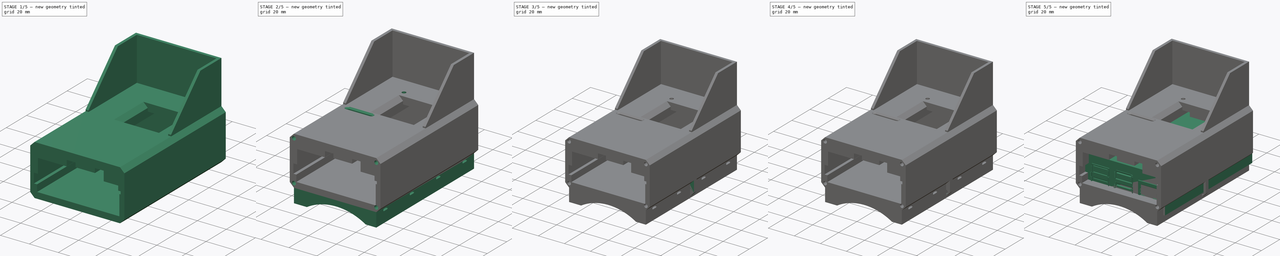
[diagram: build sequence overview — one tinted view per stage of 5, left to right]
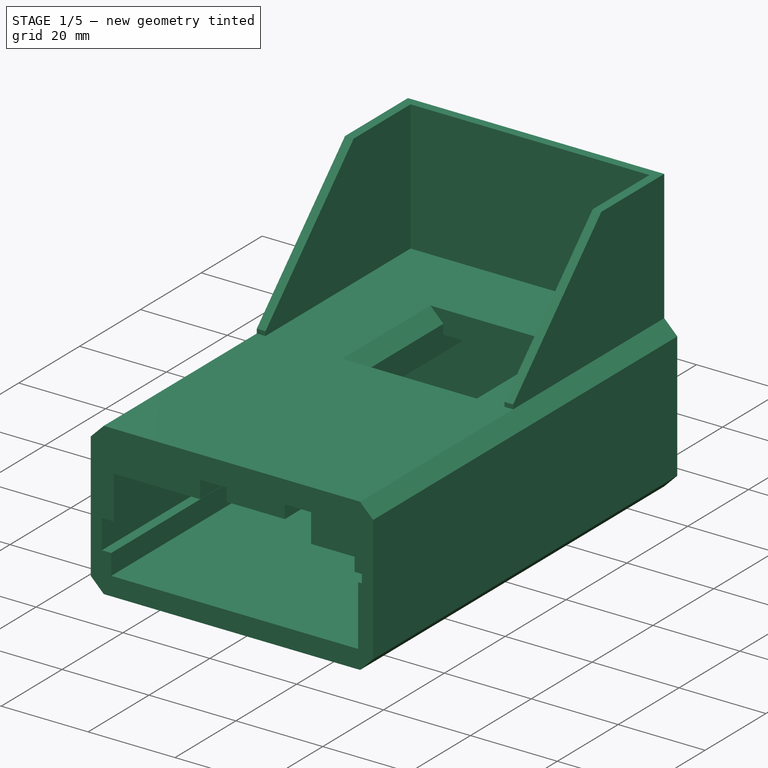
[diagram: stage 1 of 5 — iso view after this stage's code; geometry added in this stage tinted green]
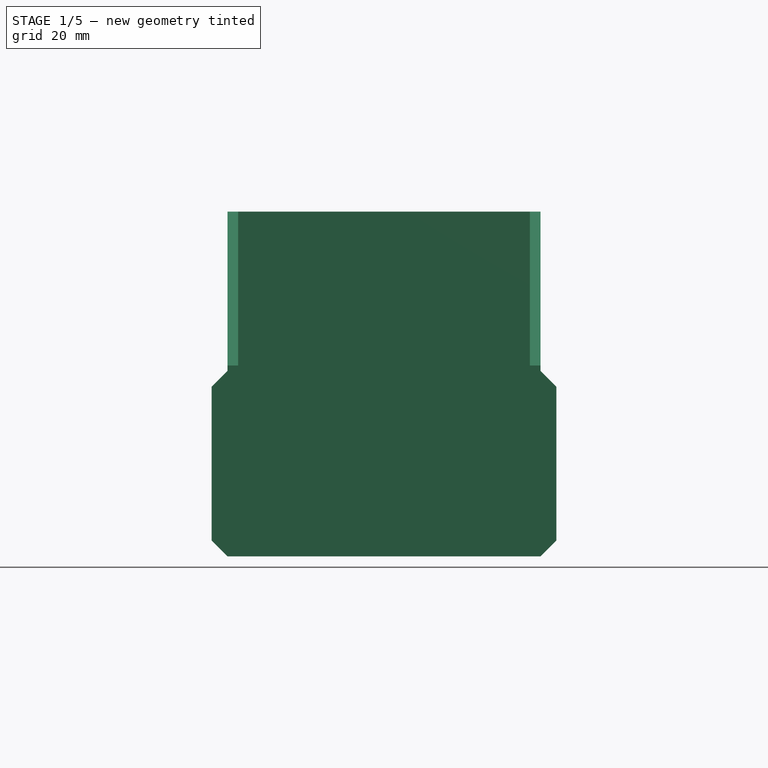
[diagram: stage 1 of 5 — front view after this stage's code; geometry added in this stage tinted green]
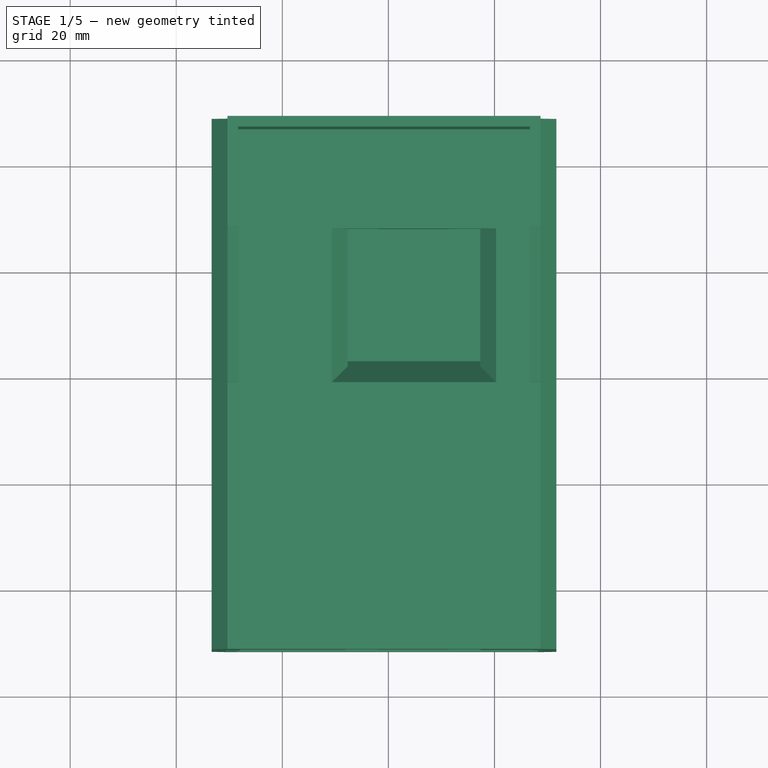
[diagram: stage 1 of 5 — top view after this stage's code; geometry added in this stage tinted green]
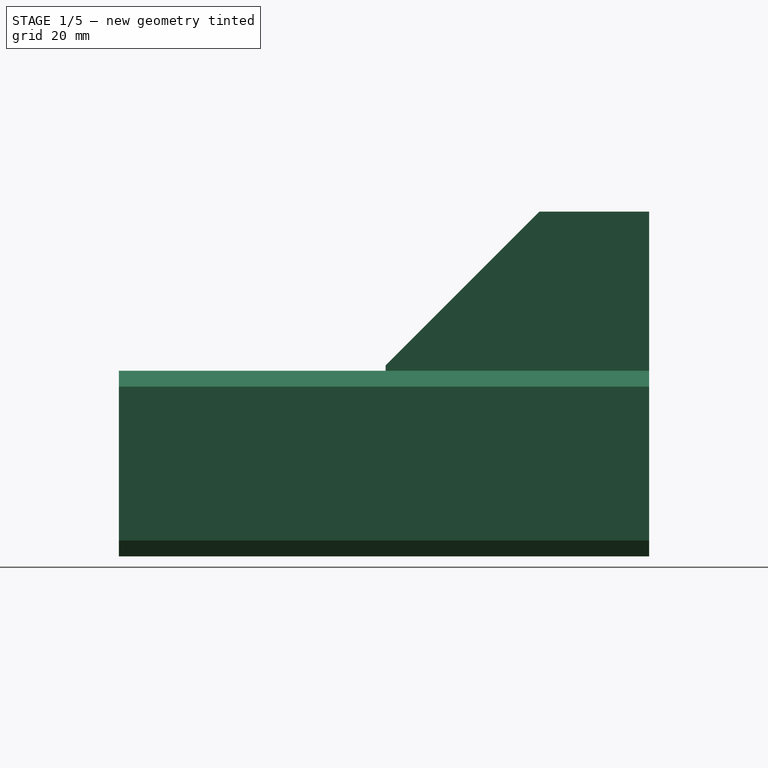
[diagram: stage 1 of 5 — right view after this stage's code; geometry added in this stage tinted green]
FCSTD DOCUMENT  (FreeCAD 0.18R16146 (Git))
Label: rpi4_hat
License: All rights reserved
LicenseURL: http://en.wikipedia.org/wiki/All_rights_reserved
objects: Sketcher::SketchObject×31, Part::Feature×20, PartDesign::Body×12, PartDesign::Chamfer×11, PartDesign::Revolution×10, PartDesign::Pocket×9, PartDesign::Pad×6, Part::Extrusion×5, PartDesign::Fillet×4, Part::Box×2, Part::MultiFuse×1, Part::Compound×1, PartDesign::LinearPattern×1
note: 138 computed .brp shape members not serialized (recipe doc carries the construction recipe); baked Part::Feature solids carry a one-line shape summary decoded from their .brp

FEATURE [Sketcher::SketchObject] Sketch043
  MapMode = 5
  Support = -> [XY_Plane012]
  sketch-geometry (6):
    g0: LineSegment StartX=-33.33 StartY=48.46 StartZ=0 EndX=31.67 EndY=48.46 EndZ=0
    g1: LineSegment StartX=31.67 StartY=48.46 StartZ=0 EndX=31.67 EndY=-51.54 EndZ=0
    g2: LineSegment StartX=31.67 StartY=-51.54 StartZ=0 EndX=-33.33 EndY=-51.54 EndZ=0
    g3: LineSegment StartX=-33.33 StartY=-51.54 StartZ=0 EndX=-33.33 EndY=48.46 EndZ=0
    g4: LineSegment [constr] StartX=0 StartY=0 StartZ=0 EndX=31.67 EndY=0 EndZ=0
    g5: LineSegment [constr] StartX=0 StartY=0 StartZ=0 EndX=0 EndY=48.46 EndZ=0
  constraints (18):
    c: Coincident(g0,g1)
    c: Coincident(g1,g2)
    c: Coincident(g2,g3)
    c: Coincident(g3,g0)
    c: Horizontal(g0)
    c: Horizontal(g2)
    c: Vertical(g1)
    c: Vertical(g3)
    c: DistanceY(g1,g1) = 100
    c: DistanceX(g0,g0) = 65
    c: Coincident(g4,g-1)
    c: PointOnObject(g4,g1)
    c: Horizontal(g4)
    c: DistanceX(g4,g4) = 31.67
    c: Coincident(g5,g-1)
    c: PointOnObject(g5,g0)
    c: Vertical(g5)
    c: DistanceY(g5,g5) = 48.46
FEATURE [PartDesign::Pad] Pad
  Length = 35
  Length2 = 100
  Profile = -> Sketch043
  Type = 0
FEATURE [Sketcher::SketchObject] Sketch042
  MapMode = 5
  Placement = pos=(0,-51.54,0) rot=(1,0,0;1.5708rad)
  Support = -> [Pad]
  sketch-geometry (22):
    g0: LineSegment StartX=0 StartY=4.25 StartZ=0 EndX=-28.6 EndY=4.25 EndZ=0
    g1: LineSegment StartX=-28.6 StartY=4.25 StartZ=0 EndX=-28.6 EndY=9.01 EndZ=0
    g2: LineSegment StartX=-28.6 StartY=9.01 StartZ=0 EndX=-30.75 EndY=9.01 EndZ=0
    g3: LineSegment StartX=-30.75 StartY=9.01 StartZ=0 EndX=-30.75 EndY=15.73 EndZ=0
    g4: LineSegment StartX=-30.75 StartY=15.73 StartZ=0 EndX=-28.01 EndY=15.73 EndZ=0
    g5: LineSegment StartX=-28.01 StartY=15.73 StartZ=0 EndX=-28.01 EndY=25.67 EndZ=0
    g6: LineSegment StartX=-28.01 StartY=25.67 StartZ=0 EndX=-8.15 EndY=25.67 EndZ=0
    g7: LineSegment StartX=-8.15 StartY=25.67 StartZ=0 EndX=-8.15 EndY=29.73 EndZ=0
    g8: LineSegment StartX=-8.15 StartY=29.73 StartZ=0 EndX=-2.01 EndY=29.73 EndZ=0
    g9: LineSegment StartX=-2.01 StartY=29.73 StartZ=0 EndX=-2.01 EndY=26.75 EndZ=0
    g10: LineSegment StartX=-2.01 StartY=26.75 StartZ=0 EndX=11.35 EndY=26.75 EndZ=0
    g11: LineSegment StartX=11.35 StartY=26.75 StartZ=0 EndX=11.35 EndY=29.82 EndZ=0
    g12: LineSegment StartX=11.35 StartY=29.82 StartZ=0 EndX=17.4 EndY=29.82 EndZ=0
    g13: LineSegment StartX=17.4 StartY=29.82 StartZ=0 EndX=17.4 EndY=23.21 EndZ=0
    g14: LineSegment StartX=17.4 StartY=23.21 StartZ=0 EndX=27.42 EndY=23.21 EndZ=0
    g15: LineSegment StartX=27.42 StartY=23.21 StartZ=0 EndX=27.42 EndY=20.07 EndZ=0
    g16: LineSegment StartX=27.42 StartY=20.07 StartZ=0 EndX=29.09 EndY=20.07 EndZ=0
    g17: LineSegment StartX=29.09 StartY=20.07 StartZ=0 EndX=29.09 EndY=18.12 EndZ=0
    g18: LineSegment StartX=29.09 StartY=18.12 StartZ=0 EndX=28.23 EndY=18.12 EndZ=0
    g19: LineSegment StartX=0 StartY=4.25 StartZ=0 EndX=28.23 EndY=4.25 EndZ=0
    g20: LineSegment StartX=28.23 StartY=18.12 StartZ=0 EndX=28.23 EndY=4.25 EndZ=0
    g21: LineSegment [constr] StartX=0 StartY=0 StartZ=0 EndX=0 EndY=4.25 EndZ=0
  constraints (65):
    c: Horizontal(g0)
    c: Coincident(g0,g1)
    c: Vertical(g1)
    c: Coincident(g1,g2)
    c: Horizontal(g2)
    c: Coincident(g2,g3)
    c: Vertical(g3)
    c: Coincident(g3,g4)
    c: Horizontal(g4)
    c: Coincident(g4,g5)
    c: Vertical(g5)
    c: Coincident(g5,g6)
    c: Horizontal(g6)
    c: Coincident(g6,g7)
    c: Vertical(g7)
    c: Coincident(g7,g8)
    c: Horizontal(g8)
    c: Coincident(g8,g9)
    c: Vertical(g9)
    c: Coincident(g9,g10)
    c: Horizontal(g10)
    c: Coincident(g10,g11)
    c: Vertical(g11)
    c: Coincident(g11,g12)
    c: Horizontal(g12)
    c: Coincident(g12,g13)
    c: Vertical(g13)
    c: Coincident(g13,g14)
    c: Horizontal(g14)
    c: Coincident(g14,g15)
    c: Vertical(g15)
    c: Coincident(g15,g16)
    c: Horizontal(g16)
    c: Coincident(g16,g17)
    c: Vertical(g17)
    c: Coincident(g17,g18)
    c: Horizontal(g18)
    c: Coincident(g19,g0)
    c: Horizontal(g19)
    c: DistanceX(g0,g0) = 28.6
    c: DistanceY(g1,g1) = 4.76
    c: DistanceX(g2,g2) = 2.15
    c: DistanceY(g3,g3) = 6.72
    c: DistanceX(g4,g4) = 2.74
    c: DistanceY(g5,g5) = 9.94
    c: DistanceX(g6,g6) = 19.86
    c: DistanceY(g7,g7) = 4.06
    c: DistanceX(g8,g8) = 6.14
    c: DistanceY(g9,g9) = 2.98
    c: DistanceX(g10,g10) = 13.36
    c: DistanceY(g11,g11) = 3.07
    c: DistanceX(g12,g12) = 6.05
    c: DistanceY(g13,g13) = 6.61
    c: DistanceX(g14,g14) = 10.02
    c: DistanceY(g15,g15) = 3.14
    c: DistanceX(g16,g16) = 1.67
    c: DistanceY(g17,g17) = 1.95
    c: DistanceX(g18,g18) = 0.86
    c: Coincident(g20,g18)
    c: Coincident(g20,g19)
    c: Vertical(g20)
    c: Coincident(g21,g-1)
    c: Coincident(g21,g0)
    c: Vertical(g21)
    c: DistanceY(g21,g21) = 4.25
FEATURE [Sketcher::SketchObject] Sketch044
  MapMode = 5
  Placement = pos=(0,0,0) rot=(1,0,0;1.5708rad)
  Support = -> [XZ_Plane013]
  sketch-geometry (18):
    g0: LineSegment [constr] StartX=0 StartY=0 StartZ=0 EndX=0 EndY=-1 EndZ=0
    g1: LineSegment StartX=0 StartY=-1 StartZ=0 EndX=-27.85 EndY=-1 EndZ=0
    g2: LineSegment StartX=6.61 StartY=14.52 StartZ=0 EndX=27.58 EndY=14.52 EndZ=0
    g3: LineSegment StartX=0 StartY=-1 StartZ=0 EndX=27.58 EndY=-1 EndZ=0
    g4: LineSegment StartX=-33.33 StartY=26.33 StartZ=0 EndX=31.67 EndY=26.33 EndZ=0
    g5: LineSegment StartX=31.67 StartY=26.33 StartZ=0 EndX=31.67 EndY=-8.67 EndZ=0
    g6: LineSegment StartX=31.67 StartY=-8.67 StartZ=0 EndX=-33.33 EndY=-8.67 EndZ=0
    g7: LineSegment StartX=-33.33 StartY=-8.67 StartZ=0 EndX=-33.33 EndY=26.33 EndZ=0
    g8: LineSegment [constr] StartX=0 StartY=0 StartZ=0 EndX=31.67 EndY=0 EndZ=0
    g9: LineSegment StartX=27.58 StartY=14.52 StartZ=0 EndX=27.58 EndY=-1 EndZ=0
    g10: LineSegment [constr] StartX=0 StartY=0 StartZ=0 EndX=0 EndY=-8.67 EndZ=0
    g11: LineSegment StartX=6.61 StartY=17.05 StartZ=0 EndX=6.61 EndY=14.52 EndZ=0
    g12: LineSegment StartX=-27.85 StartY=17.05 StartZ=0 EndX=6.61 EndY=17.05 EndZ=0
    g13: LineSegment StartX=-27.85 StartY=17.05 StartZ=0 EndX=-27.85 EndY=10.21 EndZ=0
    g14: LineSegment StartX=-27.85 StartY=-1 StartZ=0 EndX=-27.85 EndY=7.89 EndZ=0
    g15: LineSegment StartX=-27.85 StartY=10.21 StartZ=0 EndX=-21.74 EndY=10.21 EndZ=0
    g16: LineSegment StartX=-21.74 StartY=10.21 StartZ=0 EndX=-21.74 EndY=7.89 EndZ=0
    g17: LineSegment StartX=-21.74 StartY=7.89 StartZ=0 EndX=-27.85 EndY=7.89 EndZ=0
  constraints (53):
    c: Coincident(g0,g-1)
    c: Vertical(g0)
    c: Horizontal(g1)
    c: Horizontal(g2)
    c: Coincident(g3,g1)
    c: Horizontal(g3)
    c: Coincident(g0,g1)
    c: Coincident(g4,g5)
    c: Coincident(g5,g6)
    c: Coincident(g6,g7)
    c: Coincident(g7,g4)
    c: Horizontal(g4)
    c: Horizontal(g6)
    c: Vertical(g5)
    c: Vertical(g7)
    c: DistanceX(g6,g6) = 65
    c: DistanceY(g5,g5) = 35
    c: Coincident(g8,g-1)
    c: PointOnObject(g8,g5)
    c: Horizontal(g8)
    c: DistanceX(g8,g8) = 31.67
    c: Distance(g0) = 1
    c: Coincident(g9,g2)
    c: Coincident(g9,g3)
    c: Vertical(g9)
    c: Coincident(g10,g-1)
    c: PointOnObject(g10,g6)
    c: Vertical(g10)
    c: Distance(g10) = 8.67
    c: Coincident(g11,g2)
    c: Vertical(g11)
    c: Coincident(g12,g11)
    c: Horizontal(g12)
    c: Distance(g12) = 34.46
    c: Distance(g2) = 20.97
    c: Distance(g11) = 2.53
    c: Distance(g1) = 27.85
    c: Coincident(g13,g12)
    c: Vertical(g13)
    c: Coincident(g14,g1)
    c: Vertical(g14)
    c: Distance(g13) = 6.84
    c: Distance(g14) = 8.89
    c: Coincident(g15,g13)
    c: Horizontal(g15)
    c: Coincident(g16,g15)
    c: Vertical(g16)
    c: Coincident(g17,g16)
    c: Coincident(g17,g14)
    c: Horizontal(g17)
    c: Distance(g16) = 2.32
    c: Distance(g15) = 6.11
    c: Equal(g17,g15)
FEATURE [PartDesign::Pocket] Pocket
  BaseFeature = -> Pad
  Length = 96
  Length2 = 100
  Profile = -> Sketch042
  Type = 0
FEATURE [PartDesign::Chamfer] Chamfer
  Base = -> Pocket [Edge7,Edge6,Edge10,Edge9]
  BaseFeature = -> Pocket
  Size = 3
FEATURE [Sketcher::SketchObject] Sketch045
  ExternalGeometry = -> [Chamfer]
  MapMode = 5
  Placement = pos=(0,0,35) rot=(0,0,1;0rad)
  Support = -> [Chamfer]
  sketch-geometry (6):
    g0: LineSegment StartX=-7.68 StartY=27.77 StartZ=0 EndX=17.32 EndY=27.77 EndZ=0
    g1: LineSegment StartX=17.32 StartY=27.77 StartZ=0 EndX=17.32 EndY=2.77 EndZ=0
    g2: LineSegment StartX=17.32 StartY=2.77 StartZ=0 EndX=-7.68 EndY=2.77 EndZ=0
    g3: LineSegment StartX=-7.68 StartY=2.77 StartZ=0 EndX=-7.68 EndY=27.77 EndZ=0
    g4: LineSegment [constr] StartX=17.32 StartY=18.5871 StartZ=0 EndX=28.67 EndY=18.5871 EndZ=0
    g5: LineSegment [constr] StartX=5.5583 StartY=27.77 StartZ=0 EndX=5.5583 EndY=48.46 EndZ=0
  constraints (18):
    c: Coincident(g0,g1)
    c: Coincident(g1,g2)
    c: Coincident(g2,g3)
    c: Coincident(g3,g0)
    c: Horizontal(g0)
    c: Horizontal(g2)
    c: Vertical(g1)
    c: Vertical(g3)
    c: DistanceY(g1,g1) = 25
    c: DistanceX(g0,g0) = 25
    c: PointOnObject(g4,g1)
    c: PointOnObject(g4,g-4)
    c: Horizontal(g4)
    c: PointOnObject(g5,g0)
    c: PointOnObject(g5,g-3)
    c: Vertical(g5)
    c: DistanceY(g5,g5) = 20.69
    c: Distance(g4) = 11.35
FEATURE [PartDesign::Pocket] Pocket001
  BaseFeature = -> Chamfer
  Length = 10
  Length2 = 100
  Profile = -> Sketch045
  Type = 0
FEATURE [PartDesign::Chamfer] Chamfer001
  Base = -> Pocket001 [Edge22]
  BaseFeature = -> Pocket001
  Size = 4
FEATURE [PartDesign::Chamfer] Chamfer002
  Base = -> Chamfer001 [Edge6]
  BaseFeature = -> Chamfer001
  Size = 3
FEATURE [PartDesign::Chamfer] Chamfer003
  Base = -> Chamfer002 [Edge6]
  BaseFeature = -> Chamfer002
  Size = 3
FEATURE [Sketcher::SketchObject] Sketch046
  ExternalGeometry = -> [Chamfer003]
  MapMode = 5
  Placement = pos=(0,0,35) rot=(0,0,1;0rad)
  Support = -> [Chamfer003]
  sketch-geometry (11):
    g0: LineSegment StartX=-30.33 StartY=48.46 StartZ=0 EndX=28.67 EndY=48.46 EndZ=0
    g1: LineSegment [constr] StartX=17.32 StartY=-1.23 StartZ=0 EndX=28.67 EndY=-1.23 EndZ=0
    g2: LineSegment [constr] StartX=-7.68 StartY=-1.23 StartZ=0 EndX=-30.33 EndY=-1.23 EndZ=0
    g3: LineSegment StartX=-30.33 StartY=48.46 StartZ=0 EndX=-30.33 EndY=-1.23 EndZ=0
    g4: LineSegment StartX=28.67 StartY=-1.23 StartZ=0 EndX=28.67 EndY=48.46 EndZ=0
    g5: LineSegment StartX=-30.33 StartY=-1.23 StartZ=0 EndX=-28.33 EndY=-1.23 EndZ=0
    g6: LineSegment StartX=-28.33 StartY=-1.23 StartZ=0 EndX=-28.33 EndY=46.46 EndZ=0
    g7: LineSegment StartX=-28.33 StartY=46.46 StartZ=0 EndX=26.67 EndY=46.46 EndZ=0
    g8: LineSegment StartX=26.67 StartY=46.46 StartZ=0 EndX=26.67 EndY=-1.23 EndZ=0
    g9: LineSegment StartX=26.67 StartY=-1.23 StartZ=0 EndX=28.67 EndY=-1.23 EndZ=0
    g10: LineSegment [constr] StartX=0 StartY=48.46 StartZ=0 EndX=0 EndY=46.46 EndZ=0
  constraints (30):
    c: Coincident(g0,g-4)
    c: Coincident(g0,g-5)
    c: Coincident(g1,g-6)
    c: PointOnObject(g1,g-5)
    c: Horizontal(g1)
    c: Coincident(g2,g-6)
    c: PointOnObject(g2,g-4)
    c: Horizontal(g2)
    c: Coincident(g3,g0)
    c: Coincident(g3,g2)
    c: Coincident(g4,g1)
    c: Coincident(g4,g0)
    c: Coincident(g5,g3)
    c: PointOnObject(g5,g2)
    c: Coincident(g6,g5)
    c: Vertical(g6)
    c: Coincident(g7,g6)
    c: Horizontal(g7)
    c: Coincident(g8,g7)
    c: PointOnObject(g8,g1)
    c: Vertical(g8)
    c: Coincident(g9,g8)
    c: Coincident(g9,g4)
    c: Distance(g5) = 2
    c: Equal(g5,g9)
    c: PointOnObject(g10,g0)
    c: PointOnObject(g10,g7)
    c: Vertical(g10)
    c: Distance(g10) = 2
    c: PointOnObject(g10,g-2)
FEATURE [PartDesign::Pad] Pad001
  BaseFeature = -> Chamfer003
  Length = 30
  Length2 = 100
  Profile = -> Sketch046
  Type = 0
FEATURE [PartDesign::Chamfer] Chamfer004
  Base = -> Pad001 [Edge63,Edge55]
  BaseFeature = -> Pad001
  Size = 29
FEATURE [PartDesign::Chamfer] Chamfer005
  Base = -> Chamfer004 [Edge129]
  BaseFeature = -> Chamfer004
  Size = 3
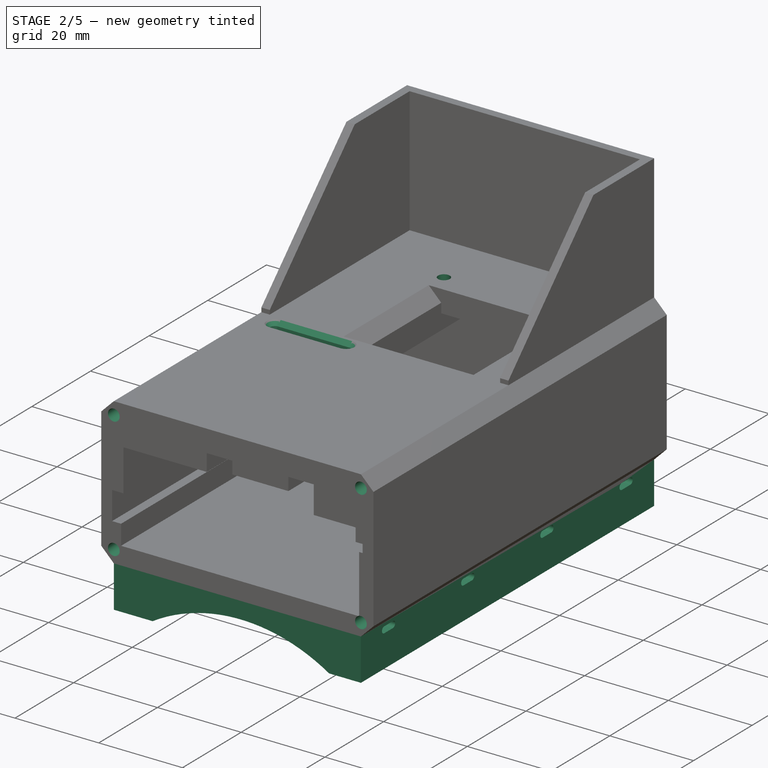
[diagram: stage 2 of 5 — iso view after this stage's code; geometry added in this stage tinted green]
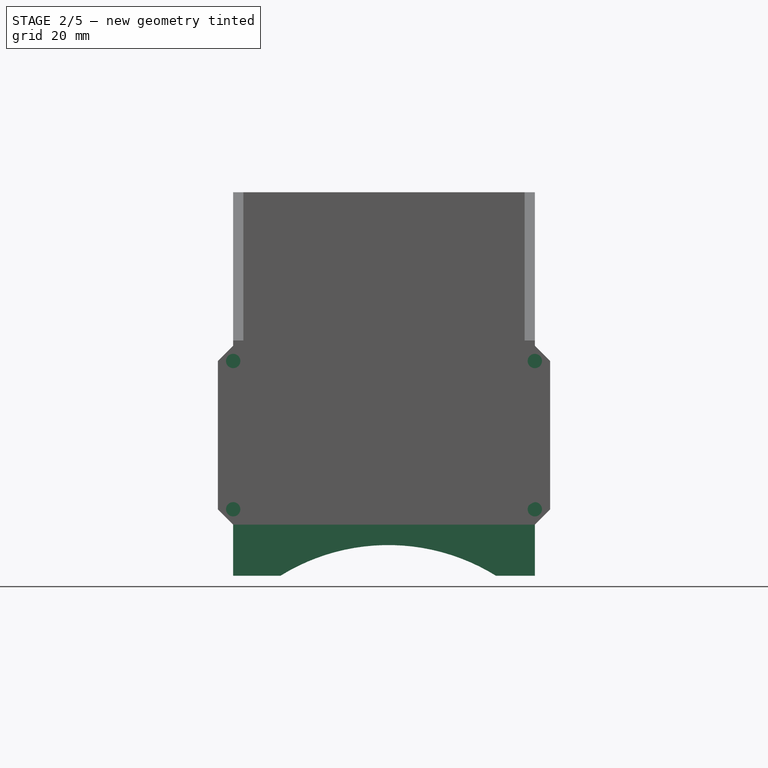
[diagram: stage 2 of 5 — front view after this stage's code; geometry added in this stage tinted green]
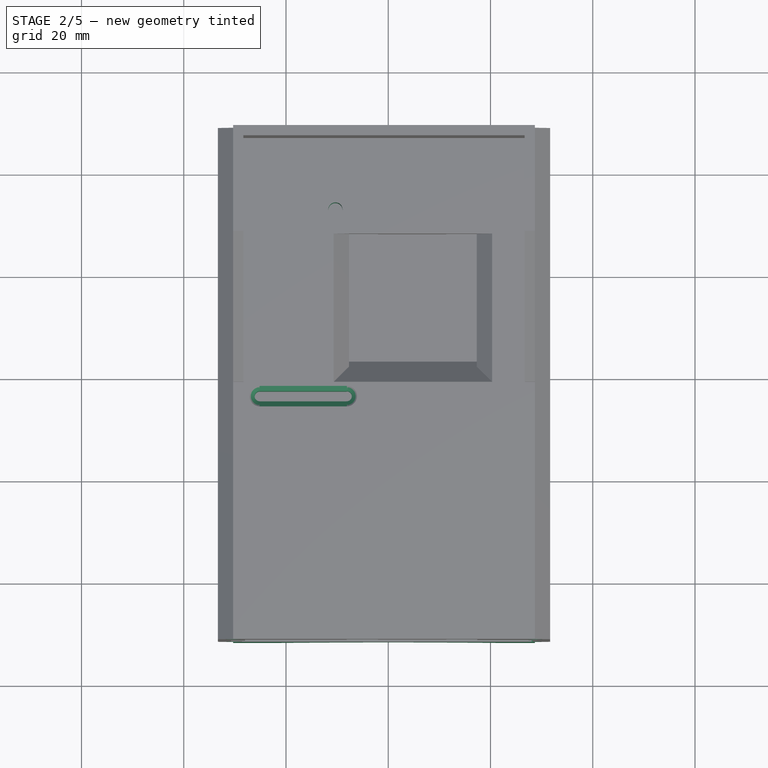
[diagram: stage 2 of 5 — top view after this stage's code; geometry added in this stage tinted green]
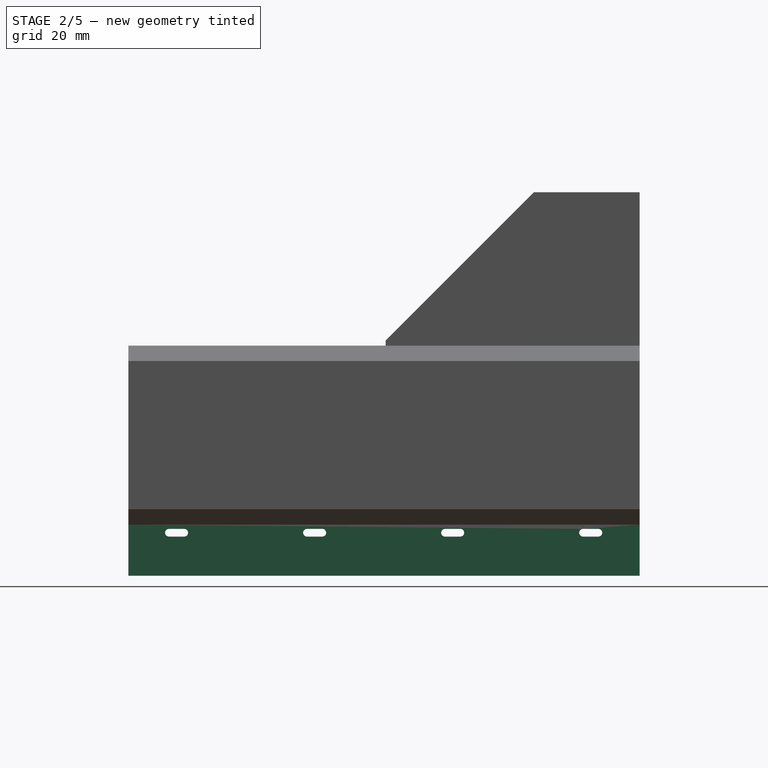
[diagram: stage 2 of 5 — right view after this stage's code; geometry added in this stage tinted green]
FEATURE [Sketcher::SketchObject] Sketch047
  ExternalGeometry = -> [Chamfer005]
  MapMode = 5
  Placement = pos=(0,-51.54,0) rot=(1,0,0;1.5708rad)
  Support = -> [Chamfer005]
  sketch-geometry (13):
    g0: Circle CenterX=-30.33 CenterY=32 CenterZ=0 NormalX=0 NormalY=0 NormalZ=1 AngleXU=0 Radius=1.4
    g1: LineSegment [constr] StartX=-33.33 StartY=32 StartZ=0 EndX=-30.33 EndY=32 EndZ=0
    g2: Circle CenterX=-30.33 CenterY=3 CenterZ=0 NormalX=0 NormalY=0 NormalZ=1 AngleXU=0 Radius=1.4
    g3: LineSegment [constr] StartX=-30.33 StartY=32 StartZ=0 EndX=-30.33 EndY=3 EndZ=0
    g4: LineSegment [constr] StartX=-30.33 StartY=3 StartZ=0 EndX=-33.33 EndY=3 EndZ=0
    g5: LineSegment [constr] StartX=-30.33 StartY=3 StartZ=0 EndX=-30.33 EndY=0 EndZ=0
    g6: Circle CenterX=28.67 CenterY=32 CenterZ=0 NormalX=0 NormalY=0 NormalZ=1 AngleXU=0 Radius=1.4
    g7: LineSegment [constr] StartX=28.67 StartY=32 StartZ=0 EndX=28.67 EndY=3 EndZ=0
    g8: Circle CenterX=28.67 CenterY=3 CenterZ=0 NormalX=0 NormalY=0 NormalZ=1 AngleXU=0 Radius=1.4
    g9: LineSegment [constr] StartX=28.67 StartY=0 StartZ=0 EndX=28.67 EndY=3 EndZ=0
    g10: LineSegment [constr] StartX=28.67 StartY=32 StartZ=0 EndX=28.67 EndY=35 EndZ=0
    g11: LineSegment [constr] StartX=28.67 StartY=32 StartZ=0 EndX=31.67 EndY=32 EndZ=0
    g12: LineSegment [constr] StartX=28.67 StartY=3 StartZ=0 EndX=31.67 EndY=3 EndZ=0
  constraints (30):
    c: Radius(g0) = 1.4
    c: Coincident(g1,g0)
    c: Horizontal(g1)
    c: Equal(g0,g2) = 1.4
    c: Coincident(g3,g0)
    c: Coincident(g3,g2)
    c: Vertical(g3)
    c: Coincident(g4,g2)
    c: Horizontal(g4)
    c: Coincident(g4,g-3)
    c: Coincident(g1,g-3)
    c: Coincident(g5,g2)
    c: Coincident(g5,g-4)
    c: Vertical(g5)
    c: Equal(g0,g6) = 1.4
    c: Equal(g6,g8) = 1.4
    c: Coincident(g7,g6)
    c: Coincident(g7,g8)
    c: Vertical(g7)
    c: Coincident(g9,g-4)
    c: Coincident(g9,g8)
    c: Vertical(g9)
    c: Coincident(g10,g6)
    c: Coincident(g10,g-5)
    c: Coincident(g11,g6)
    c: Coincident(g11,g-6)
    c: Coincident(g12,g8)
    c: Coincident(g12,g-6)
    c: Horizontal(g12)
    c: Horizontal(g11)
FEATURE [PartDesign::Pocket] Pocket002
  BaseFeature = -> Chamfer005
  Length = 5
  Length2 = 100
  Profile = -> Sketch047
  Type = 0
FEATURE [Sketcher::SketchObject] Sketch048
  ExternalGeometry = -> [Pocket002]
  MapMode = 5
  Placement = pos=(0,0,0) rot=(1,0,0;3.14159rad)
  Support = -> [Pocket002]
  sketch-geometry (4):
    g0: LineSegment StartX=-30.33 StartY=51.54 StartZ=0 EndX=-30.33 EndY=-48.46 EndZ=0
    g1: LineSegment StartX=28.67 StartY=51.54 StartZ=0 EndX=-30.33 EndY=51.54 EndZ=0
    g2: LineSegment StartX=-30.33 StartY=-48.46 StartZ=0 EndX=28.67 EndY=-48.46 EndZ=0
    g3: LineSegment StartX=28.67 StartY=-48.46 StartZ=0 EndX=28.67 EndY=51.54 EndZ=0
  constraints (8):
    c: Coincident(g0,g-4)
    c: Coincident(g0,g-6)
    c: Coincident(g1,g-5)
    c: Coincident(g1,g0)
    c: Coincident(g2,g0)
    c: Coincident(g2,g-6)
    c: Coincident(g3,g2)
    c: Coincident(g3,g1)
FEATURE [PartDesign::Pad] Pad002
  BaseFeature = -> Pocket002
  Length = 10
  Length2 = 100
  Profile = -> Sketch048
  Type = 0
FEATURE [Sketcher::SketchObject] Sketch049
  MapMode = 5
  Placement = pos=(0,-51.54,0) rot=(1,0,0;1.5708rad)
  Support = -> [Pad002]
  sketch-geometry (2):
    g0: Circle CenterX=0 CenterY=-44 CenterZ=0 NormalX=0 NormalY=0 NormalZ=1 AngleXU=0 Radius=40
    g1: LineSegment [constr] StartX=0 StartY=0 StartZ=0 EndX=0 EndY=-44 EndZ=0
  constraints (5):
    c: PointOnObject(g0,g-2)
    c: Radius(g0) = 40
    c: Coincident(g1,g-1)
    c: Coincident(g1,g0)
    c: Distance(g1) = 44
FEATURE [PartDesign::Pocket] Pocket003
  BaseFeature = -> Pad002
  Length = 100
  Length2 = 100
  Profile = -> Sketch049
  Type = 0
FEATURE [Sketcher::SketchObject] Sketch050
  MapMode = 5
  Placement = pos=(-30.33,0,0) rot=(0.57735,-0.57735,-0.57735;2.0944rad)
  Support = -> [Pocket003]
  sketch-geometry (5):
    g0: ArcOfCircle CenterX=-40.3899 CenterY=-1.59327 CenterZ=0 NormalX=0 NormalY=0 NormalZ=1 AngleXU=0 Radius=0.75 StartAngle=1.5708 EndAngle=4.71239
    g1: ArcOfCircle CenterX=-37.3899 CenterY=-1.59327 CenterZ=0 NormalX=0 NormalY=0 NormalZ=1 AngleXU=0 Radius=0.75 StartAngle=4.71239 EndAngle=7.85398
    g2: LineSegment StartX=-40.3899 StartY=-2.34327 StartZ=0 EndX=-37.3899 EndY=-2.34327 EndZ=0
    g3: LineSegment StartX=-40.3899 StartY=-0.843272 StartZ=0 EndX=-37.3899 EndY=-0.843272 EndZ=0
    g4: LineSegment [constr] StartX=-40.3899 StartY=-0.843272 StartZ=0 EndX=-40.3899 EndY=-2.34327 EndZ=0
  constraints (10):
    c: Tangent(g0,g3) = 1.5708
    c: Tangent(g0,g2) = -1.5708
    c: Tangent(g2,g1) = -1.5708
    c: Tangent(g3,g1) = 1.5708
    c: Horizontal(g2)
    c: Equal(g0,g1)
    c: Coincident(g4,g0)
    c: Coincident(g4,g0)
    c: Distance(g4) = 1.5
    c: Distance(g3) = 3
FEATURE [PartDesign::Pocket] Pocket004  label="zip hole"
  BaseFeature = -> Pocket003
  Length = 500
  Length2 = 100
  Profile = -> Sketch050
  Type = 0
FEATURE [PartDesign::LinearPattern] LinearPattern
  BaseFeature = -> Pocket004
  Direction = -> Sketch050 [H_Axis]
  Length = 81
  Occurrences = 4
  Originals = -> [Pocket004]
FEATURE [Sketcher::SketchObject] Sketch051
  ExternalGeometry = -> [LinearPattern]
  MapMode = 5
  Placement = pos=(0,0,35) rot=(0,0,1;0rad)
  Support = -> [LinearPattern]
  sketch-geometry (3):
    g0: Circle CenterX=-10.33 CenterY=32.46 CenterZ=0 NormalX=0 NormalY=0 NormalZ=1 AngleXU=0 Radius=1.4
    g1: LineSegment [constr] StartX=-10.33 StartY=32.46 StartZ=0 EndX=-10.33 EndY=46.46 EndZ=0
    g2: LineSegment [constr] StartX=-10.33 StartY=32.46 StartZ=0 EndX=-28.33 EndY=32.46 EndZ=0
  constraints (9):
    c: Coincident(g1,g0)
    c: PointOnObject(g1,g-3)
    c: Vertical(g1)
    c: Coincident(g2,g0)
    c: PointOnObject(g2,g-4)
    c: Horizontal(g2)
    c: Distance(g2) = 18
    c: Distance(g1) = 14
    c: Radius(g0) = 1.4
FEATURE [PartDesign::Pocket] Pocket005
  BaseFeature = -> LinearPattern
  Length = 10
  Length2 = 100
  Profile = -> Sketch051
  Type = 0
FEATURE [Sketcher::SketchObject] Sketch052
  ExternalGeometry = -> [Pocket005]
  MapMode = 5
  Placement = pos=(0,0,35) rot=(0,0,1;0rad)
  Support = -> [Pocket005]
  sketch-geometry (7):
    g0: ArcOfCircle CenterX=-25.13 CenterY=-4.04 CenterZ=0 NormalX=0 NormalY=0 NormalZ=1 AngleXU=0 Radius=1 StartAngle=1.5708 EndAngle=4.71239
    g1: ArcOfCircle CenterX=-8.13 CenterY=-4.04 CenterZ=0 NormalX=0 NormalY=0 NormalZ=1 AngleXU=0 Radius=1 StartAngle=4.71239 EndAngle=7.85398
    g2: LineSegment StartX=-25.13 StartY=-5.04 StartZ=0 EndX=-8.13 EndY=-5.04 EndZ=0
    g3: LineSegment StartX=-25.13 StartY=-3.04 StartZ=0 EndX=-8.13 EndY=-3.04 EndZ=0
    g4: LineSegment [constr] StartX=-25.13 StartY=-3.04 StartZ=0 EndX=-25.13 EndY=-5.04 EndZ=0
    g5: LineSegment [constr] StartX=-25.13 StartY=-4.04 StartZ=0 EndX=-25.13 EndY=46.46 EndZ=0
    g6: LineSegment [constr] StartX=-28.33 StartY=-4.04 StartZ=0 EndX=-25.13 EndY=-4.04 EndZ=0
  constraints (18):
    c: Tangent(g0,g3) = 1.5708
    c: Tangent(g0,g2) = -1.5708
    c: Tangent(g2,g1) = -1.5708
    c: Tangent(g3,g1) = 1.5708
    c: Horizontal(g2)
    c: Equal(g0,g1)
    c: DistanceX(g3,g3) = 17
    c: Coincident(g4,g0)
    c: Coincident(g4,g0)
    c: Distance(g4) = 2
    c: Coincident(g5,g0)
    c: PointOnObject(g5,g-3)
    c: Vertical(g5)
    c: Distance(g5) = 50.5
    c: PointOnObject(g6,g-4)
    c: Horizontal(g6)
    c: Distance(g6) = 3.2
    c: Coincident(g6,g0)
FEATURE [PartDesign::Pocket] Pocket006
  BaseFeature = -> Pocket005
  Length = 11
  Length2 = 100
  Profile = -> Sketch052
  Type = 0
FEATURE [PartDesign::Chamfer] Chamfer006
  Base = -> Pocket006 [Edge125]
  BaseFeature = -> Pocket006
  Size = 1
FEATURE [PartDesign::Chamfer] Chamfer007
  Base = -> Chamfer006 [Edge117]
  BaseFeature = -> Chamfer006
  Size = 1
FEATURE [PartDesign::Chamfer] Chamfer008
  Base = -> Chamfer007 [Edge33]
  BaseFeature = -> Chamfer007
  Size = 2
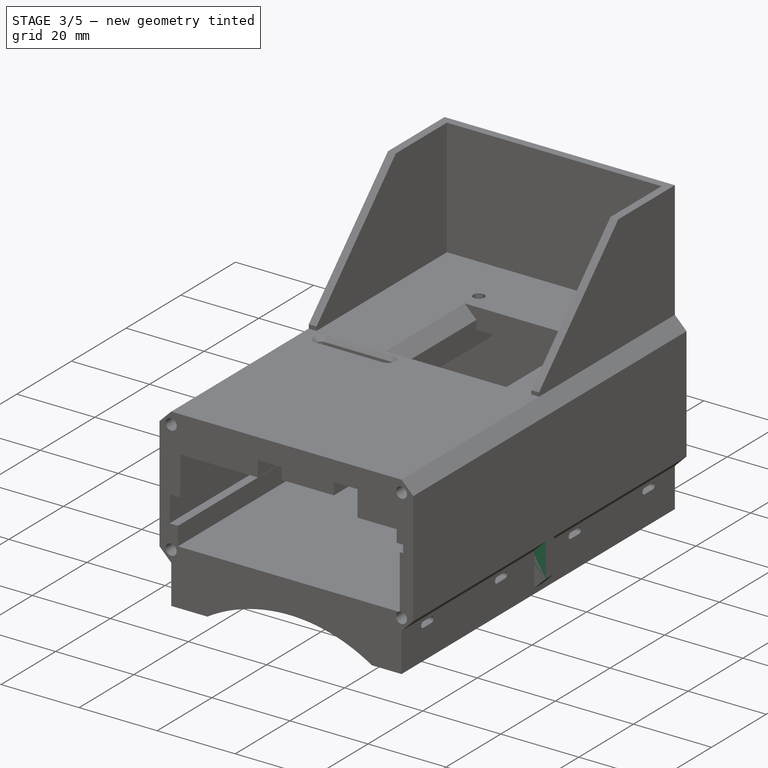
[diagram: stage 3 of 5 — iso view after this stage's code; geometry added in this stage tinted green]
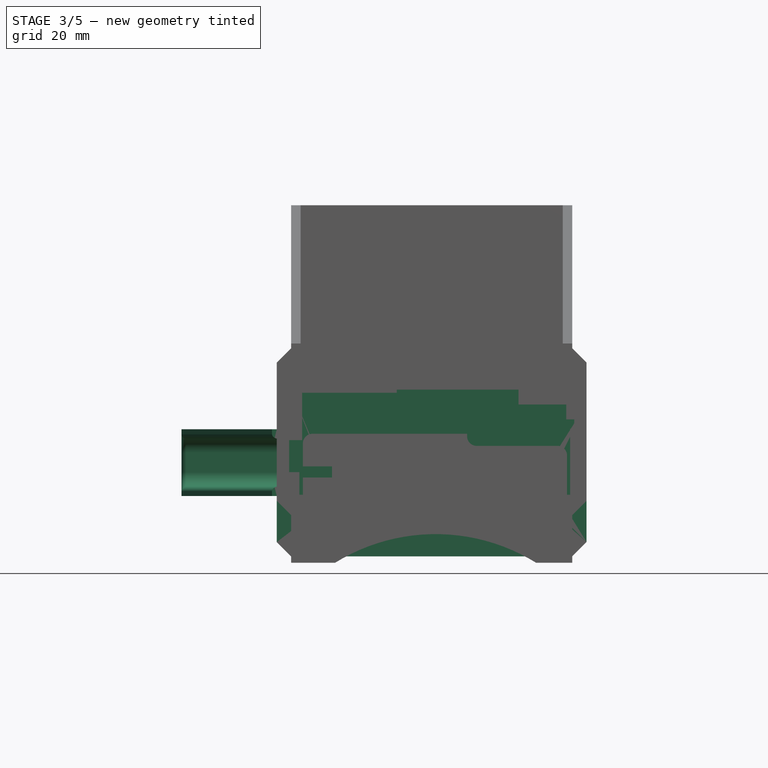
[diagram: stage 3 of 5 — front view after this stage's code; geometry added in this stage tinted green]
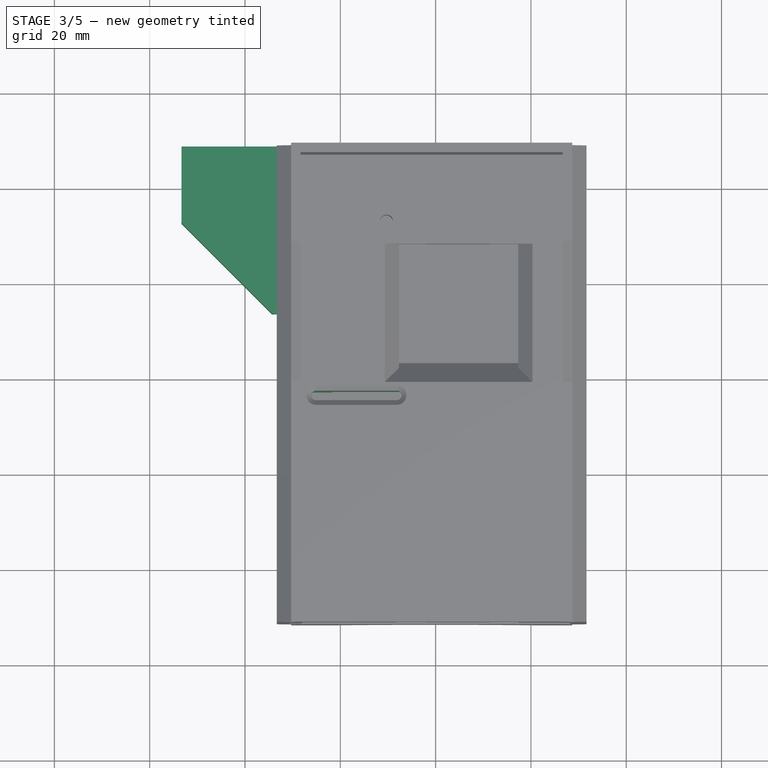
[diagram: stage 3 of 5 — top view after this stage's code; geometry added in this stage tinted green]
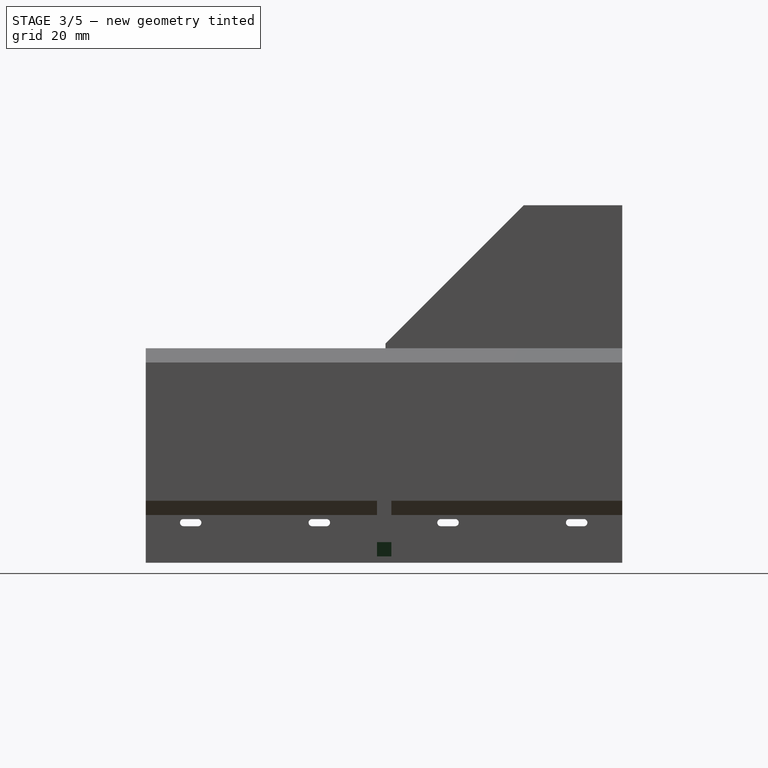
[diagram: stage 3 of 5 — right view after this stage's code; geometry added in this stage tinted green]
FEATURE [PartDesign::Pad] Pad003
  Length = 3
  Length2 = 100
  Placement = pos=(0,0,0) rot=(1,0,0;1.5708rad)
  Profile = -> Sketch044
  Type = 0
FEATURE [PartDesign::Chamfer] Chamfer009
  Base = -> Pad003 [Edge2,Edge5,Edge1,Edge8]
  BaseFeature = -> Pad003
  Placement = pos=(0,0,0) rot=(1,0,0;1.5708rad)
  Size = 3
FEATURE [Sketcher::SketchObject] Sketch054
  ExternalGeometry = -> [Chamfer009]
  MapMode = 5
  Placement = pos=(0,0,0) rot=(-1,0,0;1.5708rad)
  Support = -> [Chamfer009]
  sketch-geometry (4):
    g0: LineSegment StartX=-21.74 StartY=-7.89 StartZ=0 EndX=-21.74 EndY=-10.21 EndZ=0
    g1: LineSegment StartX=-21.74 StartY=-10.21 StartZ=0 EndX=-24.06 EndY=-10.21 EndZ=0
    g2: LineSegment StartX=-24.06 StartY=-10.21 StartZ=0 EndX=-24.06 EndY=-7.89 EndZ=0
    g3: LineSegment StartX=-24.06 StartY=-7.89 StartZ=0 EndX=-21.74 EndY=-7.89 EndZ=0
  constraints (10):
    c: Coincident(g0,g-3)
    c: Coincident(g0,g-3)
    c: Coincident(g1,g0)
    c: Horizontal(g1)
    c: Coincident(g2,g1)
    c: Vertical(g2)
    c: Coincident(g3,g2)
    c: Coincident(g3,g0)
    c: Equal(g2,g3)
    c: Equal(g0,g1)
FEATURE [PartDesign::Pad] Pad004
  BaseFeature = -> Chamfer009
  Length = 6.2
  Length2 = 100
  Placement = pos=(0,0,0) rot=(1,0,0;1.5708rad)
  Profile = -> Sketch054
  Type = 0
FEATURE [PartDesign::Fillet] Fillet
  Base = -> Pad004 [Edge47,Edge49,Edge50,Edge53,Edge51,Edge20]
  BaseFeature = -> Pad004
  Placement = pos=(0,0,0) rot=(1,0,0;1.5708rad)
  Radius = 2
FEATURE [PartDesign::Body] Body013  label="case_bottom"
  Group = -> [Sketch044,Pad003,Chamfer009,Sketch054,Pad004,Fillet,Sketch055,Pocket007]
  Origin = -> Origin013
  Placement = pos=(0,-51.5,0) rot=(0,0,1;0rad)
  Tip = -> Pocket007
FEATURE [Sketcher::SketchObject] Sketch056
  MapMode = 5
  Placement = pos=(-33.33,0,0) rot=(0.57735,-0.57735,-0.57735;2.0944rad)
  Support = -> [Chamfer008]
  sketch-geometry (9):
    g0: ArcOfCircle CenterX=-38 CenterY=10.96 CenterZ=0 NormalX=0 NormalY=0 NormalZ=1 AngleXU=0 Radius=4 StartAngle=1.5708 EndAngle=4.71239
    g1: ArcOfCircle CenterX=-24 CenterY=10.96 CenterZ=0 NormalX=0 NormalY=0 NormalZ=1 AngleXU=0 Radius=4 StartAngle=4.71239 EndAngle=7.85398
    g2: LineSegment StartX=-38 StartY=6.96 StartZ=0 EndX=-24 EndY=6.96 EndZ=0
    g3: LineSegment StartX=-38 StartY=14.96 StartZ=0 EndX=-24 EndY=14.96 EndZ=0
    g4: LineSegment [constr] StartX=-38 StartY=14.96 StartZ=0 EndX=-38 EndY=6.96 EndZ=0
    g5: LineSegment [constr] StartX=-24 StartY=10.96 StartZ=0 EndX=0 EndY=10.96 EndZ=0
    g6: LineSegment [constr] StartX=-38 StartY=6.96 StartZ=0 EndX=-24 EndY=14.96 EndZ=0
    g7: LineSegment [constr] StartX=-24 StartY=6.96 StartZ=0 EndX=-38 EndY=14.96 EndZ=0
    g8: LineSegment [constr] StartX=-24 StartY=0 StartZ=0 EndX=-24 EndY=10.96 EndZ=0
  constraints (22):
    c: Tangent(g0,g3) = 1.5708
    c: Tangent(g0,g2) = -1.5708
    c: Tangent(g2,g1) = -1.5708
    c: Tangent(g3,g1) = 1.5708
    c: Horizontal(g2)
    c: Equal(g0,g1)
    c: Coincident(g4,g0)
    c: Coincident(g4,g0)
    c: DistanceY(g4,g4) = 8
    c: DistanceX(g3,g3) = 14
    c: Coincident(g5,g1)
    c: PointOnObject(g5,g-2)
    c: Horizontal(g5)
    c: DistanceX(g5,g5) = 24
    c: Coincident(g6,g0)
    c: Coincident(g6,g1)
    c: Coincident(g7,g1)
    c: Coincident(g7,g0)
    c: PointOnObject(g8,g-1)
    c: Coincident(g8,g1)
    c: Vertical(g8)
    c: Distance(g8) = 10.96
FEATURE [PartDesign::Pocket] Pocket008
  BaseFeature = -> Chamfer008
  Length = 5
  Length2 = 100
  Profile = -> Sketch056
  Type = 0
FEATURE [Sketcher::SketchObject] Sketch057
  ExternalGeometry = -> [Pocket008]
  MapMode = 5
  Placement = pos=(-33.33,0,0) rot=(0.57735,-0.57735,-0.57735;2.0944rad)
  Support = -> [Pocket008]
  sketch-geometry (11):
    g0: LineSegment StartX=-48.46 StartY=18 StartZ=0 EndX=-13.46 EndY=18 EndZ=0
    g1: LineSegment StartX=-13.46 StartY=18 StartZ=0 EndX=-13.46 EndY=16 EndZ=0
    g2: LineSegment StartX=-13.46 StartY=16 StartZ=0 EndX=-46.46 EndY=16 EndZ=0
    g3: LineSegment [constr] StartX=-46.46 StartY=16 StartZ=0 EndX=-48.46 EndY=16 EndZ=0
    g4: LineSegment [constr] StartX=-46.46 StartY=16 StartZ=0 EndX=-46.46 EndY=18 EndZ=0
    g5: LineSegment StartX=-48.46 StartY=4 StartZ=0 EndX=-13.46 EndY=4 EndZ=0
    g6: LineSegment StartX=-13.46 StartY=4 StartZ=0 EndX=-13.46 EndY=6 EndZ=0
    g7: LineSegment StartX=-13.46 StartY=6 StartZ=0 EndX=-46.46 EndY=6 EndZ=0
    g8: LineSegment StartX=-46.46 StartY=6 StartZ=0 EndX=-46.46 EndY=16 EndZ=0
    g9: LineSegment StartX=-48.46 StartY=18 StartZ=0 EndX=-48.46 EndY=4 EndZ=0
    g10: LineSegment [constr] StartX=-46.46 StartY=6 StartZ=0 EndX=-46.46 EndY=4 EndZ=0
  constraints (33):
    c: PointOnObject(g0,g-3)
    c: Horizontal(g0)
    c: Coincident(g1,g0)
    c: Vertical(g1)
    c: Coincident(g2,g1)
    c: Horizontal(g2)
    c: Coincident(g3,g2)
    c: PointOnObject(g3,g-3)
    c: Horizontal(g3)
    c: Distance(g3) = 2
    c: Coincident(g4,g2)
    c: PointOnObject(g4,g0)
    c: Vertical(g4)
    c: Distance(g4) = 2
    c: PointOnObject(g5,g-3)
    c: Horizontal(g5)
    c: Coincident(g6,g5)
    c: Vertical(g6)
    c: Coincident(g7,g6)
    c: Horizontal(g7)
    c: Coincident(g8,g7)
    c: Coincident(g8,g2)
    c: Coincident(g9,g0)
    c: Coincident(g9,g5)
    c: Coincident(g10,g7)
    c: PointOnObject(g10,g5)
    c: Vertical(g10)
    c: Distance(g10) = 2
    c: Distance(g0) = 35
    c: Equal(g0,g5)
    c: Equal(g2,g7)
    c: DistanceY(g9,g9) = 14
    c: DistanceY(g-1,g5) = 4
FEATURE [PartDesign::Pad] Pad005
  BaseFeature = -> Pocket008
  Length = 20
  Length2 = 100
  Profile = -> Sketch057
  Type = 0
FEATURE [PartDesign::Chamfer] Chamfer010
  Base = -> Pad005 [Edge291,Edge299]
  BaseFeature = -> Pad005
  Size = 19
FEATURE [PartDesign::Fillet] Fillet001
  Base = -> Chamfer010 [Edge33,Edge43]
  BaseFeature = -> Chamfer010
  Radius = 3
FEATURE [PartDesign::Fillet] Fillet002
  Base = -> Fillet001 [Edge43,Edge44,Edge22]
  BaseFeature = -> Fillet001
  Radius = 1
FEATURE [PartDesign::Fillet] Fillet003
  Base = -> Fillet002 [Edge20]
  BaseFeature = -> Fillet002
  Radius = 1
FEATURE [PartDesign::Body] Body012  label="main_case"
  Group = -> [Sketch043,Pad,Sketch042,Pocket,Chamfer,Sketch045,Pocket001,Chamfer001,Chamfer002,Chamfer003,Sketch046,Pad001,Chamfer004,Chamfer005,Sketch047,Pocket002,Sketch048,Pad002,Sketch049,Pocket003,Sketch050,Pocket004,LinearPattern,Sketch051,Pocket005,Sketch052,Pocket006,Chamfer006,Chamfer007,Chamfer008,Sketch056,Pocket008,Sketch057,Pad005,Chamfer010,Fillet001,Fillet002,Fillet003]
  Origin = -> Origin012
  Placement = pos=(0,0,-8.6) rot=(0,0,1;0rad)
  Tip = -> Fillet003
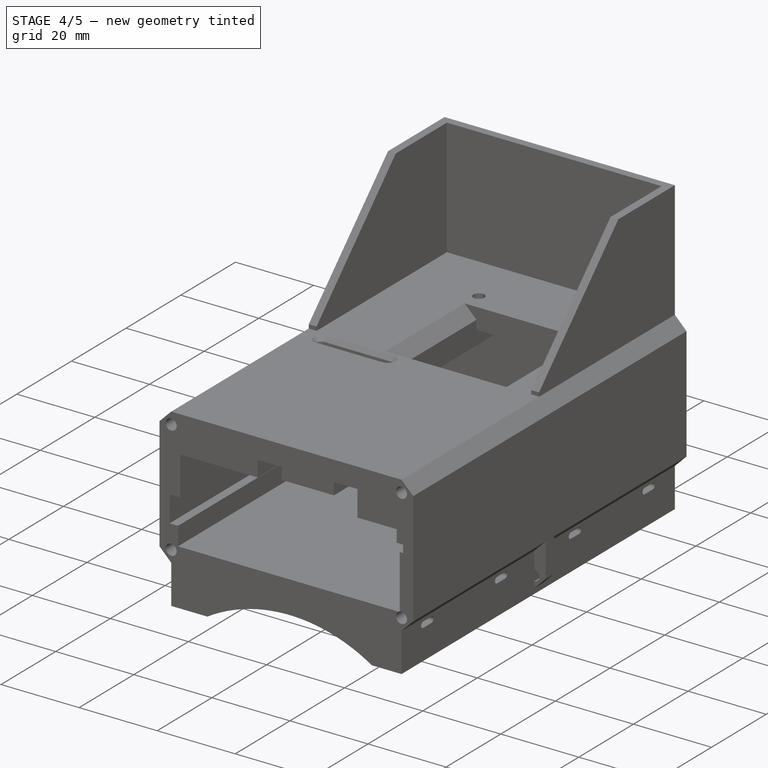
[diagram: stage 4 of 5 — iso view after this stage's code; geometry added in this stage tinted green]
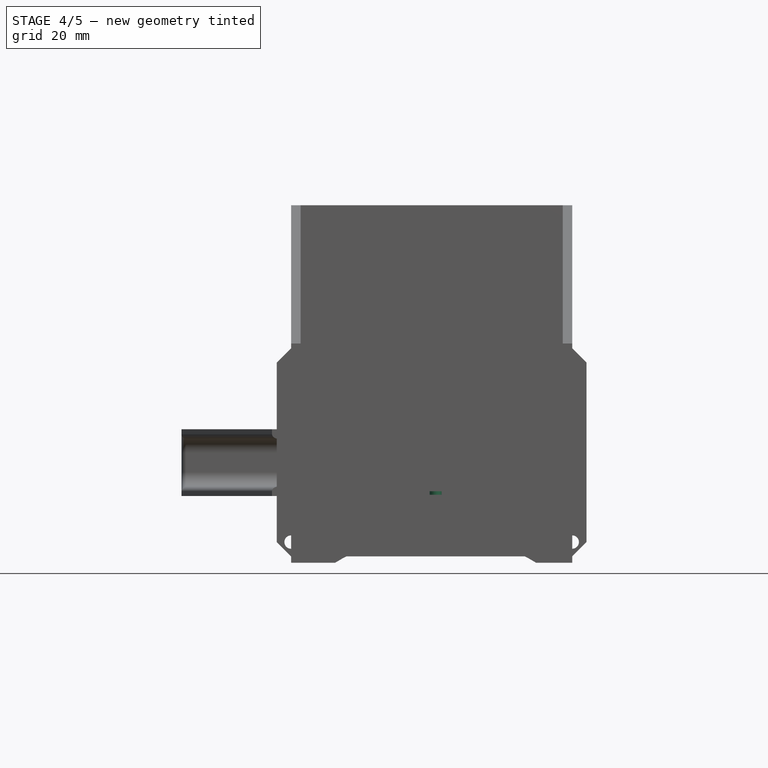
[diagram: stage 4 of 5 — front view after this stage's code; geometry added in this stage tinted green]
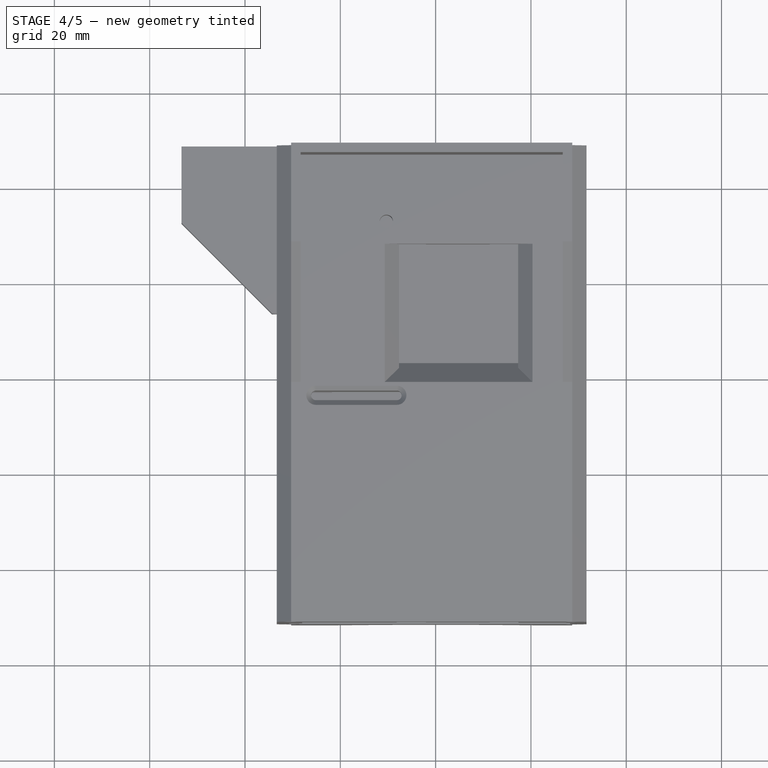
[diagram: stage 4 of 5 — top view after this stage's code; geometry added in this stage tinted green]
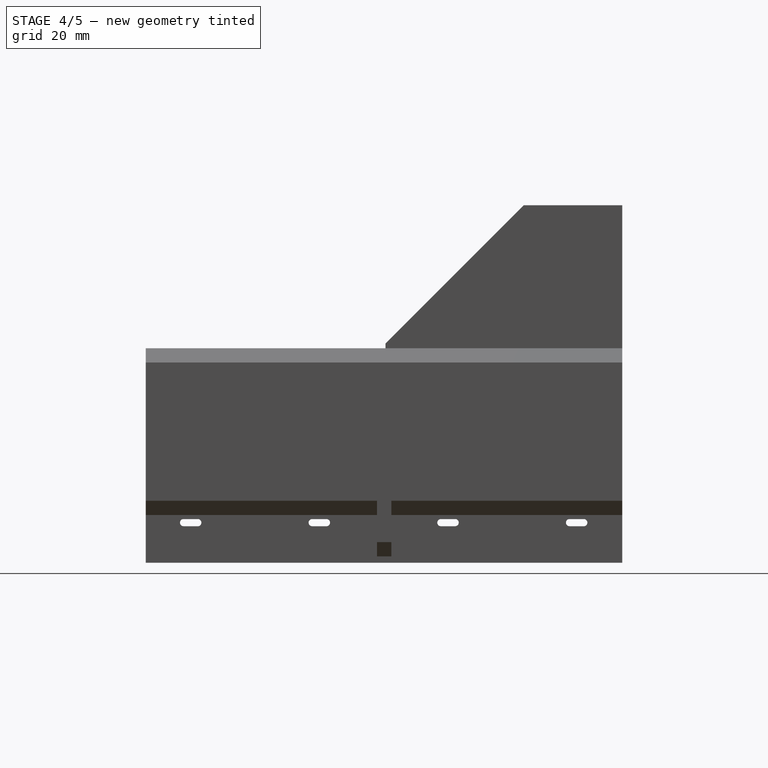
[diagram: stage 4 of 5 — right view after this stage's code; geometry added in this stage tinted green]
FEATURE [PartDesign::Body] Body  label="M2.5 screw 001"
  Group = -> [Sketch006,Revolution]
  Origin = -> Origin001
  Placement = pos=(24.5,-19,-0.8) rot=(0,0,1;0rad)
  Tip = -> Revolution
FEATURE [Sketcher::SketchObject] Sketch007
  MapMode = 5
  Placement = pos=(0,0,0) rot=(1,0,0;1.5708rad)
  Support = -> [XZ_Plane002]
  sketch-geometry (7):
    g0: LineSegment [constr] StartX=0 StartY=0 StartZ=0 EndX=1.25 EndY=0 EndZ=0
    g1: LineSegment StartX=1.25 StartY=0 StartZ=0 EndX=1.25 EndY=5 EndZ=0
    g2: LineSegment StartX=1.25 StartY=0 StartZ=0 EndX=2.7 EndY=0 EndZ=0
    g3: LineSegment StartX=2.7 StartY=0 StartZ=0 EndX=2.7 EndY=-3.1 EndZ=0
    g4: LineSegment StartX=1.25 StartY=5 StartZ=0 EndX=0 EndY=5 EndZ=0
    g5: LineSegment StartX=2.7 StartY=-3.1 StartZ=0 EndX=0 EndY=-3.1 EndZ=0
    g6: LineSegment StartX=0 StartY=5 StartZ=0 EndX=0 EndY=-3.1 EndZ=0
  constraints (20):
    c: Coincident(g0,g-1)
    c: Horizontal(g0)
    c: Distance(g0) = 1.25
    c: Coincident(g0,g1)
    c: Vertical(g1)
    c: Distance(g1) = 5
    c: Coincident(g2,g1)
    c: PointOnObject(g2,g-1)
    c: Distance(g2) = 1.45
    c: Coincident(g3,g2)
    c: Vertical(g3)
    c: Distance(g3) = 3.1
    c: Coincident(g4,g1)
    c: Horizontal(g4)
    c: Equal(g4,g0)
    c: Coincident(g5,g3)
    c: PointOnObject(g5,g-2)
    c: Horizontal(g5)
    c: Coincident(g6,g4)
    c: Coincident(g6,g5)
FEATURE [PartDesign::Revolution] Revolution001
  Angle = 360
  Axis = (0,2e-16,1)
  Base = (0,0,0)
  Placement = pos=(0,0,0) rot=(1,0,0;1.5708rad)
  Profile = -> Sketch007
  ReferenceAxis = -> Sketch007 [V_Axis]
  Reversed = true
FEATURE [PartDesign::Body] Body001  label="M2.5 screw 002"
  Group = -> [Sketch007,Revolution001]
  Origin = -> Origin002
  Placement = pos=(-24.5,-19,-0.8) rot=(0,0,1;0rad)
  Tip = -> Revolution001
FEATURE [Sketcher::SketchObject] Sketch008
  MapMode = 5
  Placement = pos=(0,0,0) rot=(1,0,0;1.5708rad)
  Support = -> [XZ_Plane003]
  sketch-geometry (7):
    g0: LineSegment [constr] StartX=0 StartY=0 StartZ=0 EndX=1.25 EndY=0 EndZ=0
    g1: LineSegment StartX=1.25 StartY=0 StartZ=0 EndX=1.25 EndY=5 EndZ=0
    g2: LineSegment StartX=1.25 StartY=0 StartZ=0 EndX=2.7 EndY=0 EndZ=0
    g3: LineSegment StartX=2.7 StartY=0 StartZ=0 EndX=2.7 EndY=-3.1 EndZ=0
    g4: LineSegment StartX=1.25 StartY=5 StartZ=0 EndX=0 EndY=5 EndZ=0
    g5: LineSegment StartX=2.7 StartY=-3.1 StartZ=0 EndX=0 EndY=-3.1 EndZ=0
    g6: LineSegment StartX=0 StartY=5 StartZ=0 EndX=0 EndY=-3.1 EndZ=0
  constraints (20):
    c: Coincident(g0,g-1)
    c: Horizontal(g0)
    c: Distance(g0) = 1.25
    c: Coincident(g0,g1)
    c: Vertical(g1)
    c: Distance(g1) = 5
    c: Coincident(g2,g1)
    c: PointOnObject(g2,g-1)
    c: Distance(g2) = 1.45
    c: Coincident(g3,g2)
    c: Vertical(g3)
    c: Distance(g3) = 3.1
    c: Coincident(g4,g1)
    c: Horizontal(g4)
    c: Equal(g4,g0)
    c: Coincident(g5,g3)
    c: PointOnObject(g5,g-2)
    c: Horizontal(g5)
    c: Coincident(g6,g4)
    c: Coincident(g6,g5)
FEATURE [PartDesign::Revolution] Revolution002
  Angle = 360
  Axis = (0,2e-16,1)
  Base = (0,0,0)
  Placement = pos=(0,0,0) rot=(1,0,0;1.5708rad)
  Profile = -> Sketch008
  ReferenceAxis = -> Sketch008 [V_Axis]
  Reversed = true
FEATURE [PartDesign::Body] Body002  label="M2.5 screw 003"
  Group = -> [Sketch008,Revolution002]
  Origin = -> Origin003
  Placement = pos=(24.5,39,-0.8) rot=(0,0,1;0rad)
  Tip = -> Revolution002
FEATURE [Sketcher::SketchObject] Sketch009
  MapMode = 5
  Placement = pos=(0,0,0) rot=(1,0,0;1.5708rad)
  Support = -> [XZ_Plane004]
  sketch-geometry (7):
    g0: LineSegment [constr] StartX=0 StartY=0 StartZ=0 EndX=1.25 EndY=0 EndZ=0
    g1: LineSegment StartX=1.25 StartY=0 StartZ=0 EndX=1.25 EndY=5 EndZ=0
    g2: LineSegment StartX=1.25 StartY=0 StartZ=0 EndX=2.7 EndY=0 EndZ=0
    g3: LineSegment StartX=2.7 StartY=0 StartZ=0 EndX=2.7 EndY=-3.1 EndZ=0
    g4: LineSegment StartX=1.25 StartY=5 StartZ=0 EndX=0 EndY=5 EndZ=0
    g5: LineSegment StartX=2.7 StartY=-3.1 StartZ=0 EndX=0 EndY=-3.1 EndZ=0
    g6: LineSegment StartX=0 StartY=5 StartZ=0 EndX=0 EndY=-3.1 EndZ=0
  constraints (20):
    c: Coincident(g0,g-1)
    c: Horizontal(g0)
    c: Distance(g0) = 1.25
    c: Coincident(g0,g1)
    c: Vertical(g1)
    c: Distance(g1) = 5
    c: Coincident(g2,g1)
    c: PointOnObject(g2,g-1)
    c: Distance(g2) = 1.45
    c: Coincident(g3,g2)
    c: Vertical(g3)
    c: Distance(g3) = 3.1
    c: Coincident(g4,g1)
    c: Horizontal(g4)
    c: Equal(g4,g0)
    c: Coincident(g5,g3)
    c: PointOnObject(g5,g-2)
    c: Horizontal(g5)
    c: Coincident(g6,g4)
    c: Coincident(g6,g5)
FEATURE [PartDesign::Revolution] Revolution003
  Angle = 360
  Axis = (0,2e-16,1)
  Base = (0,0,0)
  Placement = pos=(0,0,0) rot=(1,0,0;1.5708rad)
  Profile = -> Sketch009
  ReferenceAxis = -> Sketch009 [V_Axis]
  Reversed = true
FEATURE [PartDesign::Body] Body003  label="M2.5 screw 004"
  Group = -> [Sketch009,Revolution003]
  Origin = -> Origin004
  Placement = pos=(-24.5,39,-0.8) rot=(0,0,1;0rad)
  Tip = -> Revolution003
FEATURE [Sketcher::SketchObject] Sketch010
  MapMode = 5
  Placement = pos=(0,0,0) rot=(1,0,0;1.5708rad)
  Support = -> [XZ_Plane005]
  sketch-geometry (7):
    g0: LineSegment [constr] StartX=0 StartY=0 StartZ=0 EndX=1.25 EndY=0 EndZ=0
    g1: LineSegment StartX=1.25 StartY=0 StartZ=0 EndX=1.25 EndY=5 EndZ=0
    g2: LineSegment StartX=1.25 StartY=0 StartZ=0 EndX=2.7 EndY=0 EndZ=0
    g3: LineSegment StartX=2.7 StartY=0 StartZ=0 EndX=2.7 EndY=-3.1 EndZ=0
    g4: LineSegment StartX=1.25 StartY=5 StartZ=0 EndX=0 EndY=5 EndZ=0
    g5: LineSegment StartX=2.7 StartY=-3.1 StartZ=0 EndX=0 EndY=-3.1 EndZ=0
    g6: LineSegment StartX=0 StartY=5 StartZ=0 EndX=0 EndY=-3.1 EndZ=0
  constraints (20):
    c: Coincident(g0,g-1)
    c: Horizontal(g0)
    c: Distance(g0) = 1.25
    c: Coincident(g0,g1)
    c: Vertical(g1)
    c: Distance(g1) = 5
    c: Coincident(g2,g1)
    c: PointOnObject(g2,g-1)
    c: Distance(g2) = 1.45
    c: Coincident(g3,g2)
    c: Vertical(g3)
    c: Distance(g3) = 3.1
    c: Coincident(g4,g1)
    c: Horizontal(g4)
    c: Equal(g4,g0)
    c: Coincident(g5,g3)
    c: PointOnObject(g5,g-2)
    c: Horizontal(g5)
    c: Coincident(g6,g4)
    c: Coincident(g6,g5)
FEATURE [PartDesign::Revolution] Revolution004
  Angle = 360
  Axis = (0,2e-16,1)
  Base = (0,0,0)
  Placement = pos=(0,0,0) rot=(1,0,0;1.5708rad)
  Profile = -> Sketch010
  ReferenceAxis = -> Sketch010 [V_Axis]
  Reversed = true
FEATURE [PartDesign::Body] Body004  label="M2.5 screw 005"
  Group = -> [Sketch010,Revolution004]
  Origin = -> Origin005
  Placement = pos=(24.5,-19,11.2) rot=(1,0,0;3.14159rad)
  Tip = -> Revolution004
FEATURE [Sketcher::SketchObject] Sketch011
  MapMode = 5
  Placement = pos=(0,0,0) rot=(1,0,0;1.5708rad)
  Support = -> [XZ_Plane006]
  sketch-geometry (7):
    g0: LineSegment [constr] StartX=0 StartY=0 StartZ=0 EndX=1.25 EndY=0 EndZ=0
    g1: LineSegment StartX=1.25 StartY=0 StartZ=0 EndX=1.25 EndY=5 EndZ=0
    g2: LineSegment StartX=1.25 StartY=0 StartZ=0 EndX=2.7 EndY=0 EndZ=0
    g3: LineSegment StartX=2.7 StartY=0 StartZ=0 EndX=2.7 EndY=-3.1 EndZ=0
    g4: LineSegment StartX=1.25 StartY=5 StartZ=0 EndX=0 EndY=5 EndZ=0
    g5: LineSegment StartX=2.7 StartY=-3.1 StartZ=0 EndX=0 EndY=-3.1 EndZ=0
    g6: LineSegment StartX=0 StartY=5 StartZ=0 EndX=0 EndY=-3.1 EndZ=0
  constraints (20):
    c: Coincident(g0,g-1)
    c: Horizontal(g0)
    c: Distance(g0) = 1.25
    c: Coincident(g0,g1)
    c: Vertical(g1)
    c: Distance(g1) = 5
    c: Coincident(g2,g1)
    c: PointOnObject(g2,g-1)
    c: Distance(g2) = 1.45
    c: Coincident(g3,g2)
    c: Vertical(g3)
    c: Distance(g3) = 3.1
    c: Coincident(g4,g1)
    c: Horizontal(g4)
    c: Equal(g4,g0)
    c: Coincident(g5,g3)
    c: PointOnObject(g5,g-2)
    c: Horizontal(g5)
    c: Coincident(g6,g4)
    c: Coincident(g6,g5)
FEATURE [PartDesign::Revolution] Revolution005
  Angle = 360
  Axis = (0,2e-16,1)
  Base = (0,0,0)
  Placement = pos=(0,0,0) rot=(1,0,0;1.5708rad)
  Profile = -> Sketch011
  ReferenceAxis = -> Sketch011 [V_Axis]
  Reversed = true
FEATURE [PartDesign::Body] Body005  label="M2.5 screw 006"
  Group = -> [Sketch011,Revolution005]
  Origin = -> Origin006
  Placement = pos=(24.5,39,11.2) rot=(0,1,0;3.14159rad)
  Tip = -> Revolution005
FEATURE [Sketcher::SketchObject] Sketch012
  MapMode = 5
  Placement = pos=(0,0,0) rot=(1,0,0;1.5708rad)
  Support = -> [XZ_Plane007]
  sketch-geometry (7):
    g0: LineSegment [constr] StartX=0 StartY=0 StartZ=0 EndX=1.25 EndY=0 EndZ=0
    g1: LineSegment StartX=1.25 StartY=0 StartZ=0 EndX=1.25 EndY=5 EndZ=0
    g2: LineSegment StartX=1.25 StartY=0 StartZ=0 EndX=2.7 EndY=0 EndZ=0
    g3: LineSegment StartX=2.7 StartY=0 StartZ=0 EndX=2.7 EndY=-3.1 EndZ=0
    g4: LineSegment StartX=1.25 StartY=5 StartZ=0 EndX=0 EndY=5 EndZ=0
    g5: LineSegment StartX=2.7 StartY=-3.1 StartZ=0 EndX=0 EndY=-3.1 EndZ=0
    g6: LineSegment StartX=0 StartY=5 StartZ=0 EndX=0 EndY=-3.1 EndZ=0
  constraints (20):
    c: Coincident(g0,g-1)
    c: Horizontal(g0)
    c: Distance(g0) = 1.25
    c: Coincident(g0,g1)
    c: Vertical(g1)
    c: Distance(g1) = 5
    c: Coincident(g2,g1)
    c: PointOnObject(g2,g-1)
    c: Distance(g2) = 1.45
    c: Coincident(g3,g2)
    c: Vertical(g3)
    c: Distance(g3) = 3.1
    c: Coincident(g4,g1)
    c: Horizontal(g4)
    c: Equal(g4,g0)
    c: Coincident(g5,g3)
    c: PointOnObject(g5,g-2)
    c: Horizontal(g5)
    c: Coincident(g6,g4)
    c: Coincident(g6,g5)
FEATURE [PartDesign::Revolution] Revolution006
  Angle = 360
  Axis = (0,2e-16,1)
  Base = (0,0,0)
  Placement = pos=(0,0,0) rot=(1,0,0;1.5708rad)
  Profile = -> Sketch012
  ReferenceAxis = -> Sketch012 [V_Axis]
  Reversed = true
FEATURE [PartDesign::Body] Body006  label="M2.5 screw 007"
  Group = -> [Sketch012,Revolution006]
  Origin = -> Origin007
  Placement = pos=(-24.5,-19,11.2) rot=(1,0,0;3.14159rad)
  Tip = -> Revolution006
FEATURE [Sketcher::SketchObject] Sketch013
  MapMode = 5
  Placement = pos=(0,0,0) rot=(1,0,0;1.5708rad)
  Support = -> [XZ_Plane008]
  sketch-geometry (7):
    g0: LineSegment [constr] StartX=0 StartY=0 StartZ=0 EndX=1.25 EndY=0 EndZ=0
    g1: LineSegment StartX=1.25 StartY=0 StartZ=0 EndX=1.25 EndY=5 EndZ=0
    g2: LineSegment StartX=1.25 StartY=0 StartZ=0 EndX=2.7 EndY=0 EndZ=0
    g3: LineSegment StartX=2.7 StartY=0 StartZ=0 EndX=2.7 EndY=-3.1 EndZ=0
    g4: LineSegment StartX=1.25 StartY=5 StartZ=0 EndX=0 EndY=5 EndZ=0
    g5: LineSegment StartX=2.7 StartY=-3.1 StartZ=0 EndX=0 EndY=-3.1 EndZ=0
    g6: LineSegment StartX=0 StartY=5 StartZ=0 EndX=0 EndY=-3.1 EndZ=0
  constraints (20):
    c: Coincident(g0,g-1)
    c: Horizontal(g0)
    c: Distance(g0) = 1.25
    c: Coincident(g0,g1)
    c: Vertical(g1)
    c: Distance(g1) = 5
    c: Coincident(g2,g1)
    c: PointOnObject(g2,g-1)
    c: Distance(g2) = 1.45
    c: Coincident(g3,g2)
    c: Vertical(g3)
    c: Distance(g3) = 3.1
    c: Coincident(g4,g1)
    c: Horizontal(g4)
    c: Equal(g4,g0)
    c: Coincident(g5,g3)
    c: PointOnObject(g5,g-2)
    c: Horizontal(g5)
    c: Coincident(g6,g4)
    c: Coincident(g6,g5)
FEATURE [PartDesign::Revolution] Revolution007
  Angle = 360
  Axis = (0,2e-16,1)
  Base = (0,0,0)
  Placement = pos=(0,0,0) rot=(1,0,0;1.5708rad)
  Profile = -> Sketch013
  ReferenceAxis = -> Sketch013 [V_Axis]
  Reversed = true
FEATURE [PartDesign::Body] Body007  label="M2.5 screw 008"
  Group = -> [Sketch013,Revolution007]
  Origin = -> Origin008
  Placement = pos=(-24.5,39,11.2) rot=(1,0,0;3.14159rad)
  Tip = -> Revolution007
FEATURE [Sketcher::SketchObject] Sketch015
  MapMode = 5
  Placement = pos=(0,0,0) rot=(1,0,0;1.5708rad)
  Support = -> [XZ_Plane010]
  sketch-geometry (7):
    g0: LineSegment [constr] StartX=0 StartY=0 StartZ=0 EndX=1.25 EndY=0 EndZ=0
    g1: LineSegment StartX=1.25 StartY=0 StartZ=0 EndX=1.25 EndY=5 EndZ=0
    g2: LineSegment StartX=1.25 StartY=0 StartZ=0 EndX=2.7 EndY=0 EndZ=0
    g3: LineSegment StartX=2.7 StartY=0 StartZ=0 EndX=2.7 EndY=-3.1 EndZ=0
    g4: LineSegment StartX=1.25 StartY=5 StartZ=0 EndX=0 EndY=5 EndZ=0
    g5: LineSegment StartX=2.7 StartY=-3.1 StartZ=0 EndX=0 EndY=-3.1 EndZ=0
    g6: LineSegment StartX=0 StartY=5 StartZ=0 EndX=0 EndY=-3.1 EndZ=0
  constraints (20):
    c: Coincident(g0,g-1)
    c: Horizontal(g0)
    c: Distance(g0) = 1.25
    c: Coincident(g0,g1)
    c: Vertical(g1)
    c: Distance(g1) = 5
    c: Coincident(g2,g1)
    c: PointOnObject(g2,g-1)
    c: Distance(g2) = 1.45
    c: Coincident(g3,g2)
    c: Vertical(g3)
    c: Distance(g3) = 3.1
    c: Coincident(g4,g1)
    c: Horizontal(g4)
    c: Equal(g4,g0)
    c: Coincident(g5,g3)
    c: PointOnObject(g5,g-2)
    c: Horizontal(g5)
    c: Coincident(g6,g4)
    c: Coincident(g6,g5)
FEATURE [PartDesign::Revolution] Revolution009
  Angle = 360
  Axis = (0,2e-16,1)
  Base = (0,0,0)
  Placement = pos=(0,0,0) rot=(1,0,0;1.5708rad)
  Profile = -> Sketch015
  ReferenceAxis = -> Sketch015 [V_Axis]
  Reversed = true
FEATURE [PartDesign::Body] Body009  label="M2.5 screw 009"
  Group = -> [Sketch015,Revolution009]
  Origin = -> Origin010
  Placement = pos=(-5.1,24.8,17.7) rot=(1,0,0;3.14159rad)
  Tip = -> Revolution009
FEATURE [Sketcher::SketchObject] Sketch016
  MapMode = 5
  Placement = pos=(0,0,0) rot=(1,0,0;1.5708rad)
  Support = -> [XZ_Plane011]
  sketch-geometry (7):
    g0: LineSegment [constr] StartX=0 StartY=0 StartZ=0 EndX=1.25 EndY=0 EndZ=0
    g1: LineSegment StartX=1.25 StartY=0 StartZ=0 EndX=1.25 EndY=5 EndZ=0
    g2: LineSegment StartX=1.25 StartY=0 StartZ=0 EndX=2.7 EndY=0 EndZ=0
    g3: LineSegment StartX=2.7 StartY=0 StartZ=0 EndX=2.7 EndY=-3.1 EndZ=0
    g4: LineSegment StartX=1.25 StartY=5 StartZ=0 EndX=0 EndY=5 EndZ=0
    g5: LineSegment StartX=2.7 StartY=-3.1 StartZ=0 EndX=0 EndY=-3.1 EndZ=0
    g6: LineSegment StartX=0 StartY=5 StartZ=0 EndX=0 EndY=-3.1 EndZ=0
  constraints (20):
    c: Coincident(g0,g-1)
    c: Horizontal(g0)
    c: Distance(g0) = 1.25
    c: Coincident(g0,g1)
    c: Vertical(g1)
    c: Distance(g1) = 5
    c: Coincident(g2,g1)
    c: PointOnObject(g2,g-1)
    c: Distance(g2) = 1.45
    c: Coincident(g3,g2)
    c: Vertical(g3)
    c: Distance(g3) = 3.1
    c: Coincident(g4,g1)
    c: Horizontal(g4)
    c: Equal(g4,g0)
    c: Coincident(g5,g3)
    c: PointOnObject(g5,g-2)
    c: Horizontal(g5)
    c: Coincident(g6,g4)
    c: Coincident(g6,g5)
FEATURE [PartDesign::Revolution] Revolution010
  Angle = 360
  Axis = (0,2e-16,1)
  Base = (0,0,0)
  Placement = pos=(0,0,0) rot=(1,0,0;1.5708rad)
  Profile = -> Sketch016
  ReferenceAxis = -> Sketch016 [V_Axis]
  Reversed = true
FEATURE [Sketcher::SketchObject] Sketch055
  ExternalGeometry = -> [Fillet]
  MapMode = 5
  Placement = pos=(0,-3,-7e-16) rot=(1,0,0;1.5708rad)
  Support = -> [Fillet]
  sketch-geometry (12):
    g0: Circle CenterX=-30.33 CenterY=23.33 CenterZ=0 NormalX=0 NormalY=0 NormalZ=1 AngleXU=0 Radius=1.4
    g1: Circle CenterX=28.67 CenterY=23.33 CenterZ=0 NormalX=0 NormalY=0 NormalZ=1 AngleXU=0 Radius=1.4
    g2: Circle CenterX=-30.33 CenterY=-5.67 CenterZ=0 NormalX=0 NormalY=0 NormalZ=1 AngleXU=0 Radius=1.4
    g3: Circle CenterX=28.67 CenterY=-5.67 CenterZ=0 NormalX=0 NormalY=0 NormalZ=1 AngleXU=0 Radius=1.4
    g4: LineSegment [constr] StartX=-30.33 StartY=26.33 StartZ=0 EndX=-30.33 EndY=23.33 EndZ=0
    g5: LineSegment [constr] StartX=-30.33 StartY=23.33 StartZ=0 EndX=-33.33 EndY=23.33 EndZ=0
    g6: LineSegment [constr] StartX=-30.33 StartY=-5.67 StartZ=0 EndX=-33.33 EndY=-5.67 EndZ=0
    g7: LineSegment [constr] StartX=-30.33 StartY=-5.67 StartZ=0 EndX=-30.33 EndY=-8.67 EndZ=0
    g8: LineSegment [constr] StartX=28.67 StartY=-5.67 StartZ=0 EndX=28.67 EndY=-8.67 EndZ=0
    g9: LineSegment [constr] StartX=28.67 StartY=-5.67 StartZ=0 EndX=31.67 EndY=-5.67 EndZ=0
    g10: LineSegment [constr] StartX=28.67 StartY=26.33 StartZ=0 EndX=28.67 EndY=23.33 EndZ=0
    g11: LineSegment [constr] StartX=28.67 StartY=23.33 StartZ=0 EndX=31.67 EndY=23.33 EndZ=0
  constraints (28):
    c: Radius(g0) = 1.4
    c: Equal(g0,g1) = 1.4
    c: Equal(g0,g2) = 1.4
    c: Coincident(g4,g-3)
    c: Coincident(g4,g0)
    c: Coincident(g5,g0)
    c: Coincident(g5,g-4)
    c: Horizontal(g5)
    c: Vertical(g4)
    c: Coincident(g6,g2)
    c: Coincident(g6,g-4)
    c: Coincident(g7,g2)
    c: Coincident(g7,g-5)
    c: Vertical(g7)
    c: Horizontal(g6)
    c: Coincident(g8,g3)
    c: Coincident(g8,g-5)
    c: Vertical(g8)
    c: Coincident(g9,g3)
    c: Coincident(g9,g-6)
    c: Horizontal(g9)
    c: Coincident(g10,g-3)
    c: Coincident(g10,g1)
    c: Vertical(g10)
    c: Coincident(g11,g1)
    c: Coincident(g11,g-6)
    c: Horizontal(g11)
    c: Equal(g3,g0)
FEATURE [PartDesign::Pocket] Pocket007
  BaseFeature = -> Fillet
  Length = 5
  Length2 = 100
  Placement = pos=(0,0,0) rot=(1,0,0;1.5708rad)
  Profile = -> Sketch055
  Type = 0
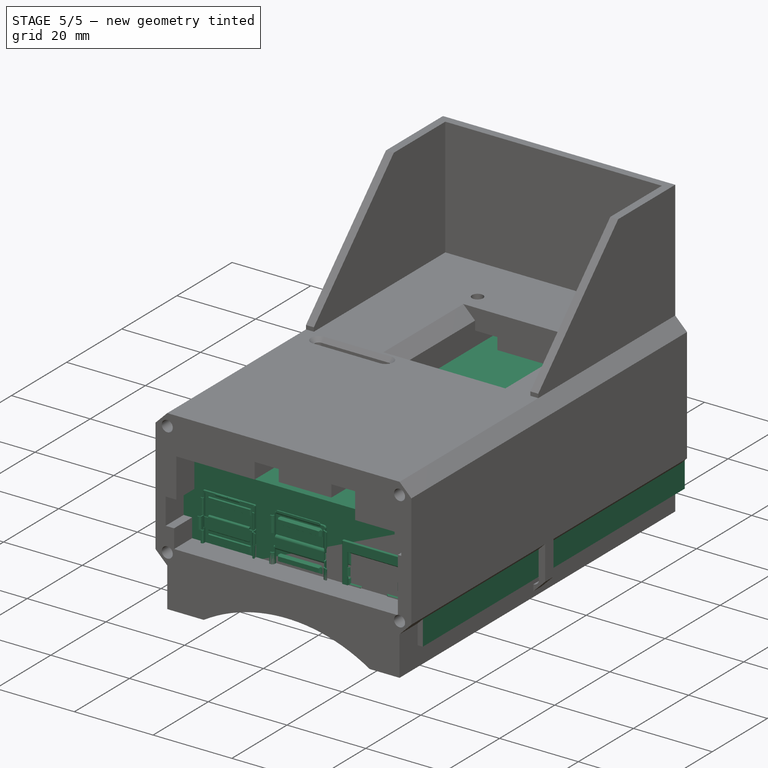
[diagram: stage 5 of 5 — iso view after this stage's code; geometry added in this stage tinted green]
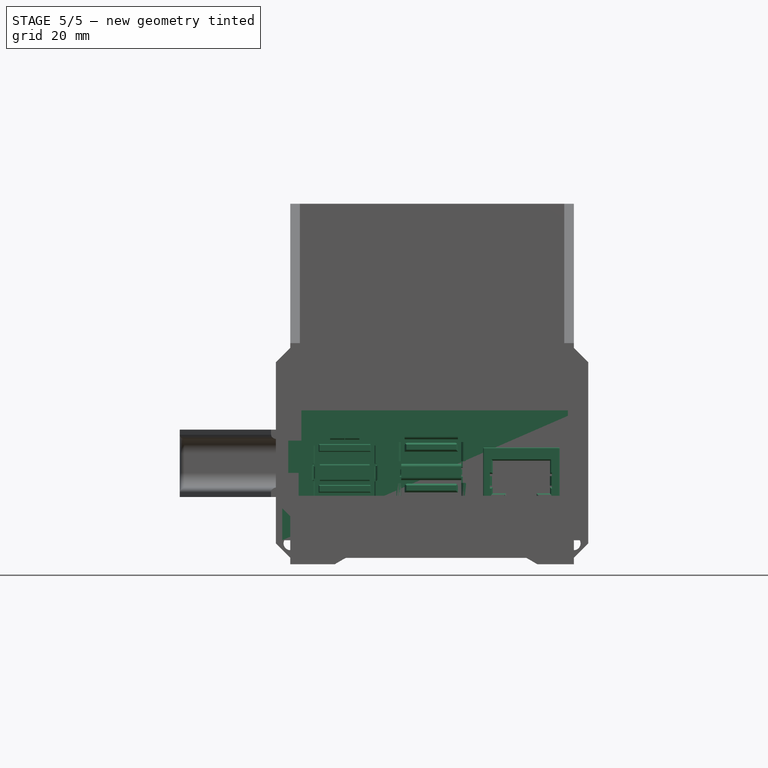
[diagram: stage 5 of 5 — front view after this stage's code; geometry added in this stage tinted green]
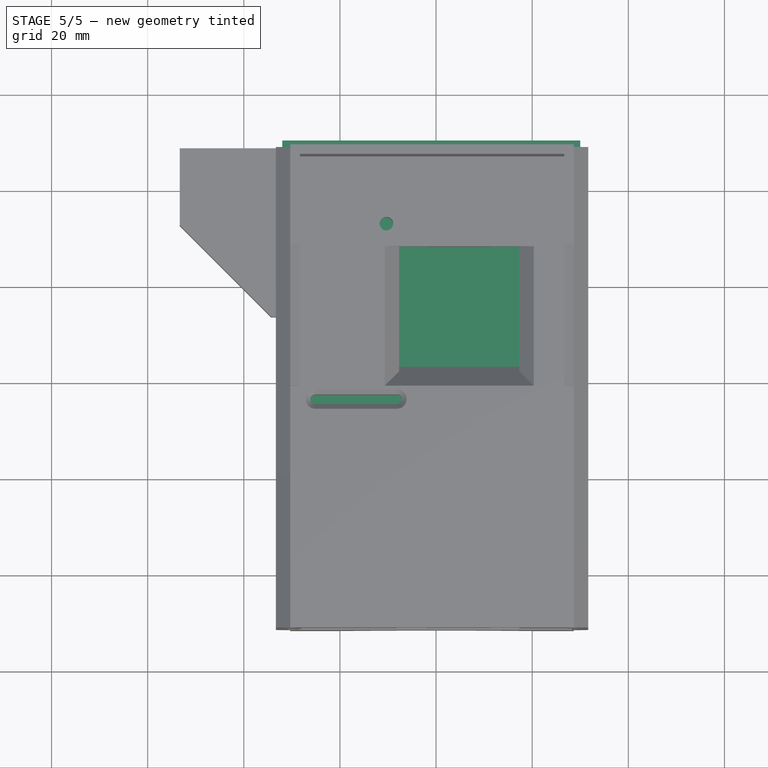
[diagram: stage 5 of 5 — top view after this stage's code; geometry added in this stage tinted green]
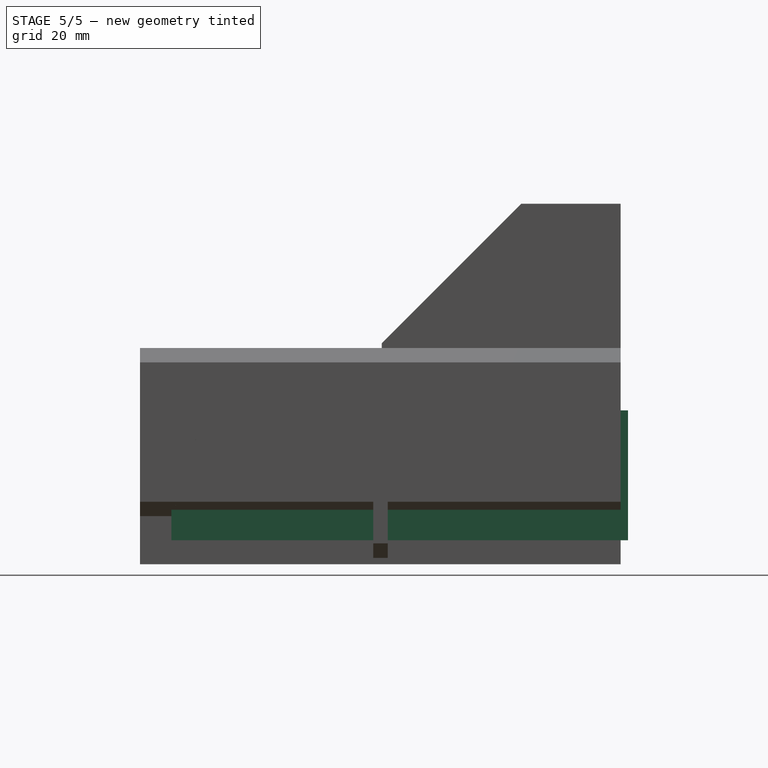
[diagram: stage 5 of 5 — right view after this stage's code; geometry added in this stage tinted green]
FEATURE [Part::Feature] Part__Feature  label="PCB, RPi4ModelB"
  Placement = pos=(0,0,0) rot=(0.57735,-0.57735,-0.57735;2.0944rad)
  shape: bbox 56 x 85 x 1.6 mm, 136 faces (baked)
FEATURE [Part::Feature] Part__Feature001  label="Broadcom BCM2711B0 CPU, RPi4ModelB"
  Placement = pos=(4.5,13.25,0.8) rot=(0.57735,-0.57735,-0.57735;2.0944rad)
  shape: bbox 15 x 15 x 2.3 mm, 29 faces, 2 solids (baked)
FEATURE [Part::Feature] Part__Feature002  label="2.54 mm DUPONT MALE PIN HEADER, POE, 2X2, RPi4ModelB"
  Placement = pos=(18.36,-19,0.8) rot=(0.57735,-0.57735,-0.57735;2.0944rad)
  shape: bbox 5.08 x 5.08 x 11.3 mm, 102 faces, 5 solids (baked)
FEATURE [Part::Feature] Part__Feature003  label="2.54 mm DUPONT MALE PIN HEADER, IO, 2X20, RPi4ModelB"
  Placement = pos=(24.5,10,0.8) rot=(0.57735,-0.57735,-0.57735;2.0944rad)
  shape: bbox 5.08 x 50.8 x 11.3 mm, 858 faces, 41 solids (baked)
FEATURE [Part::Feature] Part__Feature004  label="Camera Connector, RPi4ModelB"
  Placement = pos=(-16.5,-4,0.8) rot=(1,0,0;1.5708rad)
  shape: bbox 22.4 x 5.072 x 5.68 mm, 995 faces, 17 solids (baked)
FEATURE [Part::Feature] Part__Feature005  label="Microphone Plug, RPi4ModelB"
  Placement = pos=(-21.65,-11.5,0.8) rot=(0.57735,-0.57735,-0.57735;2.0944rad)
  shape: bbox 15 x 7.229 x 7.798 mm, 323 faces, 5 solids (baked)
FEATURE [Part::Feature] Part__Feature006  label="Display Connector, RPi4ModelB"
  Placement = pos=(0,38.5,0.8) rot=(0,0.707107,0.707107;3.14159rad)
  shape: bbox 22.4 x 5.072 x 5.68 mm, 995 faces, 17 solids (baked)
FEATURE [Part::Feature] Part__Feature007  label="Gigabit Ethernet Port, RPi4ModelB"
  Placement = pos=(17.75,-45.5,7.55) rot=(1,0,0;1.5708rad)
  shape: bbox 16.33 x 21.6 x 17.23 mm, 403 faces (baked)
FEATURE [Part::Feature] Part__Feature008  label="Female Micro HDMI Connector, RPi4ModelB"
  Placement = pos=(-27.3875,3,0.8) rot=(0.57735,-0.57735,-0.57735;2.0944rad)
  shape: bbox 7.501 x 6.501 x 3.516 mm, 1058 faces (baked)
FEATURE [Part::Feature] Part__Feature009  label="Female Micro HDMI Connector, RPi4ModelB001"
  Placement = pos=(-27.3875,16.5,0.8) rot=(0.57735,-0.57735,-0.57735;2.0944rad)
  shape: bbox 7.501 x 6.501 x 3.516 mm, 1058 faces (baked)
FEATURE [Part::Feature] Part__Feature010  label="Female USB Type C Connector, RPi4ModelB"
  Placement = pos=(-26.5419,31.3,0.8) rot=(0.57735,-0.57735,-0.57735;2.0944rad)
  shape: bbox 7.9 x 8.94 x 3.96 mm, 403 faces (baked)
FEATURE [Part::Feature] Part__Feature011  label="2X USB3.0 PORTS, RPi4ModelB"
  Placement = pos=(-1,-37.07,0.8) rot=(0.57735,-0.57735,-0.57735;2.0944rad)
  shape: bbox 15.83 x 17.47 x 19.41 mm, 1044 faces (baked)
FEATURE [Part::Feature] Part__Feature012  label="91D77 D9WHV 778K, 4 GB LPDDR4 SDRAM, RPi4ModelB"
  Placement = pos=(4.5,-2.25,0.8) rot=(0.57735,-0.57735,-0.57735;2.0944rad)
  shape: bbox 14.5 x 10 x 0.8 mm, 180 faces (baked)
FEATURE [Part::Feature] Part__Feature013  label="Cypress CYW43455 Wireless Module Cover, RPi4ModelB"
  Placement = pos=(14.5,30.5,0.8) rot=(0.57735,-0.57735,-0.57735;2.0944rad)
  shape: bbox 13 x 11 x 1.6 mm, 70 faces (baked)
FEATURE [Part::Feature] Part__Feature014  label="SD Card Slot, RPi4ModelB"
  Placement = pos=(1e-14,35.3,-0.8) rot=(-1,0,0;1.5708rad)
  shape: bbox 11.95 x 11.4 x 1.45 mm, 479 faces, 10 solids (baked)
FEATURE [Part::Feature] Part__Feature015  label="VIA VL805 PCIe USB 3.0 controller, RPi4ModelB"
  Placement = pos=(-4,-17.5,0.8) rot=(0.57735,-0.57735,-0.57735;2.0944rad)
  shape: bbox 8.8 x 8.8 x 0.8 mm, 398 faces (baked)
FEATURE [Part::Feature] Part__Feature016  label="2X USB2.0 PORTS, RPi4ModelB"
  Placement = pos=(-19,-37.065,0.65) rot=(0.57735,-0.57735,-0.57735;2.0944rad)
  shape: bbox 15.45 x 17.86 x 19.16 mm, 1086 faces (baked)
FEATURE [Part::Feature] Part__Feature017  label="Broadcom BCM54213PE Gigabit Ethernet Transceiver, RPi4ModelB"
  Placement = pos=(10,-16.5,0.8) rot=(0.57735,-0.57735,-0.57735;2.0944rad)
  shape: bbox 6.802 x 6.802 x 1.002 mm, 559 faces (baked)
FEATURE [Part::Feature] Part__Feature018  label="MxL7704 Universal PMIC, RPi4ModelB"
  Placement = pos=(-16,32.5,0.8) rot=(0.57735,-0.57735,-0.57735;2.0944rad)
  shape: bbox 5.4 x 5.4 x 0.8 mm, 311 faces (baked)
FEATURE [Part::Feature] Part__Feature019  label="PoE HAT pi3 b+"
  Placement = pos=(31.7,42.6,11.2) rot=(0,0.707107,-0.707107;3.14159rad)
  shape: bbox 56.7 x 65 x 14.5 mm, 91 faces, 2 solids (baked)
FEATURE [Sketcher::SketchObject] Sketch
  sketch-geometry (13):
    g0: Circle CenterX=0 CenterY=0 CenterZ=0 NormalX=0 NormalY=0 NormalZ=1 AngleXU=0 Radius=2
    g1: LineSegment StartX=-1.4 StartY=2.5 StartZ=0 EndX=1.4 EndY=2.5 EndZ=0
    g2: LineSegment StartX=1.4 StartY=-2.5 StartZ=0 EndX=-1.4 EndY=-2.5 EndZ=0
    g3: LineSegment [constr] StartX=0 StartY=2.5 StartZ=0 EndX=0 EndY=0 EndZ=0
    g4: LineSegment [constr] StartX=0 StartY=0 StartZ=0 EndX=0 EndY=-2.5 EndZ=0
    g5: LineSegment [constr] StartX=-1.4 StartY=2.5 StartZ=0 EndX=0 EndY=0 EndZ=0
    g6: LineSegment [constr] StartX=0 StartY=0 StartZ=0 EndX=1.4 EndY=-2.5 EndZ=0
    g7: LineSegment StartX=1.4 StartY=2.5 StartZ=0 EndX=2.86531 EndY=0 EndZ=0
    g8: LineSegment StartX=2.86531 StartY=0 StartZ=0 EndX=1.4 EndY=-2.5 EndZ=0
    g9: LineSegment StartX=-1.4 StartY=-2.5 StartZ=0 EndX=-2.86531 EndY=0 EndZ=0
    g10: LineSegment StartX=-2.86531 StartY=0 StartZ=0 EndX=-1.4 EndY=2.5 EndZ=0
    g11: LineSegment [constr] StartX=-2.86531 StartY=0 StartZ=0 EndX=0 EndY=0 EndZ=0
    g12: LineSegment [constr] StartX=0 StartY=0 StartZ=0 EndX=2.86531 EndY=0 EndZ=0
  constraints (37):
    c: Radius(g0) = 2
    c: Horizontal(g1)
    c: Horizontal(g2)
    c: Vertical(g1,g2)
    c: DistanceY(g2,g1) = 5
    c: PointOnObject(g3,g1)
    c: Coincident(g3,g0)
    c: Vertical(g3)
    c: Coincident(g4,g0)
    c: PointOnObject(g4,g2)
    c: Vertical(g4)
    c: Equal(g3,g4)
    c: Coincident(g0,g-1)
    c: Coincident(g5,g1)
    c: Coincident(g5,g0)
    c: Coincident(g6,g0)
    c: Coincident(g6,g2)
    c: Equal(g6,g5)
    c: Equal(g2,g1)
    c: Distance(g1) = 2.8
    c: PointOnObject(g7,g-1)
    c: Coincident(g8,g7)
    c: Coincident(g8,g2)
    c: PointOnObject(g9,g-1)
    c: Coincident(g10,g9)
    c: Coincident(g10,g1)
    c: Coincident(g11,g9)
    c: Coincident(g11,g0)
    c: Horizontal(g11)
    c: Coincident(g12,g0)
    c: Coincident(g12,g7)
    c: Horizontal(g12)
    c: Equal(g12,g11)
    c: Equal(g11,g5)
    c: Equal(g5,g6)
    c: Coincident(g7,g1)
    c: Coincident(g9,g2)
FEATURE [Part::Extrusion] Extrude  label="stand off"
  Base = -> Sketch
  Dir = (0,0,1)
  DirMode = 2
  FaceMakerClass = Part::FaceMakerBullseye
  LengthFwd = 9
  LengthRev = 0
  Placement = pos=(-24.5,39,0.8) rot=(0,0,-1;1.5708rad)
  Solid = true
  Symmetric = false
FEATURE [Sketcher::SketchObject] Sketch001
  sketch-geometry (13):
    g0: Circle CenterX=0 CenterY=0 CenterZ=0 NormalX=0 NormalY=0 NormalZ=1 AngleXU=0 Radius=2
    g1: LineSegment StartX=-1.4 StartY=2.5 StartZ=0 EndX=1.4 EndY=2.5 EndZ=0
    g2: LineSegment StartX=1.4 StartY=-2.5 StartZ=0 EndX=-1.4 EndY=-2.5 EndZ=0
    g3: LineSegment [constr] StartX=0 StartY=2.5 StartZ=0 EndX=0 EndY=0 EndZ=0
    g4: LineSegment [constr] StartX=0 StartY=0 StartZ=0 EndX=0 EndY=-2.5 EndZ=0
    g5: LineSegment [constr] StartX=-1.4 StartY=2.5 StartZ=0 EndX=0 EndY=0 EndZ=0
    g6: LineSegment [constr] StartX=0 StartY=0 StartZ=0 EndX=1.4 EndY=-2.5 EndZ=0
    g7: LineSegment StartX=1.4 StartY=2.5 StartZ=0 EndX=2.86531 EndY=0 EndZ=0
    g8: LineSegment StartX=2.86531 StartY=0 StartZ=0 EndX=1.4 EndY=-2.5 EndZ=0
    g9: LineSegment StartX=-1.4 StartY=-2.5 StartZ=0 EndX=-2.86531 EndY=0 EndZ=0
    g10: LineSegment StartX=-2.86531 StartY=0 StartZ=0 EndX=-1.4 EndY=2.5 EndZ=0
    g11: LineSegment [constr] StartX=-2.86531 StartY=0 StartZ=0 EndX=0 EndY=0 EndZ=0
    g12: LineSegment [constr] StartX=0 StartY=0 StartZ=0 EndX=2.86531 EndY=0 EndZ=0
  constraints (37):
    c: Radius(g0) = 2
    c: Horizontal(g1)
    c: Horizontal(g2)
    c: Vertical(g1,g2)
    c: DistanceY(g2,g1) = 5
    c: PointOnObject(g3,g1)
    c: Coincident(g3,g0)
    c: Vertical(g3)
    c: Coincident(g4,g0)
    c: PointOnObject(g4,g2)
    c: Vertical(g4)
    c: Equal(g3,g4)
    c: Coincident(g0,g-1)
    c: Coincident(g5,g1)
    c: Coincident(g5,g0)
    c: Coincident(g6,g0)
    c: Coincident(g6,g2)
    c: Equal(g6,g5)
    c: Equal(g2,g1)
    c: Distance(g1) = 2.8
    c: PointOnObject(g7,g-1)
    c: Coincident(g8,g7)
    c: Coincident(g8,g2)
    c: PointOnObject(g9,g-1)
    c: Coincident(g10,g9)
    c: Coincident(g10,g1)
    c: Coincident(g11,g9)
    c: Coincident(g11,g0)
    c: Horizontal(g11)
    c: Coincident(g12,g0)
    c: Coincident(g12,g7)
    c: Horizontal(g12)
    c: Equal(g12,g11)
    c: Equal(g11,g5)
    c: Equal(g5,g6)
    c: Coincident(g7,g1)
    c: Coincident(g9,g2)
FEATURE [Part::Extrusion] Extrude001  label="stand off001"
  Base = -> Sketch001
  Dir = (0,0,1)
  DirMode = 2
  FaceMakerClass = Part::FaceMakerBullseye
  LengthFwd = 9
  LengthRev = 0
  Placement = pos=(24.5,39,0.8) rot=(0,0,-1;1.5708rad)
  Solid = true
  Symmetric = false
FEATURE [Sketcher::SketchObject] Sketch002
  sketch-geometry (13):
    g0: Circle CenterX=0 CenterY=0 CenterZ=0 NormalX=0 NormalY=0 NormalZ=1 AngleXU=0 Radius=2
    g1: LineSegment StartX=-1.4 StartY=2.5 StartZ=0 EndX=1.4 EndY=2.5 EndZ=0
    g2: LineSegment StartX=1.4 StartY=-2.5 StartZ=0 EndX=-1.4 EndY=-2.5 EndZ=0
    g3: LineSegment [constr] StartX=0 StartY=2.5 StartZ=0 EndX=0 EndY=0 EndZ=0
    g4: LineSegment [constr] StartX=0 StartY=0 StartZ=0 EndX=0 EndY=-2.5 EndZ=0
    g5: LineSegment [constr] StartX=-1.4 StartY=2.5 StartZ=0 EndX=0 EndY=0 EndZ=0
    g6: LineSegment [constr] StartX=0 StartY=0 StartZ=0 EndX=1.4 EndY=-2.5 EndZ=0
    g7: LineSegment StartX=1.4 StartY=2.5 StartZ=0 EndX=2.86531 EndY=0 EndZ=0
    g8: LineSegment StartX=2.86531 StartY=0 StartZ=0 EndX=1.4 EndY=-2.5 EndZ=0
    g9: LineSegment StartX=-1.4 StartY=-2.5 StartZ=0 EndX=-2.86531 EndY=0 EndZ=0
    g10: LineSegment StartX=-2.86531 StartY=0 StartZ=0 EndX=-1.4 EndY=2.5 EndZ=0
    g11: LineSegment [constr] StartX=-2.86531 StartY=0 StartZ=0 EndX=0 EndY=0 EndZ=0
    g12: LineSegment [constr] StartX=0 StartY=0 StartZ=0 EndX=2.86531 EndY=0 EndZ=0
  constraints (37):
    c: Radius(g0) = 2
    c: Horizontal(g1)
    c: Horizontal(g2)
    c: Vertical(g1,g2)
    c: DistanceY(g2,g1) = 5
    c: PointOnObject(g3,g1)
    c: Coincident(g3,g0)
    c: Vertical(g3)
    c: Coincident(g4,g0)
    c: PointOnObject(g4,g2)
    c: Vertical(g4)
    c: Equal(g3,g4)
    c: Coincident(g0,g-1)
    c: Coincident(g5,g1)
    c: Coincident(g5,g0)
    c: Coincident(g6,g0)
    c: Coincident(g6,g2)
    c: Equal(g6,g5)
    c: Equal(g2,g1)
    c: Distance(g1) = 2.8
    c: PointOnObject(g7,g-1)
    c: Coincident(g8,g7)
    c: Coincident(g8,g2)
    c: PointOnObject(g9,g-1)
    c: Coincident(g10,g9)
    c: Coincident(g10,g1)
    c: Coincident(g11,g9)
    c: Coincident(g11,g0)
    c: Horizontal(g11)
    c: Coincident(g12,g0)
    c: Coincident(g12,g7)
    c: Horizontal(g12)
    c: Equal(g12,g11)
    c: Equal(g11,g5)
    c: Equal(g5,g6)
    c: Coincident(g7,g1)
    c: Coincident(g9,g2)
FEATURE [Part::Extrusion] Extrude002  label="stand off002"
  Base = -> Sketch002
  Dir = (0,0,1)
  DirMode = 2
  FaceMakerClass = Part::FaceMakerBullseye
  LengthFwd = 9
  LengthRev = 0
  Placement = pos=(-24.5,-19,0.8) rot=(0,0,-1;1.5708rad)
  Solid = true
  Symmetric = false
FEATURE [Sketcher::SketchObject] Sketch003
  sketch-geometry (13):
    g0: Circle CenterX=0 CenterY=0 CenterZ=0 NormalX=0 NormalY=0 NormalZ=1 AngleXU=0 Radius=2
    g1: LineSegment StartX=-1.4 StartY=2.5 StartZ=0 EndX=1.4 EndY=2.5 EndZ=0
    g2: LineSegment StartX=1.4 StartY=-2.5 StartZ=0 EndX=-1.4 EndY=-2.5 EndZ=0
    g3: LineSegment [constr] StartX=0 StartY=2.5 StartZ=0 EndX=0 EndY=0 EndZ=0
    g4: LineSegment [constr] StartX=0 StartY=0 StartZ=0 EndX=0 EndY=-2.5 EndZ=0
    g5: LineSegment [constr] StartX=-1.4 StartY=2.5 StartZ=0 EndX=0 EndY=0 EndZ=0
    g6: LineSegment [constr] StartX=0 StartY=0 StartZ=0 EndX=1.4 EndY=-2.5 EndZ=0
    g7: LineSegment StartX=1.4 StartY=2.5 StartZ=0 EndX=2.86531 EndY=0 EndZ=0
    g8: LineSegment StartX=2.86531 StartY=0 StartZ=0 EndX=1.4 EndY=-2.5 EndZ=0
    g9: LineSegment StartX=-1.4 StartY=-2.5 StartZ=0 EndX=-2.86531 EndY=0 EndZ=0
    g10: LineSegment StartX=-2.86531 StartY=0 StartZ=0 EndX=-1.4 EndY=2.5 EndZ=0
    g11: LineSegment [constr] StartX=-2.86531 StartY=0 StartZ=0 EndX=0 EndY=0 EndZ=0
    g12: LineSegment [constr] StartX=0 StartY=0 StartZ=0 EndX=2.86531 EndY=0 EndZ=0
  constraints (37):
    c: Radius(g0) = 2
    c: Horizontal(g1)
    c: Horizontal(g2)
    c: Vertical(g1,g2)
    c: DistanceY(g2,g1) = 5
    c: PointOnObject(g3,g1)
    c: Coincident(g3,g0)
    c: Vertical(g3)
    c: Coincident(g4,g0)
    c: PointOnObject(g4,g2)
    c: Vertical(g4)
    c: Equal(g3,g4)
    c: Coincident(g0,g-1)
    c: Coincident(g5,g1)
    c: Coincident(g5,g0)
    c: Coincident(g6,g0)
    c: Coincident(g6,g2)
    c: Equal(g6,g5)
    c: Equal(g2,g1)
    c: Distance(g1) = 2.8
    c: PointOnObject(g7,g-1)
    c: Coincident(g8,g7)
    c: Coincident(g8,g2)
    c: PointOnObject(g9,g-1)
    c: Coincident(g10,g9)
    c: Coincident(g10,g1)
    c: Coincident(g11,g9)
    c: Coincident(g11,g0)
    c: Horizontal(g11)
    c: Coincident(g12,g0)
    c: Coincident(g12,g7)
    c: Horizontal(g12)
    c: Equal(g12,g11)
    c: Equal(g11,g5)
    c: Equal(g5,g6)
    c: Coincident(g7,g1)
    c: Coincident(g9,g2)
FEATURE [Part::Extrusion] Extrude003  label="stand off003"
  Base = -> Sketch003
  Dir = (0,0,1)
  DirMode = 2
  FaceMakerClass = Part::FaceMakerBullseye
  LengthFwd = 9
  LengthRev = 0
  Placement = pos=(24.5,-19,0.8) rot=(0,0,-1;1.5708rad)
  Solid = true
  Symmetric = false
FEATURE [Sketcher::SketchObject] Sketch004
  sketch-geometry (10):
    g0: LineSegment StartX=-7.5 StartY=5.5 StartZ=0 EndX=-7.5 EndY=-4.2 EndZ=0
    g1: LineSegment StartX=7.5 StartY=5.5 StartZ=0 EndX=7.5 EndY=-5.5 EndZ=0
    g2: LineSegment StartX=7.5 StartY=5.5 StartZ=0 EndX=-7.5 EndY=5.5 EndZ=0
    g3: LineSegment [constr] StartX=0 StartY=0 StartZ=0 EndX=-7.5 EndY=0 EndZ=0
    g4: LineSegment [constr] StartX=0 StartY=0 StartZ=0 EndX=7.5 EndY=0 EndZ=0
    g5: LineSegment StartX=7.5 StartY=-5.5 StartZ=0 EndX=-0.980132 EndY=-5.5 EndZ=0
    g6: LineSegment [constr] StartX=0 StartY=5.5 StartZ=0 EndX=0 EndY=0 EndZ=0
    g7: LineSegment [constr] StartX=0 StartY=0 StartZ=0 EndX=0 EndY=-5.5 EndZ=0
    g8: LineSegment StartX=-7.5 StartY=-4.2 StartZ=0 EndX=-2.5 EndY=-4.2 EndZ=0
    g9: LineSegment StartX=-0.980132 StartY=-5.5 StartZ=0 EndX=-2.5 EndY=-4.2 EndZ=0
  constraints (30):
    c: Vertical(g0)
    c: Vertical(g1)
    c: Coincident(g2,g1)
    c: Coincident(g2,g0)
    c: Horizontal(g2)
    c: Coincident(g3,g-1)
    c: PointOnObject(g3,g0)
    c: Horizontal(g3)
    c: Coincident(g4,g-1)
    c: PointOnObject(g4,g1)
    c: Horizontal(g4)
    c: Equal(g4,g3)
    c: Distance(g2) = 15
    c: Distance(g1) = 11
    c: Coincident(g5,g1)
    c: Horizontal(g5)
    c: PointOnObject(g6,g2)
    c: Vertical(g6)
    c: Coincident(g7,g6)
    c: PointOnObject(g7,g5)
    c: Vertical(g7)
    c: Equal(g7,g6)
    c: Coincident(g8,g0)
    c: Horizontal(g8)
    c: Distance(g8) = 5
    c: Distance(g0) = 9.7
    c: Coincident(g9,g5)
    c: Coincident(g9,g8)
    c: Distance(g9) = 2
    c: Coincident(g6,g-1)
FEATURE [Part::Extrusion] Extrude004  label="sd card"
  Base = -> Sketch004
  Dir = (0,0,1)
  DirMode = 2
  FaceMakerClass = Part::FaceMakerBullseye
  LengthFwd = 0.72
  LengthRev = 0
  Placement = pos=(-1e-15,37.6847,-2.06252) rot=(0,0,1;1.5708rad)
  Solid = true
  Symmetric = false
FEATURE [Sketcher::SketchObject] Sketch006
  MapMode = 5
  Placement = pos=(0,0,0) rot=(1,0,0;1.5708rad)
  Support = -> [XZ_Plane001]
  sketch-geometry (7):
    g0: LineSegment [constr] StartX=0 StartY=0 StartZ=0 EndX=1.25 EndY=0 EndZ=0
    g1: LineSegment StartX=1.25 StartY=0 StartZ=0 EndX=1.25 EndY=5 EndZ=0
    g2: LineSegment StartX=1.25 StartY=0 StartZ=0 EndX=2.7 EndY=0 EndZ=0
    g3: LineSegment StartX=2.7 StartY=0 StartZ=0 EndX=2.7 EndY=-3.1 EndZ=0
    g4: LineSegment StartX=1.25 StartY=5 StartZ=0 EndX=0 EndY=5 EndZ=0
    g5: LineSegment StartX=2.7 StartY=-3.1 StartZ=0 EndX=0 EndY=-3.1 EndZ=0
    g6: LineSegment StartX=0 StartY=5 StartZ=0 EndX=0 EndY=-3.1 EndZ=0
  constraints (20):
    c: Coincident(g0,g-1)
    c: Horizontal(g0)
    c: Distance(g0) = 1.25
    c: Coincident(g0,g1)
    c: Vertical(g1)
    c: Distance(g1) = 5
    c: Coincident(g2,g1)
    c: PointOnObject(g2,g-1)
    c: Distance(g2) = 1.45
    c: Coincident(g3,g2)
    c: Vertical(g3)
    c: Distance(g3) = 3.1
    c: Coincident(g4,g1)
    c: Horizontal(g4)
    c: Equal(g4,g0)
    c: Coincident(g5,g3)
    c: PointOnObject(g5,g-2)
    c: Horizontal(g5)
    c: Coincident(g6,g4)
    c: Coincident(g6,g5)
FEATURE [PartDesign::Revolution] Revolution
  Angle = 360
  Axis = (0,2e-16,1)
  Base = (0,0,0)
  Placement = pos=(0,0,0) rot=(1,0,0;1.5708rad)
  Profile = -> Sketch006
  ReferenceAxis = -> Sketch006 [V_Axis]
  Reversed = true
FEATURE [PartDesign::Body] Body010  label="M2.5 screw 010"
  Group = -> [Sketch016,Revolution010]
  Origin = -> Origin011
  Placement = pos=(14.4,5.4,17.7) rot=(1,0,0;3.14159rad)
  Tip = -> Revolution010
FEATURE [Part::Box] Box  label="outer_casing"
  AttacherType = Attacher::AttachEngine3D
  Height = 27
  Length = 62
  Placement = pos=(-32,-45,-5) rot=(-0.707107,0,0.707107;0rad)
  Width = 95
FEATURE [Part::Box] Box001  label="fan_space"
  AttacherType = Attacher::AttachEngine3D
  Height = 20
  Length = 30
  Width = 30
FEATURE [Part::MultiFuse] Fusion  label="poe_hat_attatchments"
  Shapes = -> [Body006,Body005,Body003,Body004,Body002,Body001,Body,Extrude,Extrude001,Extrude002,Extrude003,Body007,Body009,Body010]
FEATURE [Sketcher::SketchObject] Sketch041  label="whole"
  Placement = pos=(0,-50,0) rot=(-1,0,0;1.5708rad)
  sketch-geometry (3651):
    g0: BSplineCurve PolesCount=15 KnotsCount=15 Degree=1 IsPeriodic=0
    g1: BSplineCurve PolesCount=15 KnotsCount=15 Degree=1 IsPeriodic=0
    g2: LineSegment StartX=23.25 StartY=-11.2 StartZ=0 EndX=23.25 EndY=-9.8 EndZ=0
    g3: BSplineCurve PolesCount=15 KnotsCount=15 Degree=1 IsPeriodic=0
    g4: BSplineCurve PolesCount=15 KnotsCount=15 Degree=1 IsPeriodic=0
    g5: LineSegment StartX=21.8 StartY=-11.2 StartZ=0 EndX=21.8 EndY=-14.3 EndZ=0
    g6: LineSegment StartX=-23.25 StartY=0.8 StartZ=0 EndX=-23.25 EndY=-0.8 EndZ=0
    g7: BSplineCurve PolesCount=15 KnotsCount=15 Degree=1 IsPeriodic=0
    g8: BSplineCurve PolesCount=15 KnotsCount=15 Degree=1 IsPeriodic=0
    g9: LineSegment StartX=-21.8 StartY=0.8 StartZ=0 EndX=-21.8 EndY=3.9 EndZ=0
    g10: LineSegment StartX=25.75 StartY=0.8 StartZ=0 EndX=25.75 EndY=-0.8 EndZ=0
    g11: BSplineCurve PolesCount=15 KnotsCount=15 Degree=1 IsPeriodic=0
    g12: BSplineCurve PolesCount=15 KnotsCount=15 Degree=1 IsPeriodic=0
    g13: LineSegment StartX=27.2 StartY=0.8 StartZ=0 EndX=27.2 EndY=3.9 EndZ=0
    g14: BSplineCurve PolesCount=15 KnotsCount=15 Degree=1 IsPeriodic=0
    g15: BSplineCurve PolesCount=15 KnotsCount=15 Degree=1 IsPeriodic=0
    g16: BSplineCurve PolesCount=15 KnotsCount=15 Degree=1 IsPeriodic=0
    g17: BSplineCurve PolesCount=15 KnotsCount=15 Degree=1 IsPeriodic=0
    g18: LineSegment StartX=-22 StartY=-0.8 StartZ=0 EndX=-22 EndY=-9.8 EndZ=0
    g19: LineSegment StartX=-27 StartY=-0.8 StartZ=0 EndX=-27 EndY=-9.8 EndZ=0
    g20: LineSegment StartX=-24.5 StartY=-0.8 StartZ=0 EndX=-24.5 EndY=-9.8 EndZ=0
    g21: LineSegment StartX=-27 StartY=-0.8 StartZ=0 EndX=-24.5 EndY=-0.8 EndZ=0
    g22: LineSegment StartX=-27 StartY=-9.8 StartZ=0 EndX=-24.5 EndY=-9.8 EndZ=0
    g23: LineSegment StartX=-24.5 StartY=-0.8 StartZ=0 EndX=-22 EndY=-0.8 EndZ=0
    g24: LineSegment StartX=-24.5 StartY=-9.8 StartZ=0 EndX=-22 EndY=-9.8 EndZ=0
    g25: LineSegment StartX=27 StartY=-0.8 StartZ=0 EndX=27 EndY=-9.8 EndZ=0
    g26: LineSegment StartX=22 StartY=-0.8 StartZ=0 EndX=22 EndY=-9.8 EndZ=0
    g27: LineSegment StartX=24.5 StartY=-0.8 StartZ=0 EndX=24.5 EndY=-9.8 EndZ=0
    g28: LineSegment StartX=22 StartY=-0.8 StartZ=0 EndX=24.5 EndY=-0.8 EndZ=0
    g29: LineSegment StartX=22 StartY=-9.8 StartZ=0 EndX=24.5 EndY=-9.8 EndZ=0
    g30: LineSegment StartX=24.5 StartY=-0.8 StartZ=0 EndX=27 EndY=-0.8 EndZ=0
    g31: LineSegment StartX=24.5 StartY=-9.8 StartZ=0 EndX=27 EndY=-9.8 EndZ=0
    g32: LineSegment StartX=-27 StartY=-0.8 StartZ=0 EndX=-27 EndY=-9.8 EndZ=0
    g33: LineSegment StartX=-27 StartY=-0.8 StartZ=0 EndX=-27 EndY=-0.8 EndZ=0
    g34: LineSegment StartX=-27 StartY=-9.8 StartZ=0 EndX=-27 EndY=-9.8 EndZ=0
    g35: LineSegment StartX=22 StartY=-0.8 StartZ=0 EndX=22 EndY=-9.8 EndZ=0
    g36: LineSegment StartX=22 StartY=-0.8 StartZ=0 EndX=22 EndY=-0.8 EndZ=0
    g37: LineSegment StartX=22 StartY=-9.8 StartZ=0 EndX=22 EndY=-9.8 EndZ=0
    g38: LineSegment StartX=-23.25 StartY=-11.2 StartZ=0 EndX=-23.25 EndY=-9.8 EndZ=0
    g39: BSplineCurve PolesCount=15 KnotsCount=15 Degree=1 IsPeriodic=0
    g40: BSplineCurve PolesCount=15 KnotsCount=15 Degree=1 IsPeriodic=0
    g41: LineSegment StartX=-21.8 StartY=-11.2 StartZ=0 EndX=-21.8 EndY=-14.3 EndZ=0
    g42: BSplineCurve PolesCount=15 KnotsCount=15 Degree=1 IsPeriodic=0
    g43: LineSegment StartX=-3.85 StartY=-17.7 StartZ=0 EndX=-3.85 EndY=-12.7 EndZ=0
    g44: BSplineCurve PolesCount=15 KnotsCount=15 Degree=1 IsPeriodic=0
    g45: BSplineCurve PolesCount=15 KnotsCount=15 Degree=1 IsPeriodic=0
    g46: LineSegment StartX=-2.4 StartY=-17.7 StartZ=0 EndX=-2.4 EndY=-20.8 EndZ=0
    g47: BSplineCurve PolesCount=15 KnotsCount=15 Degree=1 IsPeriodic=0
    g48: LineSegment StartX=15.65 StartY=-17.7 StartZ=0 EndX=15.65 EndY=-12.7 EndZ=0
    g49: BSplineCurve PolesCount=15 KnotsCount=15 Degree=1 IsPeriodic=0
    g50: BSplineCurve PolesCount=15 KnotsCount=15 Degree=1 IsPeriodic=0
    g51: LineSegment StartX=17.1 StartY=-17.7 StartZ=0 EndX=17.1 EndY=-20.8 EndZ=0
    g52: LineSegment StartX=-25.75 StartY=-11.2 StartZ=0 EndX=-25.75 EndY=-9.8 EndZ=0
    g53: LineSegment StartX=-27.2 StartY=-11.2 StartZ=0 EndX=-27.2 EndY=-14.3 EndZ=0
    g54: LineSegment StartX=25.75 StartY=-11.2 StartZ=0 EndX=25.75 EndY=-9.8 EndZ=0
    g55: LineSegment StartX=21.8 StartY=-11.2 StartZ=0 EndX=21.8 EndY=-14.3 EndZ=0
    g56: LineSegment StartX=27.2 StartY=-11.2 StartZ=0 EndX=27.2 EndY=-14.3 EndZ=0
    g57: LineSegment StartX=-25.75 StartY=0.8 StartZ=0 EndX=-25.75 EndY=-0.8 EndZ=0
    g58: LineSegment StartX=-23.25 StartY=0.8 StartZ=0 EndX=-23.25 EndY=-0.8 EndZ=0
    g59: LineSegment StartX=-27.2 StartY=0.8 StartZ=0 EndX=-27.2 EndY=3.9 EndZ=0
    g60: LineSegment StartX=23.25 StartY=-11.2 StartZ=0 EndX=23.25 EndY=-9.8 EndZ=0
    g61: LineSegment StartX=21.8 StartY=-11.2 StartZ=0 EndX=21.8 EndY=-14.3 EndZ=0
    g62: LineSegment StartX=23.25 StartY=0.8 StartZ=0 EndX=23.25 EndY=-0.8 EndZ=0
    g63: LineSegment StartX=25.75 StartY=0.8 StartZ=0 EndX=25.75 EndY=-0.8 EndZ=0
    g64: LineSegment StartX=21.8 StartY=0.8 StartZ=0 EndX=21.8 EndY=3.9 EndZ=0
    g65: LineSegment StartX=-25.75 StartY=0.8 StartZ=0 EndX=-25.75 EndY=-0.8 EndZ=0
    g66: LineSegment StartX=-27.2 StartY=0.8 StartZ=0 EndX=-27.2 EndY=3.9 EndZ=0
    g67: LineSegment StartX=23.25 StartY=0.8 StartZ=0 EndX=23.25 EndY=-0.8 EndZ=0
    g68: LineSegment StartX=21.8 StartY=0.8 StartZ=0 EndX=21.8 EndY=3.9 EndZ=0
    g69: LineSegment StartX=-25.75 StartY=-11.2 StartZ=0 EndX=-25.75 EndY=-9.8 EndZ=0
    g70: LineSegment StartX=-27.2 StartY=-11.2 StartZ=0 EndX=-27.2 EndY=-14.3 EndZ=0
    g71: LineSegment StartX=-21.8 StartY=-11.2 StartZ=0 EndX=-21.8 EndY=-14.3 EndZ=0
    g72: LineSegment StartX=-6.35 StartY=-17.7 StartZ=0 EndX=-6.35 EndY=-12.7 EndZ=0
    g73: LineSegment StartX=-7.8 StartY=-17.7 StartZ=0 EndX=-7.8 EndY=-20.8 EndZ=0
    g74: LineSegment StartX=-2.4 StartY=-17.7 StartZ=0 EndX=-2.4 EndY=-20.8 EndZ=0
    g75: LineSegment StartX=13.15 StartY=-17.7 StartZ=0 EndX=13.15 EndY=-12.7 EndZ=0
    g76: LineSegment StartX=11.7 StartY=-17.7 StartZ=0 EndX=11.7 EndY=-20.8 EndZ=0
    g77: LineSegment StartX=17.1 StartY=-17.7 StartZ=0 EndX=17.1 EndY=-20.8 EndZ=0
    g78: LineSegment StartX=13.75 StartY=-0.8 StartZ=0 EndX=13.75 EndY=-0.8 EndZ=0
    g79: LineSegment StartX=10.85 StartY=-0.8 StartZ=0 EndX=10.85 EndY=-0.8 EndZ=0
    g80: LineSegment StartX=8.3 StartY=-0.8 StartZ=0 EndX=8.3 EndY=-0.8 EndZ=0
    g81: LineSegment StartX=15.25 StartY=-0.8 StartZ=0 EndX=13.75 EndY=-0.8 EndZ=0
    g82: LineSegment StartX=12.35 StartY=-0.8 StartZ=0 EndX=10.85 EndY=-0.8 EndZ=0
    g83: LineSegment StartX=9.45 StartY=-0.8 StartZ=0 EndX=8.3 EndY=-0.8 EndZ=0
    g84: LineSegment StartX=16.65 StartY=-0.8 StartZ=0 EndX=16.65 EndY=-0.8 EndZ=0
    g85: LineSegment StartX=18.15 StartY=-0.8 StartZ=0 EndX=16.65 EndY=-0.8 EndZ=0
    g86: LineSegment StartX=8.3 StartY=-2.4 StartZ=0 EndX=20.7 EndY=-2.4 EndZ=0
    g87: LineSegment StartX=20.7 StartY=-2.4 StartZ=0 EndX=8.3 EndY=-2.4 EndZ=0
    g88: ArcOfEllipse CenterX=8.3 CenterY=-2.1 CenterZ=0 NormalX=0 NormalY=0 NormalZ=1 MajorRadius=0.1 MinorRadius=0.1 AngleXU=-1.5708 StartAngle=4.71239 EndAngle=6.28319
    g89: ArcOfEllipse CenterX=8.3 CenterY=-2.1 CenterZ=0 NormalX=0 NormalY=0 NormalZ=1 MajorRadius=0.3 MinorRadius=0.3 AngleXU=-1.5708 StartAngle=4.71239 EndAngle=6.28319
    g90: LineSegment StartX=8.3 StartY=-2.4 StartZ=0 EndX=8.3 EndY=-2.2 EndZ=0
    g91: LineSegment StartX=8.2 StartY=-2.1 StartZ=0 EndX=8.2 EndY=-0.8 EndZ=0
    g92: LineSegment StartX=8 StartY=-0.8 StartZ=0 EndX=8.2 EndY=-0.8 EndZ=0
    g93: LineSegment StartX=8 StartY=-2.1 StartZ=0 EndX=8 EndY=-0.8 EndZ=0
    g94: ArcOfEllipse CenterX=20.7 CenterY=-2.1 CenterZ=0 NormalX=0 NormalY=0 NormalZ=1 MajorRadius=0.1 MinorRadius=0.1 AngleXU=-1.5708 StartAngle=-1.78e-14 EndAngle=1.5708
    g95: ArcOfEllipse CenterX=20.7 CenterY=-2.1 CenterZ=0 NormalX=0 NormalY=0 NormalZ=1 MajorRadius=0.3 MinorRadius=0.3 AngleXU=-1.5708 StartAngle=-5.3e-15 EndAngle=1.5708
    g96: LineSegment StartX=21 StartY=-0.8 StartZ=0 EndX=21 EndY=-2.1 EndZ=0
    g97: LineSegment StartX=21 StartY=-0.8 StartZ=0 EndX=20.8 EndY=-0.8 EndZ=0
    g98: LineSegment StartX=20.8 StartY=-0.8 StartZ=0 EndX=20.8 EndY=-2.1 EndZ=0
    g99: ArcOfEllipse CenterX=8.3 CenterY=-2.1 CenterZ=0 NormalX=0 NormalY=0 NormalZ=1 MajorRadius=0.1 MinorRadius=8.74228e-09 AngleXU=1.5708 StartAngle=1.5708 EndAngle=3.14159
    g100: ArcOfEllipse CenterX=8.3 CenterY=-2.1 CenterZ=0 NormalX=0 NormalY=0 NormalZ=1 MajorRadius=0.3 MinorRadius=2.62268e-08 AngleXU=1.5708 StartAngle=1.5708 EndAngle=3.14159
    g101: LineSegment StartX=8.3 StartY=-2.1 StartZ=0 EndX=8.3 EndY=-0.8 EndZ=0
    g102: LineSegment StartX=13.75 StartY=-1.6 StartZ=0 EndX=13.75 EndY=-0.8 EndZ=0
    g103: LineSegment StartX=12.35 StartY=-1.6 StartZ=0 EndX=13.75 EndY=-1.6 EndZ=0
    g104: LineSegment StartX=10.85 StartY=-1.6 StartZ=0 EndX=10.85 EndY=-0.8 EndZ=0
    g105: LineSegment StartX=9.45 StartY=-1.6 StartZ=0 EndX=10.85 EndY=-1.6 EndZ=0
    g106: LineSegment StartX=19.55 StartY=-0.8 StartZ=0 EndX=19.55 EndY=-0.8 EndZ=0
    g107: LineSegment StartX=19.55 StartY=-1.6 StartZ=0 EndX=19.55 EndY=-0.8 EndZ=0
    g108: LineSegment StartX=18.15 StartY=-1.6 StartZ=0 EndX=19.55 EndY=-1.6 EndZ=0
    g109: LineSegment StartX=16.65 StartY=-1.6 StartZ=0 EndX=16.65 EndY=-0.8 EndZ=0
    g110: LineSegment StartX=15.25 StartY=-1.6 StartZ=0 EndX=16.65 EndY=-1.6 EndZ=0
    g111: ArcOfEllipse CenterX=8.3 CenterY=-2.1 CenterZ=0 NormalX=0 NormalY=0 NormalZ=1 MajorRadius=0.1 MinorRadius=8.74228e-09 AngleXU=1.5708 StartAngle=3.14159 EndAngle=4.71239
    g112: ArcOfEllipse CenterX=8.3 CenterY=-2.1 CenterZ=0 NormalX=0 NormalY=0 NormalZ=1 MajorRadius=0.3 MinorRadius=2.62268e-08 AngleXU=1.5708 StartAngle=3.14159 EndAngle=4.71239
    g113: ArcOfEllipse CenterX=20.7 CenterY=-2.1 CenterZ=0 NormalX=0 NormalY=0 NormalZ=1 MajorRadius=0.3 MinorRadius=2.62268e-08 AngleXU=-1.5708 StartAngle=5.3e-15 EndAngle=1.5708
    g114: LineSegment StartX=20.7 StartY=-2.1 StartZ=0 EndX=20.7 EndY=-0.8 EndZ=0
    g115: LineSegment StartX=8.3 StartY=-0.8 StartZ=0 EndX=8.3 EndY=-2.1 EndZ=0
    g116: LineSegment StartX=16.65 StartY=-1.6 StartZ=0 EndX=15.25 EndY=-1.6 EndZ=0
    g117: LineSegment StartX=15.25 StartY=-1.6 StartZ=0 EndX=15.25 EndY=-0.8 EndZ=0
    g118: LineSegment StartX=13.75 StartY=-0.8 StartZ=0 EndX=13.75 EndY=-1.6 EndZ=0
    g119: LineSegment StartX=13.75 StartY=-1.6 StartZ=0 EndX=12.35 EndY=-1.6 EndZ=0
    g120: LineSegment StartX=12.35 StartY=-1.6 StartZ=0 EndX=12.35 EndY=-0.8 EndZ=0
    g121: LineSegment StartX=10.85 StartY=-0.8 StartZ=0 EndX=10.85 EndY=-1.6 EndZ=0
    g122: LineSegment StartX=10.85 StartY=-1.6 StartZ=0 EndX=9.45 EndY=-1.6 EndZ=0
    g123: LineSegment StartX=9.45 StartY=-1.6 StartZ=0 EndX=9.45 EndY=-0.8 EndZ=0
    g124: LineSegment StartX=20.7 StartY=-0.8 StartZ=0 EndX=19.55 EndY=-0.8 EndZ=0
    g125: LineSegment StartX=19.55 StartY=-0.8 StartZ=0 EndX=19.55 EndY=-1.6 EndZ=0
    g126: LineSegment StartX=19.55 StartY=-1.6 StartZ=0 EndX=18.15 EndY=-1.6 EndZ=0
    g127: LineSegment StartX=18.15 StartY=-1.6 StartZ=0 EndX=18.15 EndY=-0.8 EndZ=0
    g128: LineSegment StartX=16.65 StartY=-0.8 StartZ=0 EndX=16.65 EndY=-1.6 EndZ=0
    g129: LineSegment StartX=8.3 StartY=-2.1 StartZ=0 EndX=8.3 EndY=-2.1 EndZ=0
    g130: LineSegment StartX=20.7 StartY=-2.1 StartZ=0 EndX=8.3 EndY=-2.1 EndZ=0
    g131: LineSegment StartX=8.2 StartY=-2.1 StartZ=0 EndX=8 EndY=-2.1 EndZ=0
    g132: LineSegment StartX=20.8 StartY=-2.1 StartZ=0 EndX=21 EndY=-2.1 EndZ=0
    g133: LineSegment StartX=-24.9 StartY=0.75 StartZ=0 EndX=-23.9 EndY=0.75 EndZ=0
    g134: LineSegment StartX=-23.9 StartY=0.75 StartZ=0 EndX=-23.9 EndY=0.555655 EndZ=0
    g135: ArcOfEllipse CenterX=-23.9 CenterY=0.45 CenterZ=0 NormalX=0 NormalY=0 NormalZ=1 MajorRadius=0.25 MinorRadius=2.18557e-08 AngleXU=1.5708 StartAngle=1.13446 EndAngle=1.5708
    g136: LineSegment StartX=-23.9 StartY=0.45 StartZ=0 EndX=-23.9 EndY=-6.05 EndZ=0
    g137: ArcOfEllipse CenterX=-23.9 CenterY=-6.05 CenterZ=0 NormalX=0 NormalY=0 NormalZ=1 MajorRadius=0.4 MinorRadius=3.49691e-08 AngleXU=1.5708 StartAngle=3.14159 EndAngle=4.71239
    g138: LineSegment StartX=-24.9 StartY=0.75 StartZ=0 EndX=-24.9 EndY=0.555655 EndZ=0
    g139: LineSegment StartX=-24.9 StartY=0.45 StartZ=0 EndX=-24.9 EndY=-1.05 EndZ=0
    g140: ArcOfEllipse CenterX=-24.9 CenterY=0.45 CenterZ=0 NormalX=0 NormalY=0 NormalZ=1 MajorRadius=0.25 MinorRadius=2.18557e-08 AngleXU=1.5708 StartAngle=1.13446 EndAngle=1.5708
    g141: LineSegment StartX=-24.85 StartY=-4.74808 StartZ=0 EndX=-26.35 EndY=-4.74808 EndZ=0
    g142: LineSegment StartX=-26.35 StartY=-4.74808 StartZ=0 EndX=-26.35 EndY=-3.19808 EndZ=0
    g143: LineSegment StartX=-26.35 StartY=-3.19808 StartZ=0 EndX=-24.85 EndY=-3.19808 EndZ=0
    g144: LineSegment StartX=-24.85 StartY=-3.19808 StartZ=0 EndX=-24.85 EndY=-4.74808 EndZ=0
    g145: LineSegment StartX=-24.9 StartY=-1.05 StartZ=0 EndX=-27 EndY=-1.05 EndZ=0
    g146: LineSegment StartX=-27 StartY=-1.05 StartZ=0 EndX=-27.3 EndY=-1.35 EndZ=0
    g147: LineSegment StartX=-27.3 StartY=-1.35 StartZ=0 EndX=-27.3 EndY=-6.05 EndZ=0
    g148: ArcOfEllipse CenterX=-27.3 CenterY=-6.05 CenterZ=0 NormalX=0 NormalY=0 NormalZ=1 MajorRadius=0.05 MinorRadius=4.37114e-09 AngleXU=1.5708 StartAngle=3.14159 EndAngle=4.71239
    g149: ArcOfEllipse CenterX=-27.3 CenterY=-6.05 CenterZ=0 NormalX=0 NormalY=0 NormalZ=1 MajorRadius=0.4 MinorRadius=3.49691e-08 AngleXU=-1.5708 StartAngle=4.83772 EndAngle=6.28319
    g150: ArcOfEllipse CenterX=-27.3 CenterY=-6.05 CenterZ=0 NormalX=0 NormalY=0 NormalZ=1 MajorRadius=0.4 MinorRadius=3.49691e-08 AngleXU=-1.5708 StartAngle=0 EndAngle=1.5708
    g151: LineSegment StartX=-27.3 StartY=-6.45 StartZ=0 EndX=-23.9 EndY=-6.45 EndZ=0
    g152: LineSegment StartX=-23.8 StartY=-6.45 StartZ=0 EndX=-23.9 EndY=-6.45 EndZ=0
    g153: LineSegment StartX=-24.9 StartY=0.45 StartZ=0 EndX=-24.9 EndY=-0.8 EndZ=0
    g154: ArcOfEllipse CenterX=-24.9 CenterY=0.45 CenterZ=0 NormalX=0 NormalY=0 NormalZ=1 MajorRadius=0.6 MinorRadius=5.24537e-08 AngleXU=-1.5708 StartAngle=1.5708 EndAngle=2.00713
    g155: LineSegment StartX=-24.9 StartY=0.75 StartZ=0 EndX=-24.9 EndY=0.703571 EndZ=0
    g156: LineSegment StartX=-24.9 StartY=0.75 StartZ=0 EndX=-24.9 EndY=0.75 EndZ=0
    g157: LineSegment StartX=-16.85 StartY=0.75 StartZ=0 EndX=-16.85 EndY=0.75 EndZ=0
    g158: LineSegment StartX=-16.85 StartY=0.75 StartZ=0 EndX=-16.85 EndY=-0.8 EndZ=0
    g159: LineSegment StartX=-15.85 StartY=0.75 StartZ=0 EndX=-16.85 EndY=0.75 EndZ=0
    g160: LineSegment StartX=-16.85 StartY=-1.9 StartZ=0 EndX=-16.85 EndY=0.75 EndZ=0
    g161: LineSegment StartX=-17.85 StartY=-4.95 StartZ=0 EndX=-17.85 EndY=-3.95 EndZ=0
    g162: LineSegment StartX=-17.85 StartY=-3.95 StartZ=0 EndX=-17.8 EndY=-3.95 EndZ=0
    g163: LineSegment StartX=-16.9 StartY=-3.95 StartZ=0 EndX=-16.85 EndY=-3.95 EndZ=0
    g164: LineSegment StartX=-16.85 StartY=-3.95 StartZ=0 EndX=-16.85 EndY=-4.95 EndZ=0
    g165: LineSegment StartX=-15.85 StartY=-0.8 StartZ=0 EndX=-15.85 EndY=0.75 EndZ=0
    g166: LineSegment StartX=-16.85 StartY=-1.9 StartZ=0 EndX=-18.2 EndY=-1.9 EndZ=0
    g167: ArcOfEllipse CenterX=-17.8 CenterY=-3.95 CenterZ=0 NormalX=0 NormalY=0 NormalZ=1 MajorRadius=0.05 MinorRadius=4.37114e-09 AngleXU=1.5708 StartAngle=1.5708 EndAngle=2.0944
    g168: ArcOfEllipse CenterX=-16.9 CenterY=-3.95 CenterZ=0 NormalX=0 NormalY=0 NormalZ=1 MajorRadius=0.05 MinorRadius=4.37114e-09 AngleXU=-1.5708 StartAngle=4.71239 EndAngle=5.23599
    g169: LineSegment StartX=-17.8 StartY=-4.88667 StartZ=0 EndX=-17.8 EndY=-4.76167 EndZ=0
    g170: LineSegment StartX=-17.8 StartY=-3.975 StartZ=0 EndX=-17.8 EndY=-4.76167 EndZ=0
    g171: LineSegment StartX=-16.9 StartY=-4.76167 StartZ=0 EndX=-16.9 EndY=-3.975 EndZ=0
    g172: LineSegment StartX=-16.9 StartY=-4.76167 StartZ=0 EndX=-16.9 EndY=-4.88667 EndZ=0
    g173: LineSegment StartX=-17.8 StartY=-4.76167 StartZ=0 EndX=-16.9 EndY=-4.76167 EndZ=0
    g174: LineSegment StartX=-16.9 StartY=-4.88667 StartZ=0 EndX=-17.8 EndY=-4.88667 EndZ=0
    g175: ArcOfEllipse CenterX=-30.4 CenterY=-3.8 CenterZ=0 NormalX=0 NormalY=0 NormalZ=1 MajorRadius=2.1 MinorRadius=1.83588e-07 AngleXU=1.5708 StartAngle=4.71239 EndAngle=6.28319
    g176: ArcOfEllipse CenterX=-30.4 CenterY=-3.8 CenterZ=0 NormalX=0 NormalY=0 NormalZ=1 MajorRadius=2.1 MinorRadius=1.83588e-07 AngleXU=1.5708 StartAngle=6.28319 EndAngle=7.85398
    g177: ArcOfEllipse CenterX=-30.4 CenterY=-3.8 CenterZ=0 NormalX=0 NormalY=0 NormalZ=1 MajorRadius=2.7 MinorRadius=2.36041e-07 AngleXU=1.5708 StartAngle=1.5708 EndAngle=4.71239
    g178: ArcOfEllipse CenterX=-27.9 CenterY=-3.8 CenterZ=0 NormalX=0 NormalY=0 NormalZ=1 MajorRadius=3 MinorRadius=2.62268e-07 AngleXU=1.5708 StartAngle=3.14159 EndAngle=4.71239
    g179: LineSegment StartX=-26.375 StartY=-0.8 StartZ=0 EndX=-26.375 EndY=-0.2 EndZ=0
    g180: LineSegment StartX=-25.425 StartY=-0.8 StartZ=0 EndX=-25.425 EndY=-0.2 EndZ=0
    g181: LineSegment StartX=-19.375 StartY=-0.8 StartZ=0 EndX=-19.375 EndY=-0.2 EndZ=0
    g182: LineSegment StartX=-18.425 StartY=-0.8 StartZ=0 EndX=-18.425 EndY=-0.2 EndZ=0
    g183: ArcOfEllipse CenterX=-26.175 CenterY=-0.2 CenterZ=0 NormalX=0 NormalY=0 NormalZ=1 MajorRadius=0.2 MinorRadius=0.2 AngleXU=1.5708 StartAngle=8.9e-15 EndAngle=1.5708
    g184: BSplineCurve PolesCount=15 KnotsCount=15 Degree=1 IsPeriodic=0
    g185: ArcOfEllipse CenterX=-25.625 CenterY=-0.2 CenterZ=0 NormalX=0 NormalY=0 NormalZ=1 MajorRadius=0.2 MinorRadius=0.2 AngleXU=-1.5708 StartAngle=1.5708 EndAngle=3.14159
    g186: ArcOfEllipse CenterX=-19.175 CenterY=-0.2 CenterZ=0 NormalX=0 NormalY=0 NormalZ=1 MajorRadius=0.2 MinorRadius=0.2 AngleXU=1.5708 StartAngle=0 EndAngle=1.5708
    g187: ArcOfEllipse CenterX=-18.625 CenterY=-0.2 CenterZ=0 NormalX=0 NormalY=0 NormalZ=1 MajorRadius=0.2 MinorRadius=0.2 AngleXU=-1.5708 StartAngle=1.5708 EndAngle=3.14159
    g188: ArcOfEllipse CenterX=-30.4 CenterY=-3.8 CenterZ=0 NormalX=0 NormalY=0 NormalZ=1 MajorRadius=2.1 MinorRadius=1.83588e-07 AngleXU=1.5708 StartAngle=1.5708 EndAngle=3.14159
    g189: ArcOfEllipse CenterX=-30.4 CenterY=-3.8 CenterZ=0 NormalX=0 NormalY=0 NormalZ=1 MajorRadius=2.1 MinorRadius=1.83588e-07 AngleXU=1.5708 StartAngle=3.14159 EndAngle=4.71239
    g190: ArcOfEllipse CenterX=-30.4 CenterY=-3.8 CenterZ=0 NormalX=0 NormalY=0 NormalZ=1 MajorRadius=2.7 MinorRadius=2.36041e-07 AngleXU=1.5708 StartAngle=4.71239 EndAngle=7.85398
    g191: ArcOfEllipse CenterX=-27.9 CenterY=-3.8 CenterZ=0 NormalX=0 NormalY=0 NormalZ=1 MajorRadius=3 MinorRadius=2.62268e-07 AngleXU=1.5708 StartAngle=4.71239 EndAngle=6.28319
    g192: LineSegment StartX=-18.2 StartY=-1.25 StartZ=0 EndX=-17.85 EndY=-1.25 EndZ=0
    g193: LineSegment StartX=-23.8 StartY=-6.8 StartZ=0 EndX=-23.8 EndY=-6.45 EndZ=0
    g194: LineSegment StartX=-23.8 StartY=-6.8 StartZ=0 EndX=-23.8 EndY=-6.8 EndZ=0
    g195: LineSegment StartX=-23.8 StartY=-6.1 StartZ=0 EndX=-23.9 EndY=-6.1 EndZ=0
    g196: LineSegment StartX=-27.3 StartY=-6.1 StartZ=0 EndX=-27.4 EndY=-6.1 EndZ=0
    g197: LineSegment StartX=-27.9 StartY=-6.8 StartZ=0 EndX=-27.9 EndY=-0.8 EndZ=0
    g198: LineSegment StartX=-15.4 StartY=-6.8 StartZ=0 EndX=-23.8 EndY=-6.8 EndZ=0
    g199: LineSegment StartX=-17.85 StartY=-1.25 StartZ=0 EndX=-17.85 EndY=-1.35 EndZ=0
    g200: LineSegment StartX=-17.85 StartY=-1.25 StartZ=0 EndX=-17.85 EndY=-1.35 EndZ=0
    g201: LineSegment StartX=-17.85 StartY=-4.95 StartZ=0 EndX=-17.85 EndY=-3.95 EndZ=0
    g202: LineSegment StartX=-17.85 StartY=-1.9 StartZ=0 EndX=-17.85 EndY=-1.35 EndZ=0
    g203: LineSegment StartX=-27.4 StartY=-0.8 StartZ=0 EndX=-27.4 EndY=-6.8 EndZ=0
    g204: LineSegment StartX=-25.1 StartY=-4.59043 StartZ=0 EndX=-26.1 EndY=-4.59043 EndZ=0
    g205: LineSegment StartX=-26.1 StartY=-4.59043 StartZ=0 EndX=-26.1 EndY=-3.59043 EndZ=0
    g206: LineSegment StartX=-23.8 StartY=-0.8 StartZ=0 EndX=-23.9 EndY=-0.8 EndZ=0
    g207: LineSegment StartX=-24.9 StartY=-0.8 StartZ=0 EndX=-27.4 EndY=-0.8 EndZ=0
    g208: LineSegment StartX=-23.8 StartY=-6.1 StartZ=0 EndX=-23.8 EndY=-0.8 EndZ=0
    g209: LineSegment StartX=-27.4 StartY=-6.8 StartZ=0 EndX=-27.9 EndY=-6.8 EndZ=0
    g210: LineSegment StartX=-16.7 StartY=-0.8 StartZ=0 EndX=-15.4 EndY=-0.8 EndZ=0
    g211: LineSegment StartX=-27.9 StartY=-0.8 StartZ=0 EndX=-27.4 EndY=-0.8 EndZ=0
    g212: LineSegment StartX=-23.8 StartY=-0.8 StartZ=0 EndX=-18.2 EndY=-0.8 EndZ=0
    g213: LineSegment StartX=-18.2 StartY=-0.8 StartZ=0 EndX=-16.9 EndY=-0.8 EndZ=0
    g214: LineSegment StartX=-16.85 StartY=-0.8 StartZ=0 EndX=-16.9 EndY=-0.8 EndZ=0
    g215: LineSegment StartX=-16.7 StartY=-4.95 StartZ=0 EndX=-16.7 EndY=-0.8 EndZ=0
    g216: LineSegment StartX=-18.2 StartY=-4.95 StartZ=0 EndX=-16.7 EndY=-4.95 EndZ=0
    g217: LineSegment StartX=-18.2 StartY=-0.8 StartZ=0 EndX=-18.2 EndY=-4.95 EndZ=0
    g218: LineSegment StartX=-15.4 StartY=-6.8 StartZ=0 EndX=-15.4 EndY=-0.8 EndZ=0
    g219: LineSegment StartX=-23.8 StartY=-0.8 StartZ=0 EndX=-23.8 EndY=-6.8 EndZ=0
    g220: LineSegment StartX=-25.1 StartY=-4.59043 StartZ=0 EndX=-25.1 EndY=-3.89043 EndZ=0
    g221: LineSegment StartX=-25.1 StartY=-3.89043 StartZ=0 EndX=-26.1 EndY=-3.89043 EndZ=0
    g222: LineSegment StartX=-26.1 StartY=-3.89043 StartZ=0 EndX=-26.1 EndY=-4.59043 EndZ=0
    g223: LineSegment StartX=-25.1 StartY=-3.59043 StartZ=0 EndX=-25.1 EndY=-3.89043 EndZ=0
    g224: LineSegment StartX=-26.1 StartY=-3.59043 StartZ=0 EndX=-25.1 EndY=-3.59043 EndZ=0
    g225: LineSegment StartX=-26.1 StartY=-3.89043 StartZ=0 EndX=-26.1 EndY=-3.59043 EndZ=0
    g226: LineSegment StartX=-16.9 StartY=-0.8 StartZ=0 EndX=-16.9 EndY=-1.35 EndZ=0
    g227: LineSegment StartX=-17.85 StartY=-1.35 StartZ=0 EndX=-16.9 EndY=-1.35 EndZ=0
    g228: LineSegment StartX=-16.9 StartY=-1.35 StartZ=0 EndX=-16.85 EndY=-1.35 EndZ=0
    g229: BSplineCurve PolesCount=15 KnotsCount=15 Degree=1 IsPeriodic=0
    g230: BSplineCurve PolesCount=15 KnotsCount=15 Degree=1 IsPeriodic=0
    g231: LineSegment StartX=-15.725 StartY=0.75 StartZ=0 EndX=-15.475 EndY=0.75 EndZ=0
    g232: LineSegment StartX=-15.725 StartY=0.75 StartZ=0 EndX=-15.725 EndY=-0.8 EndZ=0
    g233: LineSegment StartX=-15.475 StartY=-0.8 StartZ=0 EndX=-15.475 EndY=0.75 EndZ=0
    g234: LineSegment StartX=-19.1678 StartY=-0.8 StartZ=0 EndX=-19.1867 EndY=-0.789116 EndZ=0
    g235: LineSegment StartX=-19.193 StartY=-0.8 StartZ=0 EndX=-19.1867 EndY=-0.789116 EndZ=0
    g236: ArcOfEllipse CenterX=-30.4 CenterY=-3.8 CenterZ=0 NormalX=0 NormalY=0 NormalZ=1 MajorRadius=2.1 MinorRadius=1.83588e-07 AngleXU=1.5708 StartAngle=4.71239 EndAngle=7.85398
    g237: ArcOfEllipse CenterX=-30.1 CenterY=-3.8 CenterZ=0 NormalX=0 NormalY=0 NormalZ=1 MajorRadius=3 MinorRadius=2.62268e-07 AngleXU=1.5708 StartAngle=2.2143 EndAngle=4.71239
    g238: ArcOfEllipse CenterX=-30.4 CenterY=-3.8 CenterZ=0 NormalX=0 NormalY=0 NormalZ=1 MajorRadius=2.1 MinorRadius=1.83588e-07 AngleXU=1.5708 StartAngle=1.5708 EndAngle=4.71239
    g239: ArcOfEllipse CenterX=-30.1 CenterY=-3.8 CenterZ=0 NormalX=0 NormalY=0 NormalZ=1 MajorRadius=3 MinorRadius=2.62268e-07 AngleXU=1.5708 StartAngle=4.71239 EndAngle=7.21048
    g240: LineSegment StartX=-24.9 StartY=0.555655 StartZ=0 EndX=-23.9 EndY=0.555655 EndZ=0
    g241: LineSegment StartX=-23.9 StartY=0.45 StartZ=0 EndX=-24.9 EndY=0.45 EndZ=0
    g242: LineSegment StartX=-27.3 StartY=-6.05 StartZ=0 EndX=-23.9 EndY=-6.05 EndZ=0
    g243: LineSegment StartX=-24.9 StartY=0.45 StartZ=0 EndX=-24.9 EndY=0.45 EndZ=0
    g244: LineSegment StartX=-24.9 StartY=0.703571 StartZ=0 EndX=-24.9 EndY=0.703571 EndZ=0
    g245: LineSegment StartX=-17.8 StartY=-3.95 StartZ=0 EndX=-16.9 EndY=-3.95 EndZ=0
    g246: LineSegment StartX=-17.8 StartY=-3.975 StartZ=0 EndX=-16.9 EndY=-3.975 EndZ=0
    g247: ArcOfEllipse CenterX=-30.1 CenterY=-3.8 CenterZ=0 NormalX=0 NormalY=0 NormalZ=1 MajorRadius=3 MinorRadius=2.62268e-07 AngleXU=1.5708 StartAngle=3.14159 EndAngle=4.71239
    g248: ArcOfEllipse CenterX=-30.4 CenterY=-3.8 CenterZ=0 NormalX=0 NormalY=0 NormalZ=1 MajorRadius=2.7 MinorRadius=2.36041e-07 AngleXU=1.5708 StartAngle=4.71239 EndAngle=7.85398
    g249: ArcOfEllipse CenterX=-30.1 CenterY=-3.8 CenterZ=0 NormalX=0 NormalY=0 NormalZ=1 MajorRadius=3 MinorRadius=2.62268e-07 AngleXU=1.5708 StartAngle=4.71239 EndAngle=6.28319
    g250: BSplineCurve PolesCount=15 KnotsCount=15 Degree=1 IsPeriodic=0
    g251: BSplineCurve PolesCount=15 KnotsCount=15 Degree=1 IsPeriodic=0
    g252: BSplineCurve PolesCount=15 KnotsCount=15 Degree=1 IsPeriodic=0
    g253: LineSegment StartX=-27.9 StartY=-3.8 StartZ=0 EndX=-30.1 EndY=-3.8 EndZ=0
    g254: LineSegment StartX=-30.4 StartY=-1.7 StartZ=0 EndX=-30.4 EndY=-1.7 EndZ=0
    g255: BSplineCurve PolesCount=25 KnotsCount=4 Degree=8 IsPeriodic=0
    g256: LineSegment StartX=-27.9 StartY=-6.8 StartZ=0 EndX=-30.1 EndY=-6.8 EndZ=0
    g257: BSplineCurve PolesCount=25 KnotsCount=4 Degree=8 IsPeriodic=0
    g258: BSplineCurve PolesCount=25 KnotsCount=4 Degree=8 IsPeriodic=0
    g259: LineSegment StartX=-27.9 StartY=-0.8 StartZ=0 EndX=-30.1 EndY=-0.8 EndZ=0
    g260: ArcOfEllipse CenterX=-27.9038 CenterY=-3.325 CenterZ=0 NormalX=0 NormalY=0 NormalZ=1 MajorRadius=0.375 MinorRadius=0.375 AngleXU=1.5708 StartAngle=3.14159 EndAngle=3.14159
    g261: ArcOfEllipse CenterX=-27.9038 CenterY=-3.325 CenterZ=0 NormalX=0 NormalY=0 NormalZ=1 MajorRadius=0.375 MinorRadius=0.375 AngleXU=1.5708 StartAngle=3.14159 EndAngle=3.14159
    g262: ArcOfEllipse CenterX=-23.34 CenterY=-3.1 CenterZ=0 NormalX=0 NormalY=0 NormalZ=1 MajorRadius=0.6 MinorRadius=5.24537e-08 AngleXU=-1.5708 StartAngle=8.331e-13 EndAngle=0.785398
    g263: LineSegment StartX=-22.3 StartY=-3.7 StartZ=0 EndX=-29.8 EndY=-3.7 EndZ=0
    g264: LineSegment StartX=-29.8 StartY=-3.7 StartZ=0 EndX=-29.2258 EndY=-3.7 EndZ=0
    g265: LineSegment StartX=-26.7472 StartY=-3.7 StartZ=0 EndX=-26.6 EndY=-3.7 EndZ=0
    g266: LineSegment StartX=-23.9 StartY=-3.7 StartZ=0 EndX=-23.66 EndY=-3.7 EndZ=0
    g267: LineSegment StartX=-23.34 StartY=-3.7 StartZ=0 EndX=-22.3 EndY=-3.7 EndZ=0
    g268: ArcOfEllipse CenterX=-22.3 CenterY=-3.1 CenterZ=0 NormalX=0 NormalY=0 NormalZ=1 MajorRadius=0.6 MinorRadius=5.24537e-08 AngleXU=-1.5708 StartAngle=8.331e-13 EndAngle=0.722735
    g269: LineSegment StartX=-22.45 StartY=-3.4 StartZ=0 EndX=-22.3 EndY=-3.55 EndZ=0
    g270: LineSegment StartX=-22.3 StartY=-1.32226 StartZ=0 EndX=-22.3 EndY=-1.68192 EndZ=0
    g271: ArcOfEllipse CenterX=-22.3 CenterY=-2.0915 CenterZ=0 NormalX=0 NormalY=0 NormalZ=1 MajorRadius=0.5 MinorRadius=4.37114e-08 AngleXU=-1.5708 StartAngle=1.5708 EndAngle=2.53073
    g272: LineSegment StartX=-22.3 StartY=-3.25 StartZ=0 EndX=-22.3 EndY=-2.0915 EndZ=0
    g273: ArcOfEllipse CenterX=-22.3 CenterY=-3.25 CenterZ=0 NormalX=0 NormalY=0 NormalZ=1 MajorRadius=0.45 MinorRadius=3.93402e-08 AngleXU=-1.5708 StartAngle=1.22231e-11 EndAngle=1.5708
    g274: ArcOfEllipse CenterX=-29.8 CenterY=-3.25 CenterZ=0 NormalX=0 NormalY=0 NormalZ=1 MajorRadius=0.3 MinorRadius=2.62268e-08 AngleXU=-1.5708 StartAngle=-1.8e-15 EndAngle=1.5708
    g275: ArcOfEllipse CenterX=-29.8 CenterY=-3.25 CenterZ=0 NormalX=0 NormalY=0 NormalZ=1 MajorRadius=0.3 MinorRadius=2.62268e-08 AngleXU=-1.5708 StartAngle=4.71239 EndAngle=6.28319
    g276: LineSegment StartX=-29.8 StartY=-3.55 StartZ=0 EndX=-29.8 EndY=-3.55 EndZ=0
    g277: ArcOfEllipse CenterX=-29.8 CenterY=-1.25 CenterZ=0 NormalX=0 NormalY=0 NormalZ=1 MajorRadius=0.3 MinorRadius=2.62268e-08 AngleXU=1.5708 StartAngle=5.47113 EndAngle=6.28319
    g278: LineSegment StartX=-29.8 StartY=-1.9298 StartZ=0 EndX=-29.8 EndY=-3.25 EndZ=0
    g279: ArcOfEllipse CenterX=-29.8 CenterY=-1.9298 CenterZ=0 NormalX=0 NormalY=0 NormalZ=1 MajorRadius=0.3 MinorRadius=2.62269e-08 AngleXU=1.5708 StartAngle=0.812059 EndAngle=1.5708
    g280: LineSegment StartX=-29.8 StartY=-1.0436 StartZ=0 EndX=-29.8 EndY=-1.7234 EndZ=0
    g281: ArcOfEllipse CenterX=-29.8 CenterY=-1.25 CenterZ=0 NormalX=0 NormalY=0 NormalZ=1 MajorRadius=0.3 MinorRadius=2.62268e-08 AngleXU=1.5708 StartAngle=0 EndAngle=0.812059
    g282: ArcOfEllipse CenterX=-29.8 CenterY=-1.25 CenterZ=0 NormalX=0 NormalY=0 NormalZ=1 MajorRadius=0.45 MinorRadius=3.93402e-08 AngleXU=-1.5708 StartAngle=3.14159 EndAngle=3.95365
    g283: ArcOfEllipse CenterX=-29.8 CenterY=-3.25 CenterZ=0 NormalX=0 NormalY=0 NormalZ=1 MajorRadius=0.45 MinorRadius=3.93402e-08 AngleXU=-1.5708 StartAngle=4.71239 EndAngle=6.28319
    g284: ArcOfEllipse CenterX=-29.8 CenterY=-3.25 CenterZ=0 NormalX=0 NormalY=0 NormalZ=1 MajorRadius=0.45 MinorRadius=3.93402e-08 AngleXU=-1.5708 StartAngle=1.22231e-11 EndAngle=1.5708
    g285: LineSegment StartX=-29.8 StartY=-1.9298 StartZ=0 EndX=-29.8 EndY=-3.25 EndZ=0
    g286: ArcOfEllipse CenterX=-29.8 CenterY=-1.9298 CenterZ=0 NormalX=0 NormalY=0 NormalZ=1 MajorRadius=0.45 MinorRadius=3.93402e-08 AngleXU=-1.5708 StartAngle=1.5708 EndAngle=2.32953
    g287: LineSegment StartX=-29.8 StartY=-0.940397 StartZ=0 EndX=-29.8 EndY=-1.6202 EndZ=0
    g288: ArcOfEllipse CenterX=-29.8 CenterY=-1.25 CenterZ=0 NormalX=0 NormalY=0 NormalZ=1 MajorRadius=0.45 MinorRadius=3.93402e-08 AngleXU=-1.5708 StartAngle=2.32953 EndAngle=3.14159
    g289: LineSegment StartX=-26.45 StartY=-1.95 StartZ=0 EndX=-26.45 EndY=-1.9298 EndZ=0
    g290: ArcOfEllipse CenterX=-27.1 CenterY=-0.555 CenterZ=0 NormalX=0 NormalY=0 NormalZ=1 MajorRadius=0.3 MinorRadius=0.3 AngleXU=1.5708 StartAngle=6.28318 EndAngle=6.28319
    g291: LineSegment StartX=-27.7 StartY=-0.255 StartZ=0 EndX=-27.1 EndY=-0.255 EndZ=0
    g292: ArcOfEllipse CenterX=-27.7 CenterY=-0.555 CenterZ=0 NormalX=0 NormalY=0 NormalZ=1 MajorRadius=0.3 MinorRadius=0.3 AngleXU=1.5708 StartAngle=0 EndAngle=1.5708
    g293: LineSegment StartX=-28 StartY=-1.95 StartZ=0 EndX=-28 EndY=-1.1 EndZ=0
    g294: LineSegment StartX=-28 StartY=-0.8 StartZ=0 EndX=-28 EndY=-0.555 EndZ=0
    g295: ArcOfEllipse CenterX=-23.75 CenterY=-0.555 CenterZ=0 NormalX=0 NormalY=0 NormalZ=1 MajorRadius=0.3 MinorRadius=0.3 AngleXU=1.5708 StartAngle=6.28318 EndAngle=6.28319
    g296: LineSegment StartX=-24.325 StartY=-0.255 StartZ=0 EndX=-23.75 EndY=-0.255 EndZ=0
    g297: ArcOfEllipse CenterX=-24.325 CenterY=-0.555 CenterZ=0 NormalX=0 NormalY=0 NormalZ=1 MajorRadius=0.3 MinorRadius=0.3 AngleXU=1.5708 StartAngle=0 EndAngle=1.5708
    g298: LineSegment StartX=-24.625 StartY=-0.86 StartZ=0 EndX=-24.625 EndY=-0.555 EndZ=0
    g299: LineSegment StartX=-23.9 StartY=-3.7 StartZ=0 EndX=-23.9 EndY=-3.77 EndZ=0
    g300: LineSegment StartX=-26.6 StartY=-3.7 StartZ=0 EndX=-26.6 EndY=-3.77 EndZ=0
    g301: LineSegment StartX=-26.6 StartY=-3.77 StartZ=0 EndX=-23.9 EndY=-3.77 EndZ=0
    g302: ArcOfEllipse CenterX=-22.45 CenterY=-1.32226 CenterZ=0 NormalX=0 NormalY=0 NormalZ=1 MajorRadius=0.15 MinorRadius=0.0860365 AngleXU=-3.14159 StartAngle=4.71239 EndAngle=4.71239
    g303: ArcOfEllipse CenterX=-23.1 CenterY=-2.0915 CenterZ=0 NormalX=0 NormalY=0 NormalZ=1 MajorRadius=0.5 MinorRadius=4.37114e-08 AngleXU=-1.5708 StartAngle=1.5708 EndAngle=2.53073
    g304: LineSegment StartX=-23.1 StartY=-1.32226 StartZ=0 EndX=-23.1 EndY=-1.68192 EndZ=0
    g305: ArcOfEllipse CenterX=-22.45 CenterY=-1.32226 CenterZ=0 NormalX=0 NormalY=0 NormalZ=1 MajorRadius=0.15 MinorRadius=0.0860365 AngleXU=-6.12141e-08 StartAngle=1.06724e-07 EndAngle=1.5708
    g306: LineSegment StartX=-22.45 StartY=-1.23623 StartZ=0 EndX=-22.95 EndY=-1.23623 EndZ=0
    g307: ArcOfEllipse CenterX=-22.95 CenterY=-1.32226 CenterZ=0 NormalX=0 NormalY=0 NormalZ=1 MajorRadius=0.15 MinorRadius=0.0860365 AngleXU=-6.12141e-08 StartAngle=1.5708 EndAngle=3.14159
    g308: ArcOfEllipse CenterX=-24.325 CenterY=-0.555 CenterZ=0 NormalX=0 NormalY=0 NormalZ=1 MajorRadius=0.3 MinorRadius=0.3 AngleXU=1.5708 StartAngle=0 EndAngle=1.5708
    g309: LineSegment StartX=-24.325 StartY=-0.255 StartZ=0 EndX=-23.75 EndY=-0.255 EndZ=0
    g310: ArcOfEllipse CenterX=-23.75 CenterY=-0.555 CenterZ=0 NormalX=0 NormalY=0 NormalZ=1 MajorRadius=0.3 MinorRadius=0.3 AngleXU=1.5708 StartAngle=4.71239 EndAngle=6.28319
    g311: LineSegment StartX=-23.45 StartY=-0.555 StartZ=0 EndX=-23.45 EndY=-2.12 EndZ=0
    g312: ArcOfEllipse CenterX=-23.3 CenterY=-2.12 CenterZ=0 NormalX=0 NormalY=0 NormalZ=1 MajorRadius=0.15 MinorRadius=0.15 AngleXU=1.5708 StartAngle=1.5708 EndAngle=3.14159
    g313: ArcOfEllipse CenterX=-28.35 CenterY=-1.9298 CenterZ=0 NormalX=0 NormalY=0 NormalZ=1 MajorRadius=0.45 MinorRadius=3.93402e-08 AngleXU=1.5708 StartAngle=4.71239 EndAngle=5.47113
    g314: LineSegment StartX=-28.35 StartY=-1.9298 StartZ=0 EndX=-28.35 EndY=-2.0048 EndZ=0
    g315: ArcOfEllipse CenterX=-28.35 CenterY=-1.25 CenterZ=0 NormalX=0 NormalY=0 NormalZ=1 MajorRadius=0.45 MinorRadius=3.93402e-08 AngleXU=1.5708 StartAngle=5.47113 EndAngle=6.28319
    g316: LineSegment StartX=-28.35 StartY=-0.940397 StartZ=0 EndX=-28.35 EndY=-1.6202 EndZ=0
    g317: ArcOfEllipse CenterX=-28.2 CenterY=-2.0048 CenterZ=0 NormalX=0 NormalY=0 NormalZ=1 MajorRadius=0.15 MinorRadius=0.15 AngleXU=1.5708 StartAngle=1.5708 EndAngle=3.14159
    g318: LineSegment StartX=-28.15 StartY=-2.1548 StartZ=0 EndX=-28.2 EndY=-2.1548 EndZ=0
    g319: ArcOfEllipse CenterX=-28.15 CenterY=-2.0048 CenterZ=0 NormalX=0 NormalY=0 NormalZ=1 MajorRadius=0.15 MinorRadius=0.15 AngleXU=1.5708 StartAngle=3.14159 EndAngle=4.71239
    g320: LineSegment StartX=-28 StartY=-0.555 StartZ=0 EndX=-28 EndY=-2.0048 EndZ=0
    g321: ArcOfEllipse CenterX=-27.7 CenterY=-0.555 CenterZ=0 NormalX=0 NormalY=0 NormalZ=1 MajorRadius=0.3 MinorRadius=0.3 AngleXU=1.5708 StartAngle=0 EndAngle=1.5708
    g322: LineSegment StartX=-27.1 StartY=-0.255 StartZ=0 EndX=-27.7 EndY=-0.255 EndZ=0
    g323: ArcOfEllipse CenterX=-27.1 CenterY=-0.555 CenterZ=0 NormalX=0 NormalY=0 NormalZ=1 MajorRadius=0.3 MinorRadius=0.3 AngleXU=1.5708 StartAngle=4.71239 EndAngle=6.28319
    g324: LineSegment StartX=-26.8 StartY=-0.555 StartZ=0 EndX=-26.8 EndY=-2.0048 EndZ=0
    g325: ArcOfEllipse CenterX=-26.65 CenterY=-2.0048 CenterZ=0 NormalX=0 NormalY=0 NormalZ=1 MajorRadius=0.15 MinorRadius=0.15 AngleXU=1.5708 StartAngle=1.5708 EndAngle=3.14159
    g326: LineSegment StartX=-26.6 StartY=-2.1548 StartZ=0 EndX=-26.65 EndY=-2.1548 EndZ=0
    g327: ArcOfEllipse CenterX=-26.6 CenterY=-2.0048 CenterZ=0 NormalX=0 NormalY=0 NormalZ=1 MajorRadius=0.15 MinorRadius=0.15 AngleXU=1.5708 StartAngle=3.14159 EndAngle=4.71239
    g328: ArcOfEllipse CenterX=-26.45 CenterY=-1.25 CenterZ=0 NormalX=0 NormalY=0 NormalZ=1 MajorRadius=0.45 MinorRadius=3.93402e-08 AngleXU=-1.5708 StartAngle=2.32953 EndAngle=3.14159
    g329: ArcOfEllipse CenterX=-26.45 CenterY=-1.25 CenterZ=0 NormalX=0 NormalY=0 NormalZ=1 MajorRadius=0.15 MinorRadius=1.31134e-08 AngleXU=-1.5708 StartAngle=2.32953 EndAngle=3.14159
    g330: LineSegment StartX=-26.45 StartY=-2.0048 StartZ=0 EndX=-26.45 EndY=-1.9298 EndZ=0
    g331: ArcOfEllipse CenterX=-26.45 CenterY=-1.9298 CenterZ=0 NormalX=0 NormalY=0 NormalZ=1 MajorRadius=0.45 MinorRadius=3.93402e-08 AngleXU=-1.5708 StartAngle=1.5708 EndAngle=2.32953
    g332: LineSegment StartX=-26.45 StartY=-1.6202 StartZ=0 EndX=-26.45 EndY=-0.940397 EndZ=0
    g333: ArcOfEllipse CenterX=-24.825 CenterY=-1.9548 CenterZ=0 NormalX=0 NormalY=0 NormalZ=1 MajorRadius=0.15 MinorRadius=0.15 AngleXU=1.5708 StartAngle=1.5708 EndAngle=3.14159
    g334: LineSegment StartX=-24.775 StartY=-2.1048 StartZ=0 EndX=-24.825 EndY=-2.1048 EndZ=0
    g335: ArcOfEllipse CenterX=-24.775 CenterY=-1.9548 CenterZ=0 NormalX=0 NormalY=0 NormalZ=1 MajorRadius=0.15 MinorRadius=0.15 AngleXU=1.5708 StartAngle=3.14159 EndAngle=4.71239
    g336: LineSegment StartX=-24.625 StartY=-1.9548 StartZ=0 EndX=-24.625 EndY=-0.555 EndZ=0
    g337: BSplineCurve PolesCount=4 KnotsCount=2 Degree=3 IsPeriodic=0
    g338: LineSegment StartX=-29.8 StartY=-0.95 StartZ=0 EndX=-29.8 EndY=-0.8 EndZ=0
    g339: LineSegment StartX=-29.8 StartY=-0.95 StartZ=0 EndX=-29.8 EndY=-0.95 EndZ=0
    g340: BSplineCurve PolesCount=4 KnotsCount=2 Degree=3 IsPeriodic=0
    g341: LineSegment StartX=-29.8 StartY=-0.8 StartZ=0 EndX=-29.8 EndY=-0.95 EndZ=0
    g342: LineSegment StartX=-28.35 StartY=-0.8 StartZ=0 EndX=-29.65 EndY=-0.8 EndZ=0
    g343: LineSegment StartX=-29.8 StartY=-0.8 StartZ=0 EndX=-28.35 EndY=-0.8 EndZ=0
    g344: BSplineCurve PolesCount=15 KnotsCount=15 Degree=1 IsPeriodic=0
    g345: LineSegment StartX=-28.05 StartY=-0.8 StartZ=0 EndX=-28 EndY=-0.8 EndZ=0
    g346: LineSegment StartX=-26.8 StartY=-0.8 StartZ=0 EndX=-26.75 EndY=-0.8 EndZ=0
    g347: BSplineCurve PolesCount=15 KnotsCount=15 Degree=1 IsPeriodic=0
    g348: LineSegment StartX=-26.45 StartY=-0.8 StartZ=0 EndX=-24.975 EndY=-0.8 EndZ=0
    g349: BSplineCurve PolesCount=15 KnotsCount=15 Degree=1 IsPeriodic=0
    g350: ArcOfEllipse CenterX=-26.45 CenterY=-1.9298 CenterZ=0 NormalX=0 NormalY=0 NormalZ=1 MajorRadius=0.15 MinorRadius=1.31134e-08 AngleXU=-1.5708 StartAngle=3.95365 EndAngle=4.71239
    g351: LineSegment StartX=-26.45 StartY=-1.1468 StartZ=0 EndX=-26.45 EndY=-1.8266 EndZ=0
    g352: ArcOfEllipse CenterX=-26.45 CenterY=-1.25 CenterZ=0 NormalX=0 NormalY=0 NormalZ=1 MajorRadius=0.15 MinorRadius=1.31134e-08 AngleXU=-1.5708 StartAngle=3.14159 EndAngle=3.95365
    g353: LineSegment StartX=-24.975 StartY=-1.9548 StartZ=0 EndX=-24.975 EndY=-1.9298 EndZ=0
    g354: LineSegment StartX=-23.1 StartY=-2.0915 StartZ=0 EndX=-23.1 EndY=-2.12 EndZ=0
    g355: ArcOfEllipse CenterX=-23.25 CenterY=-2.12 CenterZ=0 NormalX=0 NormalY=0 NormalZ=1 MajorRadius=0.15 MinorRadius=0.15 AngleXU=1.5708 StartAngle=3.14159 EndAngle=4.71239
    g356: LineSegment StartX=-23.25 StartY=-2.27 StartZ=0 EndX=-23.3 EndY=-2.27 EndZ=0
    g357: ArcOfEllipse CenterX=-23.1 CenterY=-2.0915 CenterZ=0 NormalX=0 NormalY=0 NormalZ=1 MajorRadius=0.2 MinorRadius=1.74846e-08 AngleXU=-1.5708 StartAngle=3.75246 EndAngle=3.92699
    g358: ArcOfEllipse CenterX=-22.95 CenterY=-1.56801 CenterZ=0 NormalX=0 NormalY=0 NormalZ=1 MajorRadius=0.15 MinorRadius=0.0860365 AngleXU=-3.14159 StartAngle=6.28072 EndAngle=6.28319
    g359: LineSegment StartX=-23.1 StartY=-1.56801 StartZ=0 EndX=-23.1 EndY=-1.92767 EndZ=0
    g360: LineSegment StartX=-23.1 StartY=-1.42033 StartZ=0 EndX=-23.1 EndY=-1.56801 EndZ=0
    g361: ArcOfEllipse CenterX=-22.95 CenterY=-1.56801 CenterZ=0 NormalX=0 NormalY=0 NormalZ=1 MajorRadius=0.15 MinorRadius=0.0860365 AngleXU=-6.12141e-08 StartAngle=3.14081 EndAngle=3.14159
    g362: LineSegment StartX=-23.1 StartY=-1.56801 StartZ=0 EndX=-23.1 EndY=-1.32226 EndZ=0
    g363: ArcOfEllipse CenterX=-23.25 CenterY=-2.12 CenterZ=0 NormalX=0 NormalY=0 NormalZ=1 MajorRadius=0.15 MinorRadius=0.15 AngleXU=-1.5708 StartAngle=0 EndAngle=0.22953
    g364: LineSegment StartX=-23.2159 StartY=-2.26607 StartZ=0 EndX=-23.3341 EndY=-2.26607 EndZ=0
    g365: LineSegment StartX=-22.3 StartY=-3.32 StartZ=0 EndX=-22.3 EndY=-3.25 EndZ=0
    g366: BSplineCurve PolesCount=15 KnotsCount=15 Degree=1 IsPeriodic=0
    g367: LineSegment StartX=-24.975 StartY=-0.940397 StartZ=0 EndX=-24.975 EndY=-1.6202 EndZ=0
    g368: BSplineCurve PolesCount=15 KnotsCount=15 Degree=1 IsPeriodic=0
    g369: LineSegment StartX=-26.45 StartY=-0.8 StartZ=0 EndX=-26.45 EndY=-1.1 EndZ=0
    g370: LineSegment StartX=-26.75 StartY=-1.1 StartZ=0 EndX=-26.8 EndY=-1.1 EndZ=0
    g371: LineSegment StartX=-28 StartY=-1.1 StartZ=0 EndX=-28.05 EndY=-1.1 EndZ=0
    g372: BSplineCurve PolesCount=15 KnotsCount=15 Degree=1 IsPeriodic=0
    g373: ArcOfEllipse CenterX=-24.975 CenterY=-1.9298 CenterZ=0 NormalX=0 NormalY=0 NormalZ=1 MajorRadius=0.45 MinorRadius=3.93402e-08 AngleXU=-1.5708 StartAngle=1.5708 EndAngle=2.32953
    g374: ArcOfEllipse CenterX=-24.975 CenterY=-1.25 CenterZ=0 NormalX=0 NormalY=0 NormalZ=1 MajorRadius=0.45 MinorRadius=3.93402e-08 AngleXU=-1.5708 StartAngle=2.32953 EndAngle=3.14159
    g375: LineSegment StartX=-23.125 StartY=-2.05008 StartZ=0 EndX=-23.1 EndY=-2.05008 EndZ=0
    g376: LineSegment StartX=-23.1 StartY=-1.95008 StartZ=0 EndX=-23.125 EndY=-1.95008 EndZ=0
    g377: LineSegment StartX=-23.125 StartY=-2.05008 StartZ=0 EndX=-23.125 EndY=-1.245 EndZ=0
    g378: ArcOfEllipse CenterX=-24.95 CenterY=-1.95713 CenterZ=0 NormalX=0 NormalY=0 NormalZ=1 MajorRadius=0.15 MinorRadius=1.31134e-08 AngleXU=1.5708 StartAngle=4.71239 EndAngle=5.49779
    g379: LineSegment StartX=-24.95 StartY=-1.11 StartZ=0 EndX=-24.975 EndY=-1.11 EndZ=0
    g380: LineSegment StartX=-24.95 StartY=-1.85107 StartZ=0 EndX=-24.95 EndY=-1.245 EndZ=0
    g381: LineSegment StartX=-24.95 StartY=-1.245 StartZ=0 EndX=-24.95 EndY=-1.11 EndZ=0
    g382: LineSegment StartX=-24.95 StartY=-1.245 StartZ=0 EndX=-24.95 EndY=-1.95713 EndZ=0
    g383: LineSegment StartX=-24.95 StartY=-0.86 StartZ=0 EndX=-24.625 EndY=-0.86 EndZ=0
    g384: LineSegment StartX=-24.95 StartY=-0.86 StartZ=0 EndX=-24.95 EndY=-1.11 EndZ=0
    g385: LineSegment StartX=-26.45 StartY=-1.97 StartZ=0 EndX=-26.8 EndY=-1.97 EndZ=0
    g386: LineSegment StartX=-28.19 StartY=-1.96 StartZ=0 EndX=-28 EndY=-1.96 EndZ=0
    g387: BSplineCurve PolesCount=4 KnotsCount=2 Degree=3 IsPeriodic=0
    g388: LineSegment StartX=-28.0631 StartY=-1.95 StartZ=0 EndX=-28 EndY=-1.95 EndZ=0
    g389: ArcOfEllipse CenterX=-28.0631 CenterY=-2.05 CenterZ=0 NormalX=0 NormalY=0 NormalZ=1 MajorRadius=0.1 MinorRadius=0.1 AngleXU=-1.5708 StartAngle=3.14159 EndAngle=3.59262
    g390: LineSegment StartX=-26.45 StartY=-1.95 StartZ=0 EndX=-26.8 EndY=-1.95 EndZ=0
    g391: LineSegment StartX=-22.8941 StartY=-1.19956 StartZ=0 EndX=-22.9283 EndY=-1.23623 EndZ=0
    g392: LineSegment StartX=-23.1 StartY=-1.42033 StartZ=0 EndX=-23.125 EndY=-1.44714 EndZ=0
    g393: LineSegment StartX=-23.0038 StartY=-1.09726 StartZ=0 EndX=-22.8941 EndY=-1.19956 EndZ=0
    g394: LineSegment StartX=-23.1416 StartY=-1.245 StartZ=0 EndX=-23.0038 EndY=-1.09726 EndZ=0
    g395: LineSegment StartX=-22.909 StartY=-1.21551 StartZ=0 EndX=-22.9283 EndY=-1.23623 EndZ=0
    g396: LineSegment StartX=-23.1 StartY=-1.42033 StartZ=0 EndX=-23.125 EndY=-1.44714 EndZ=0
    g397: LineSegment StartX=-23.1416 StartY=-1.245 StartZ=0 EndX=-23.0038 EndY=-1.09726 EndZ=0
    g398: LineSegment StartX=-23.1416 StartY=-1.245 StartZ=0 EndX=-23.0038 EndY=-1.09726 EndZ=0
    g399: LineSegment StartX=-23.1416 StartY=-1.245 StartZ=0 EndX=-23.0038 EndY=-1.09726 EndZ=0
    ... +3251 more geometry lines
FEATURE [Part::Compound] Compound  label="rpi4_poe"
  Links = -> [Fusion,Extrude004,Part__Feature001,Part__Feature002,Part__Feature003,Part__Feature,Part__Feature004,Part__Feature005,Part__Feature006,Part__Feature007,Part__Feature008,Part__Feature009,Part__Feature010,Part__Feature011,Part__Feature012,Part__Feature013,Part__Feature014,Part__Feature015,Part__Feature016,Part__Feature017,Part__Feature018,Part__Feature019]
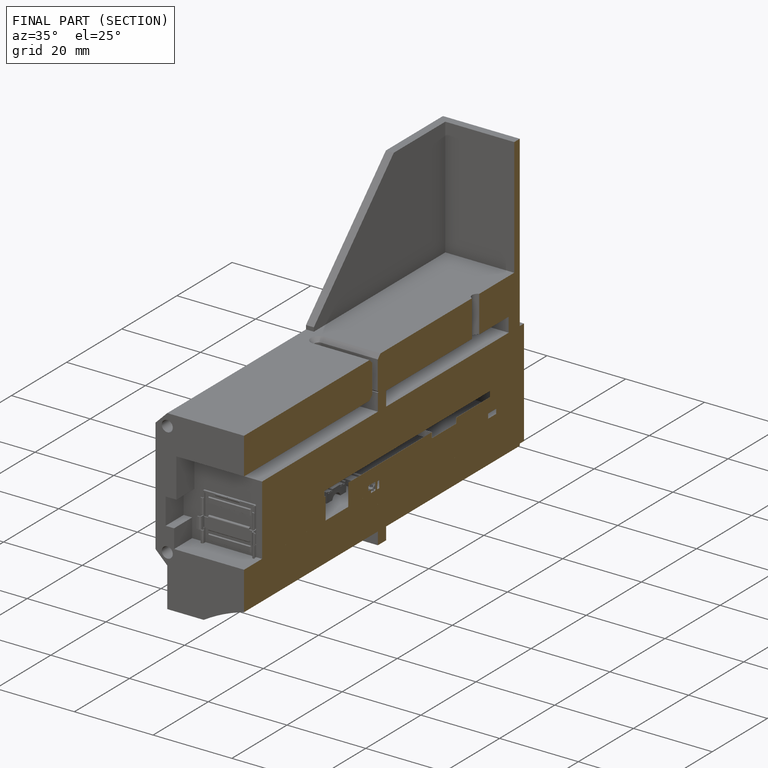
[diagram: finished part — half-section view (interior)]
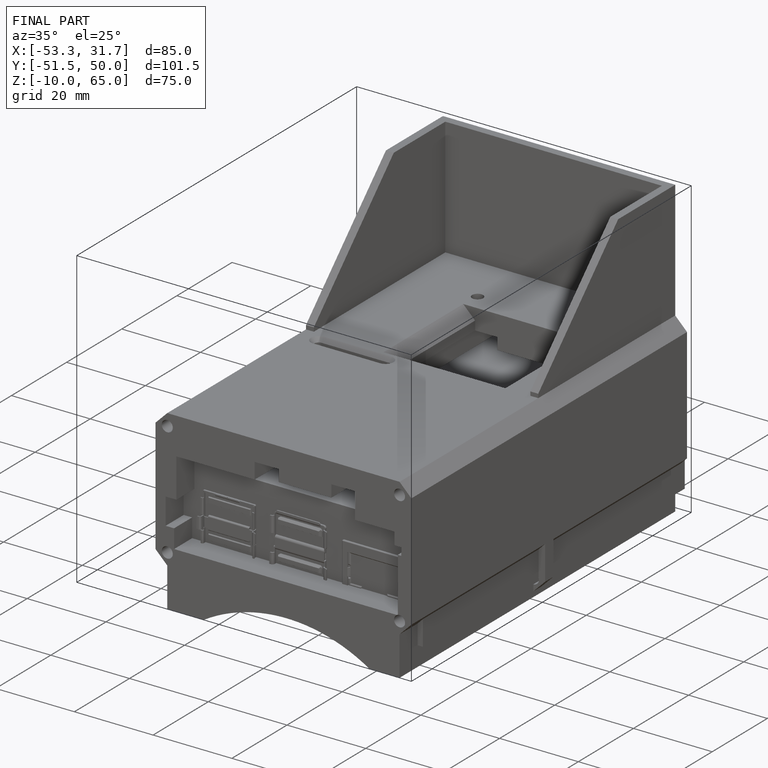
[diagram: finished part — iso view with bounding-box wireframe]
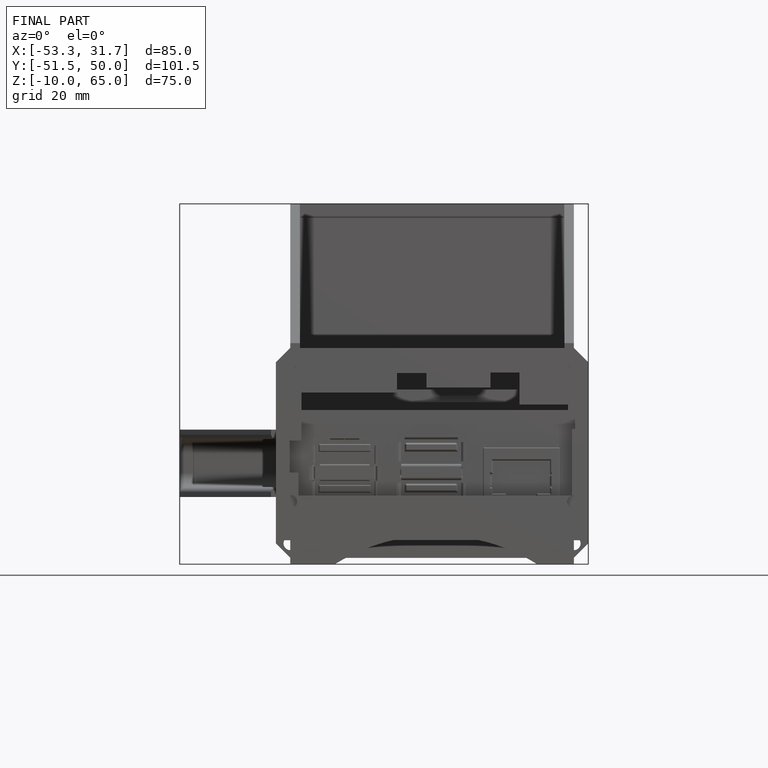
[diagram: finished part — front view with bounding-box wireframe]
